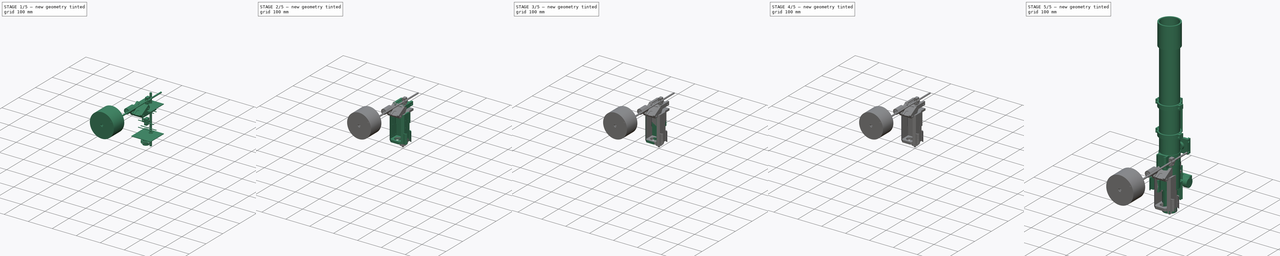
[diagram: build sequence overview — one tinted view per stage of 5, left to right]
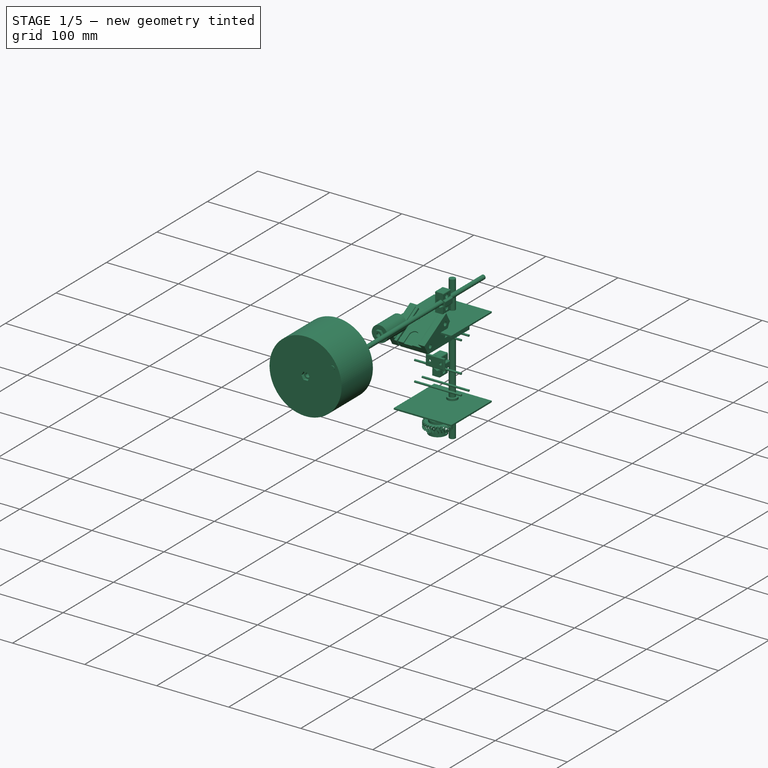
[diagram: stage 1 of 5 — iso view after this stage's code; geometry added in this stage tinted green]
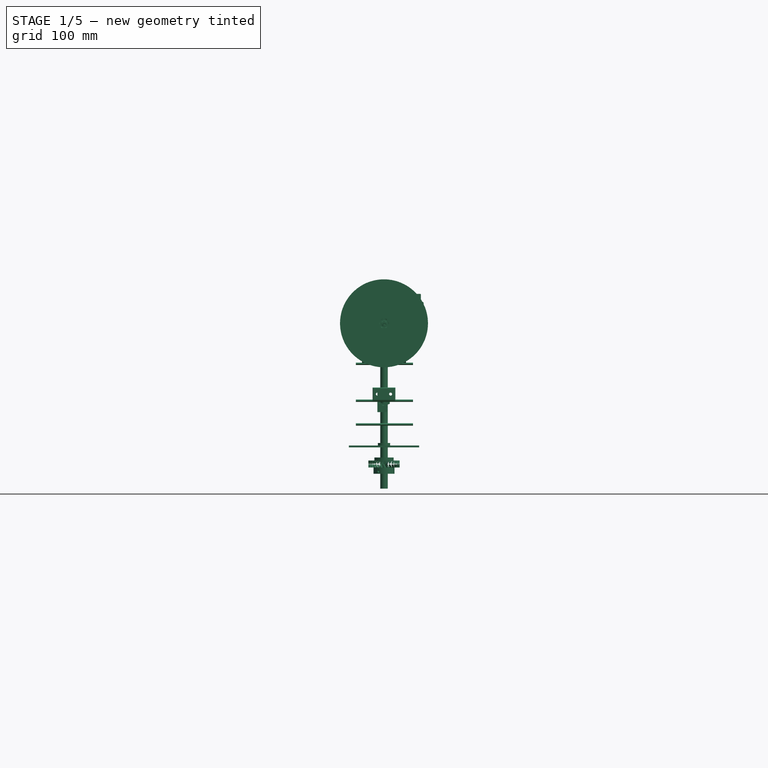
[diagram: stage 1 of 5 — front view after this stage's code; geometry added in this stage tinted green]
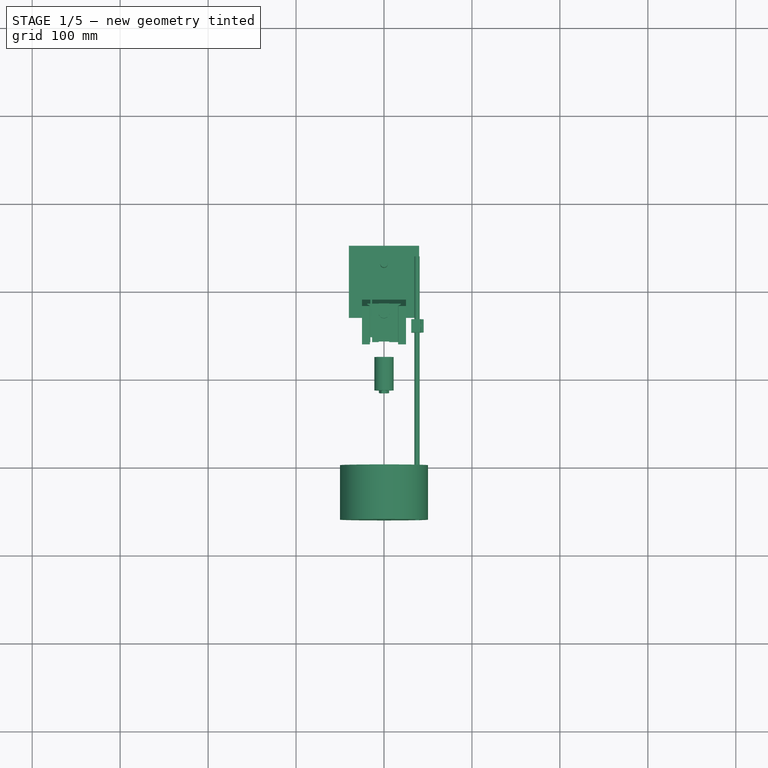
[diagram: stage 1 of 5 — top view after this stage's code; geometry added in this stage tinted green]
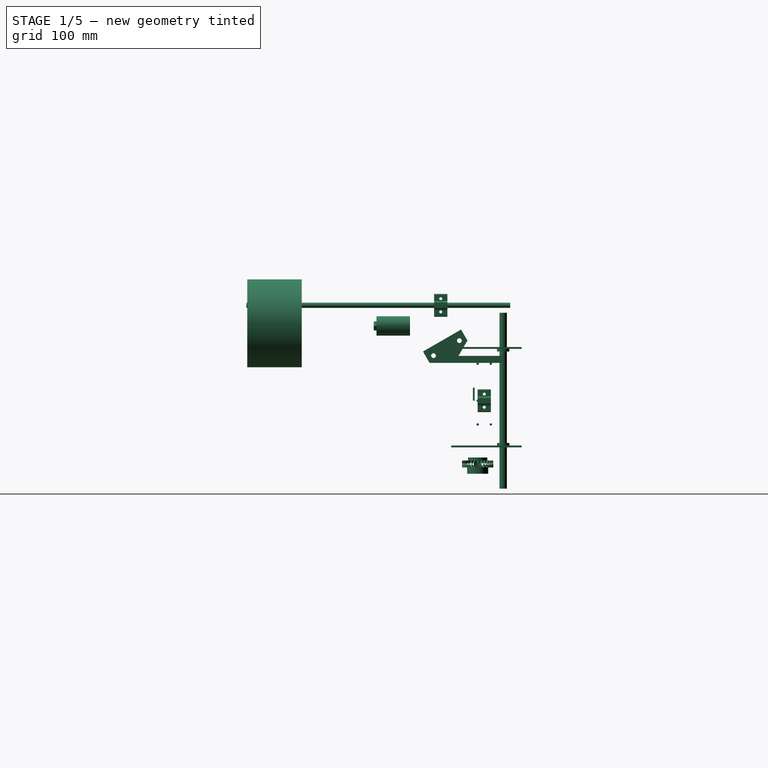
[diagram: stage 1 of 5 — right view after this stage's code; geometry added in this stage tinted green]
FCSTD DOCUMENT  (FreeCAD 0.17R12284 (Git))
Label: eq-mount
License: All rights reserved
LicenseURL: http://en.wikipedia.org/wiki/All_rights_reserved
objects: Part::Cylinder×345, Part::MultiFuse×270, Part::Feature×259, Part::Cut×203, Part::Box×94, Part::FeaturePython×51, Part::Extrusion×51, App::Part×41, Sketcher::SketchObject×33, Part::Chamfer×9, Part::RegularPolygon×8, Part::Fillet×7
note: 1330 computed .brp shape members not serialized (recipe doc carries the construction recipe); baked Part::Feature solids carry a one-line shape summary decoded from their .brp

FEATURE [Part::Cylinder] Cylinder014005345  label="tyč závaží"
  Angle = 360
  AttacherType = Attacher::AttachEngine3D
  Height = 300
  Placement = pos=(37.5,37,108.5) rot=(1,0,0;1.5708rad)
  Radius = 3
FEATURE [Part::Cylinder] Cylinder014005346  label="Válec317"
  Angle = 360
  AttacherType = Attacher::AttachEngine3D
  Height = 60
  Placement = pos=(0,-200,88) rot=(1,0,0;1.5708rad)
  Radius = 50
FEATURE [Part::Cylinder] Cylinder014005347  label="Válec318"
  Angle = 360
  AttacherType = Attacher::AttachEngine3D
  Height = 58
  Placement = pos=(0,-200,88) rot=(1,0,0;1.5708rad)
  Radius = 44
FEATURE [Part::Cut] Cut061093
  Base = -> Cylinder014005346
  Tool = -> Cylinder014005347
FEATURE [Part::Cylinder] Cylinder014005348  label="Válec319"
  Angle = 360
  AttacherType = Attacher::AttachEngine3D
  Height = 56
  Placement = pos=(0,-203.5,88) rot=(1,0,0;1.5708rad)
  Radius = 10
FEATURE [Part::MultiFuse] Fusion217  label="Zavazí dno"
  Placement = pos=(0,-2,0) rot=(0,0,1;0rad)
  Shapes = -> [Cut061093,Cylinder014005348]
FEATURE [Part::Cylinder] Cylinder014005349  label="Válec320"
  Angle = 360
  AttacherType = Attacher::AttachEngine3D
  Height = 2
  Placement = pos=(0,-200,88) rot=(1,0,0;1.5708rad)
  Radius = 50
FEATURE [Part::Cylinder] Cylinder014005350  label="Válec321"
  Angle = 360
  AttacherType = Attacher::AttachEngine3D
  Height = 3.5
  Placement = pos=(0,-200,88) rot=(1,0,0;1.5708rad)
  Radius = 44
FEATURE [Part::MultiFuse] Fusion218  label="zaazi vyko"
  Shapes = -> [Cylinder014005350,Cylinder014005349]
FEATURE [Part::Cylinder] Cylinder014005351  label="tyč závaží001"
  Angle = 360
  AttacherType = Attacher::AttachEngine3D
  Height = 350
  Placement = pos=(0,85,88) rot=(1,0,0;1.5708rad)
  Radius = 3
FEATURE [Part::FeaturePython] Nut013  label="M6-Nut006"  # Fasteners workbench fastener (typed FeaturePython)
  Placement = pos=(0,-258,88) rot=(1,0,0;1.5708rad)
  diameter = 8
  invert = false
  matchOuter = false
  offset = 0
  thread = false
  type = 1
FEATURE [Part::Feature] Screw006_solid  label="vyko M2.5x8"
  Placement = pos=(0,0,10) rot=(0,0,1;0rad)
  shape: bbox 4.5 x 8.524 x 4.5 mm, 11 faces (baked)
FEATURE [Part::Feature] Screw006_solid001  label="vyko M2.5x009"
  Placement = pos=(0,0,104) rot=(0,0,1;0rad)
  shape: bbox 4.5 x 8.524 x 4.5 mm, 11 faces (baked)
FEATURE [Part::Feature] Screw006_solid002  label="vyko M2.5x010"
  Placement = pos=(47,0,57) rot=(0,0,1;0rad)
  shape: bbox 4.5 x 8.524 x 4.5 mm, 11 faces (baked)
FEATURE [Part::Feature] Screw006_solid003  label="vyko M2.5x011"
  Placement = pos=(-47,0,57) rot=(0,0,1;0rad)
  shape: bbox 4.5 x 8.524 x 4.5 mm, 11 faces (baked)
FEATURE [Part::MultiFuse] Fusion219  label="srouby diry zavazi"
  Shapes = -> [Cylinder014005351,Screw006_solid,Screw006_solid001,Screw006_solid002,Screw006_solid003,Nut013]
FEATURE [Part::Cut] Cut061094  label="Weight  bottom"
  Base = -> Fusion217
  Tool = -> Fusion219
FEATURE [Part::FeaturePython] Nut014  label="M6-Nut005"  # Fasteners workbench fastener (typed FeaturePython)
  Placement = pos=(0,-238,88) rot=(1,0,0;1.5708rad)
  diameter = 8
  invert = false
  matchOuter = false
  offset = 0
  thread = false
  type = 1
FEATURE [Part::Cylinder] Cylinder014005352  label="tyč závaží002"
  Angle = 360
  AttacherType = Attacher::AttachEngine3D
  Height = 300
  Placement = pos=(0,55,88) rot=(1,0,0;1.5708rad)
  Radius = 3
FEATURE [Part::Feature] Screw006_solid004  label="vyko M2.5x012"
  Placement = pos=(0,0,104) rot=(0,0,1;0rad)
  shape: bbox 4.5 x 8.524 x 4.5 mm, 11 faces (baked)
FEATURE [Part::Feature] Screw006_solid005  label="vyko M2.5x013"
  Placement = pos=(47,0,57) rot=(0,0,1;0rad)
  shape: bbox 4.5 x 8.524 x 4.5 mm, 11 faces (baked)
FEATURE [Part::Feature] Screw006_solid006  label="vyko M2.5x014"
  Placement = pos=(-47,0,57) rot=(0,0,1;0rad)
  shape: bbox 4.5 x 8.524 x 4.5 mm, 11 faces (baked)
FEATURE [Part::Feature] Screw006_solid007  label="vyko M2.5x015"
  Placement = pos=(0,0,10) rot=(0,0,1;0rad)
  shape: bbox 4.5 x 8.524 x 4.5 mm, 11 faces (baked)
FEATURE [Part::MultiFuse] Fusion220  label="srouby diry zavazi001"
  Shapes = -> [Cylinder014005352,Screw006_solid007,Screw006_solid004,Screw006_solid005,Screw006_solid006,Nut014]
FEATURE [Part::Cut] Cut061095  label="Weight top"
  Base = -> Fusion218
  Tool = -> Fusion220
FEATURE [Part::FeaturePython] Nut015  label="M8-Nut007"  # Fasteners workbench fastener (typed FeaturePython)
  Placement = pos=(0,-88,85) rot=(1,0,0;1.5708rad)
  diameter = 9
  invert = false
  matchOuter = false
  offset = 0
  thread = false
  type = 3
FEATURE [Part::Cylinder] Cylinder014005385  label="DIRA8,003"
  Angle = 360
  AttacherType = Attacher::AttachEngine3D
  Height = 200
  Placement = pos=(0,29,-100) rot=(0,0,1;0rad)
  Radius = 4.2
FEATURE [Part::Cylinder] Cylinder014005387  label="Válec344"
  Angle = 360
  AttacherType = Attacher::AttachEngine3D
  Height = 65
  Placement = pos=(-32,0,0) rot=(0,1,0;1.5708rad)
  Radius = 1.35
FEATURE [Part::Cylinder] Cylinder014005388  label="Válec345"
  Angle = 360
  AttacherType = Attacher::AttachEngine3D
  Height = 65
  Placement = pos=(-32,0,42) rot=(0,1,0;1.5708rad)
  Radius = 1.35
FEATURE [Part::Cylinder] Cylinder014005389  label="Válec346"
  Angle = 360
  AttacherType = Attacher::AttachEngine3D
  Height = 65
  Placement = pos=(-32,0,-27) rot=(0,1,0;1.5708rad)
  Radius = 1.35
FEATURE [Part::Box] Box058  label="Krychle046"
  AttacherType = Attacher::AttachEngine3D
  Height = 2
  Length = 80
  Placement = pos=(-40,-30,-53) rot=(0,0,1;0rad)
  Width = 80
FEATURE [Part::Box] Box059  label="Krychle047"
  AttacherType = Attacher::AttachEngine3D
  Height = 2
  Length = 80
  Placement = pos=(-40,-30,59) rot=(0,0,1;0rad)
  Width = 80
FEATURE [Part::MultiFuse] Fusion238  label="Orez001"
  Shapes = -> [Box059,Box058]
FEATURE [Part::Cylinder] Cylinder014005390  label="Lozisko005"
  Angle = 360
  AttacherType = Attacher::AttachEngine3D
  Height = 4
  Placement = pos=(0,29,-52.1) rot=(0,0,1;0rad)
  Radius = 7
FEATURE [Part::Cylinder] Cylinder014005391  label="Válec347"
  Angle = 360
  AttacherType = Attacher::AttachEngine3D
  Height = 65
  Placement = pos=(-32,15,42) rot=(0,1,0;1.5708rad)
  Radius = 1.35
FEATURE [Part::Cylinder] Cylinder014005392  label="Lozisko006"
  Angle = 360
  AttacherType = Attacher::AttachEngine3D
  Height = 4
  Placement = pos=(0,29,56) rot=(0,0,1;0rad)
  Radius = 7
FEATURE [Part::Cylinder] Cylinder014005393  label="Válec348"
  Angle = 360
  AttacherType = Attacher::AttachEngine3D
  Height = 65
  Placement = pos=(-32,15,-27) rot=(0,1,0;1.5708rad)
  Radius = 1.35
FEATURE [Part::MultiFuse] Fusion243  label="diry 2,007"
  Shapes = -> [Cylinder014005391,Cylinder014005387,Cylinder014005388,Cylinder014005389,Cylinder014005393]
FEATURE [Part::MultiFuse] Fusion244  label="DIRA OSA001"
  Shapes = -> [Cylinder014005385,Cylinder014005390,Cylinder014005392]
FEATURE [Part::MultiFuse] Fusion245  label="Diry orez001"
  Shapes = -> [Fusion243,Fusion244,Fusion238]
FEATURE [App::Part] Part040  label="DIY telescope"
  Group = -> [Cut061176,Cylinder014005551,Cylinder014005552,Box076,Box075,Fusion121,Cut061173,Cylinder014005556,Cylinder014005561,Cylinder014005564,Cylinder014005563,Cylinder014005559,Cylinder014005555,Cylinder014005560,Box079,Cut061023,Cut061177,Box078,Fusion122,Fusion123,Cylinder014005558,Cylinder014005562,Cylinder014005565,Cylinder014005557,Cut061024,Cut061025,Cylinder014005566,Fusion124,Fusion097,Fusion099,+48 more]
  License = CC BY 3.0
  LicenseURL = http://creativecommons.org/licenses/by/3.0/
  Origin = -> Origin040
  Placement = pos=(0,115,-142) rot=(0,0,1;3.14159rad)
FEATURE [Part::FeaturePython] Nut024  label="M6-Nut"  # Fasteners workbench fastener (typed FeaturePython)
  Placement = pos=(0,-97,85) rot=(1,0,0;1.5708rad)
  diameter = 8
  invert = false
  matchOuter = false
  offset = 0
  thread = false
  type = 3
FEATURE [Part::FeaturePython] Nut025  label="M6-Nut007"  # Fasteners workbench fastener (typed FeaturePython)
  Placement = pos=(0,-115,85) rot=(1,0,0;1.5708rad)
  diameter = 8
  invert = false
  matchOuter = false
  offset = 0
  thread = false
  type = 3
FEATURE [Part::Cylinder] Cylinder014005567  label="Válec491"
  Angle = 360
  AttacherType = Attacher::AttachEngine3D
  Height = 38
  Placement = pos=(0,-77,85) rot=(1,0,0;1.5708rad)
  Radius = 11
FEATURE [Sketcher::SketchObject] Sketch023
  MapMode = 5
  Placement = pos=(0,-92,85) rot=(1,0,0;1.5708rad)
  Support = -> [Nut015]
  sketch-geometry (7):
    g0: LineSegment StartX=-4 StartY=6.58103 StartZ=0 EndX=-7.69934 EndY=-0.173586 EndZ=0
    g1: LineSegment StartX=-7.69934 StartY=-0.173586 StartZ=0 EndX=-3.69934 EndY=-6.75462 EndZ=0
    g2: LineSegment StartX=-3.69934 StartY=-6.75462 StartZ=0 EndX=4 EndY=-6.58103 EndZ=0
    g3: LineSegment StartX=4 StartY=-6.58103 StartZ=0 EndX=7.69934 EndY=0.173586 EndZ=0
    g4: LineSegment StartX=7.69934 StartY=0.173586 StartZ=0 EndX=3.69934 EndY=6.75462 EndZ=0
    g5: LineSegment StartX=3.69934 StartY=6.75462 StartZ=0 EndX=-4 EndY=6.58103 EndZ=0
    g6: Circle [constr] CenterX=0 CenterY=0 CenterZ=0 NormalX=0 NormalY=0 NormalZ=1 AngleXU=0 Radius=7.7013
  constraints (14):
    c: Coincident(g0,g1)
    c: Coincident(g1,g2)
    c: Coincident(g2,g3)
    c: Coincident(g3,g4)
    c: Coincident(g4,g5)
    c: Coincident(g5,g0)
    c: Equal(g0, g1-g5) x5
    c: PointOnObject(g0,g6)
    c: PointOnObject(g1,g6)
    c: PointOnObject(g2,g6)
    c: PointOnObject(g3,g6)
    c: PointOnObject(g4,g6)
    c: PointOnObject(g5,g6)
    c: Coincident(g6,g-1)
FEATURE [Part::Extrusion] Extrude048
  Base = -> Sketch023
  Dir = (0,-1,0)
  DirMode = 2
  FaceMakerClass = Part::FaceMakerBullseye
  LengthFwd = 18
  LengthRev = 0
  Placement = pos=(0,15,0) rot=(0,0,1;0rad)
  Solid = true
  Symmetric = false
FEATURE [Sketcher::SketchObject] Sketch024
  MapMode = 2
  Placement = pos=(0,-76,85) rot=(1,0,0;1.5708rad)
  sketch-geometry (7):
    g0: LineSegment StartX=-3.75 StartY=6.42629 StartZ=0 EndX=-7.50855 EndY=-0.0738358 EndZ=0
    g1: LineSegment StartX=-7.50855 StartY=-0.0738358 StartZ=0 EndX=-3.75855 EndY=-6.5789 EndZ=0
    g2: LineSegment StartX=-3.75855 StartY=-6.5789 StartZ=0 EndX=3.75 EndY=-6.58384 EndZ=0
    g3: LineSegment StartX=3.75 StartY=-6.58384 StartZ=0 EndX=7.50855 EndY=-0.0837102 EndZ=0
    g4: LineSegment StartX=7.50855 StartY=-0.0837102 StartZ=0 EndX=3.75855 EndY=6.42135 EndZ=0
    g5: LineSegment StartX=3.75855 StartY=6.42135 StartZ=0 EndX=-3.75 EndY=6.42629 EndZ=0
    g6: Circle [constr] CenterX=0 CenterY=-0.078773 CenterZ=0 NormalX=0 NormalY=0 NormalZ=1 AngleXU=0 Radius=7.50855
  constraints (13):
    c: Coincident(g0,g1)
    c: Coincident(g1,g2)
    c: Coincident(g2,g3)
    c: Coincident(g3,g4)
    c: Coincident(g4,g5)
    c: Coincident(g5,g0)
    c: Equal(g0, g1-g5) x5
    c: PointOnObject(g0,g6)
    c: PointOnObject(g1,g6)
    c: PointOnObject(g2,g6)
    c: PointOnObject(g3,g6)
    c: PointOnObject(g4,g6)
    c: PointOnObject(g5,g6)
FEATURE [Part::Extrusion] Extrude049  label="vnitrek"
  Base = -> Sketch024
  Dir = (0,-1,0)
  DirMode = 2
  FaceMakerClass = Part::FaceMakerBullseye
  LengthFwd = 8
  LengthRev = 0
  Placement = pos=(0,-4,0) rot=(0,0,1;0rad)
  Solid = true
  Symmetric = false
FEATURE [Part::Cylinder] Cylinder014005568  label="Válec492"
  Angle = 360
  AttacherType = Attacher::AttachEngine3D
  Height = 35
  Placement = pos=(0,-77,85) rot=(1,0,0;1.5708rad)
  Radius = 4.2
FEATURE [Part::Cut] Cut061180  label="Nut M8-Fix"
  Base = -> Extrude049
  Tool = -> Cylinder014005568
FEATURE [Sketcher::SketchObject] Sketch025
  MapMode = 5
  Placement = pos=(0,-97,85) rot=(-1,0,0;1.5708rad)
  Support = -> [Nut024]
  sketch-geometry (7):
    g0: LineSegment StartX=-2.87741 StartY=5.0504 StartZ=0 EndX=-5.81248 EndY=0.0332934 EndZ=0
    g1: LineSegment StartX=-5.81248 StartY=0.0332934 StartZ=0 EndX=-2.93507 EndY=-5.01711 EndZ=0
    g2: LineSegment StartX=-2.93507 StartY=-5.01711 StartZ=0 EndX=2.87741 EndY=-5.0504 EndZ=0
    g3: LineSegment StartX=2.87741 StartY=-5.0504 StartZ=0 EndX=5.81248 EndY=-0.0332934 EndZ=0
    g4: LineSegment StartX=5.81248 StartY=-0.0332934 StartZ=0 EndX=2.93507 EndY=5.01711 EndZ=0
    g5: LineSegment StartX=2.93507 StartY=5.01711 StartZ=0 EndX=-2.87741 EndY=5.0504 EndZ=0
    g6: Circle [constr] CenterX=0 CenterY=0 CenterZ=0 NormalX=0 NormalY=0 NormalZ=1 AngleXU=0 Radius=5.81257
  constraints (14):
    c: Coincident(g0,g1)
    c: Coincident(g1,g2)
    c: Coincident(g2,g3)
    c: Coincident(g3,g4)
    c: Coincident(g4,g5)
    c: Coincident(g5,g0)
    c: Equal(g0, g1-g5) x5
    c: PointOnObject(g0,g6)
    c: PointOnObject(g1,g6)
    c: PointOnObject(g2,g6)
    c: PointOnObject(g3,g6)
    c: PointOnObject(g4,g6)
    c: PointOnObject(g5,g6)
    c: Coincident(g6,g-1)
FEATURE [Part::Extrusion] Extrude050
  Base = -> Sketch025
  Dir = (0,1,0)
  DirMode = 2
  FaceMakerClass = Part::FaceMakerBullseye
  LengthFwd = 10
  LengthRev = 0
  Placement = pos=(0,-4,0) rot=(0,0,1;0rad)
  Solid = true
  Symmetric = false
FEATURE [Part::Cylinder] Cylinder014005569  label="tyč závaží003"
  Angle = 360
  AttacherType = Attacher::AttachEngine3D
  Height = 200
  Placement = pos=(0,-91,85) rot=(1,0,0;1.5708rad)
  Radius = 3
FEATURE [Part::MultiFuse] Fusion338
  Shapes = -> [Cylinder014005569,Extrude050,Extrude048]
FEATURE [Part::Cut] Cut061181  label="Clutch"
  Base = -> Cylinder014005567
  Tool = -> Fusion338
FEATURE [App::Part] Part043  label="for wood tripod"
  Group = -> [Box080,Cylinder014005343,Box081,Cylinder014005570,Box082,Cylinder014005571,Cylinder014005572,Box083,Cylinder014005573,Box084,Cylinder014005574,Cylinder014005341,Cylinder014005575,Cylinder014005342,Sketch026,Screw_solid132,Cylinder014005576,Screw_solid133,Cylinder014005577,Cylinder014005578,Screw_solid134,Box085,Cylinder014005579,Cylinder014005580,Box086,Cylinder014005581,Cylinder014005582,Box087,+39 more]
  License = CC BY 3.0
  LicenseURL = http://creativecommons.org/licenses/by/3.0/
  Origin = -> Origin043
  Placement = pos=(0,0,0) rot=(0,0,1;3.14159rad)
FEATURE [App::Part] Part010  label="Distance001"
  Group = -> [Chamfer002,Fusion093,Box011,Cylinder014005161,Cylinder014005163,Cylinder014005162,Cylinder014005160,Cylinder014005159,Cut061008,Part043]
  License = CC BY 3.0
  LicenseURL = http://creativecommons.org/licenses/by/3.0/
  Origin = -> Origin010
  Placement = pos=(0,0,49.5) rot=(0,0,1;0rad)
FEATURE [Part::FeaturePython] Nut028  label="M6-Nut010"  # Fasteners workbench fastener (typed FeaturePython)
  Placement = pos=(0,-1,-0.5) rot=(0,0,1;0rad)
  diameter = 2
  invert = false
  matchOuter = false
  offset = 0
  thread = false
  type = 2
FEATURE [Part::Cylinder] Cylinder014005586  label="Válec510"
  Angle = 360
  AttacherType = Attacher::AttachEngine3D
  Height = 20
  Placement = pos=(0,-1,0) rot=(0,0,1;0rad)
  Radius = 3.2
FEATURE [Part::Cylinder] Cylinder014005587  label="Válec511"
  Angle = 360
  AttacherType = Attacher::AttachEngine3D
  Height = 7
  Placement = pos=(7.5,7.5,7.5) rot=(1,0,0;1.5708rad)
  Radius = 2.9
FEATURE [Part::Box] Box043  label="Krychle075"
  AttacherType = Attacher::AttachEngine3D
  Height = 15
  Length = 26
  Placement = pos=(-13,-7.5,0) rot=(0,0,1;0rad)
  Width = 14
FEATURE [Part::Cylinder] Cylinder014005588  label="Válec512"
  Angle = 360
  AttacherType = Attacher::AttachEngine3D
  Height = 15
  Placement = pos=(7.5,7.5,7.5) rot=(1,0,0;1.5708rad)
  Radius = 1.7
FEATURE [Part::Cylinder] Cylinder014005589  label="Válec513"
  Angle = 360
  AttacherType = Attacher::AttachEngine3D
  Height = 6
  Placement = pos=(-7.5,7.5,7.5) rot=(1,0,0;1.5708rad)
  Radius = 2.9
FEATURE [Part::Cylinder] Cylinder014005590  label="Válec514"
  Angle = 360
  AttacherType = Attacher::AttachEngine3D
  Height = 15
  Placement = pos=(-7.5,7.5,7.5) rot=(1,0,0;1.5708rad)
  Radius = 1.7
FEATURE [Part::Box] Box088  label="Krychle076"
  AttacherType = Attacher::AttachEngine3D
  Height = 15
  Length = 9
  Placement = pos=(4,3.5,0) rot=(0,0,1;0rad)
  Width = 4
FEATURE [Part::Fillet] Fillet
  Base = -> Box088
  Edges = 1 edges r=1.5: [Edge1]
FEATURE [Part::Box] Box044  label="Krychle077"
  AttacherType = Attacher::AttachEngine3D
  Height = 15
  Length = 9
  Placement = pos=(4,3.5,0) rot=(0,0,1;0rad)
  Width = 4
FEATURE [Part::Fillet] Fillet001
  Base = -> Box044
  Edges = 1 edges r=1.5: [Edge1]
  Placement = pos=(0,0,15) rot=(0,1,0;3.14159rad)
FEATURE [Part::MultiFuse] Fusion353
  Shapes = -> [Fillet,Fillet001,Cylinder014005590,Cylinder014005588,Cylinder014005587,Cylinder014005589,Nut028,Cylinder014005586]
FEATURE [Part::Cut] Cut061192
  Base = -> Box043
  Tool = -> Fusion353
FEATURE [Part::Fillet] Fillet002  label="wieghts holder"
  Base = -> Cut061192
  Edges = 4 edges r=1.25: [Edge2,Edge39,Edge40,Edge45]
  Placement = pos=(0,0,0) rot=(-0.579113,-0.576467,-0.576467;2.0944rad)
FEATURE [Part::Cylinder] Cylinder014005602  label="Válec522"
  Angle = 360
  AttacherType = Attacher::AttachEngine3D
  Height = 15
  Placement = pos=(-7.5,7.5,7.5) rot=(1,0,0;1.5708rad)
  Radius = 1.7
FEATURE [Part::Cylinder] Cylinder014005603  label="Válec523"
  Angle = 360
  AttacherType = Attacher::AttachEngine3D
  Height = 20
  Placement = pos=(0,-1,0) rot=(0,0,1;0rad)
  Radius = 3.2
FEATURE [Part::Cylinder] Cylinder014005604  label="Válec524"
  Angle = 360
  AttacherType = Attacher::AttachEngine3D
  Height = 15
  Placement = pos=(7.5,7.5,7.5) rot=(1,0,0;1.5708rad)
  Radius = 1.7
FEATURE [Part::Cylinder] Cylinder014005605  label="Válec525"
  Angle = 360
  AttacherType = Attacher::AttachEngine3D
  Height = 7
  Placement = pos=(7.5,7.5,7.5) rot=(1,0,0;1.5708rad)
  Radius = 2.9
FEATURE [Part::Box] Box089  label="Krychle078"
  AttacherType = Attacher::AttachEngine3D
  Height = 15
  Length = 26
  Placement = pos=(-13,-7.5,0) rot=(0,0,1;0rad)
  Width = 14
FEATURE [Part::Cylinder] Cylinder014005606  label="Válec526"
  Angle = 360
  AttacherType = Attacher::AttachEngine3D
  Height = 6
  Placement = pos=(-7.5,7.5,7.5) rot=(1,0,0;1.5708rad)
  Radius = 2.9
FEATURE [Part::Box] Box090  label="Krychle079"
  AttacherType = Attacher::AttachEngine3D
  Height = 15
  Length = 9
  Placement = pos=(4,3.5,0) rot=(0,0,1;0rad)
  Width = 4
FEATURE [Part::Fillet] Fillet004
  Base = -> Box090
  Edges = 1 edges r=1.5: [Edge1]
FEATURE [Part::Box] Box091  label="Krychle080"
  AttacherType = Attacher::AttachEngine3D
  Height = 15
  Length = 9
  Placement = pos=(4,3.5,0) rot=(0,0,1;0rad)
  Width = 4
FEATURE [Part::Fillet] Fillet003
  Base = -> Box091
  Edges = 1 edges r=1.5: [Edge1]
  Placement = pos=(0,0,15) rot=(0,1,0;3.14159rad)
FEATURE [Part::FeaturePython] Nut034  label="M6-Nut009"  # Fasteners workbench fastener (typed FeaturePython)
  Placement = pos=(0,-1,-0.5) rot=(0,0,1;0rad)
  diameter = 2
  invert = false
  matchOuter = false
  offset = 0
  thread = false
  type = 2
FEATURE [Part::MultiFuse] Fusion359
  Shapes = -> [Fillet004,Fillet003,Cylinder014005602,Cylinder014005604,Cylinder014005605,Cylinder014005606,Nut034,Cylinder014005603]
FEATURE [Part::Cut] Cut061198
  Base = -> Box089
  Tool = -> Fusion359
FEATURE [Part::Fillet] Fillet005  label="wieghts holder001"
  Base = -> Cut061198
  Edges = 4 edges r=1.25: [Edge2,Edge39,Edge40,Edge45]
  Placement = pos=(38.5,-49.5,108.5) rot=(0.57735,0.57735,0.57735;4.18879rad)
FEATURE [App::Part] Part045  label="Part059"
  Group = -> [Fillet001,Fillet,Fusion353,Cylinder014005590,Cylinder014005586,Cylinder014005588,Cylinder014005587,Box043,Cylinder014005589,Box088,Box044,Cut061192,Nut028,Fillet002]
  License = CC BY 3.0
  LicenseURL = http://creativecommons.org/licenses/by/3.0/
  Origin = -> Origin045
  Placement = pos=(38.5,35,108.2) rot=(1,0,0;3.14159rad)
FEATURE [App::Part] Part046  label="Part060"
  Group = -> [Fusion359,Fillet003,Fillet004,Cylinder014005603,Cylinder014005605,Box089,Cylinder014005606,Box090,Cylinder014005602,Cylinder014005604,Box091,Cut061198,Nut034,Fillet005]
  License = CC BY 3.0
  LicenseURL = http://creativecommons.org/licenses/by/3.0/
  Origin = -> Origin046
FEATURE [App::Part] Part047  label="Holder"
  Group = -> [Part045,Part046]
  License = CC BY 3.0
  LicenseURL = http://creativecommons.org/licenses/by/3.0/
  Origin = -> Origin047
FEATURE [App::Part] Part041  label="Weights complet"
  Group = -> [Nut025,Cylinder014005568,Extrude049,Sketch024,Cut061180,Nut015,Nut024,Cylinder014005567,Cylinder014005569,Extrude048,Extrude050,Sketch023,Sketch025,Fusion338,Cut061181,Cylinder014005345,Part021,Part047]
  License = CC BY 3.0
  LicenseURL = http://creativecommons.org/licenses/by/3.0/
  Origin = -> Origin041
FEATURE [Part::FeaturePython] InvoluteGear029  # WARN: FeaturePython — macro-defined, semantics opaque (R4)
  Placement = pos=(0,0,-72) rot=(0,0,1;0rad)
  backlash = 0
  beta = 20
  clearance = 0.25
  double_helix = true
  head = 0
  height = 8
  module = 1.16
  numpoints = 6
  pressure_angle = 20
  reversed_backlash = false
  shift = 0
  simple = false
  teeth = 27
  undercut = false
FEATURE [Part::Cylinder] Cylinder014005626  label="Válec545"
  Angle = 360
  AttacherType = Attacher::AttachEngine3D
  Height = 25
  Placement = pos=(0,0,-85) rot=(0,0,1;0rad)
  Radius = 4.2
FEATURE [Part::Cylinder] Cylinder014005627  label="Válec546"
  Angle = 360
  AttacherType = Attacher::AttachEngine3D
  Height = 200
  Placement = pos=(0,0,-100) rot=(0,0,1;0rad)
  Radius = 3.9
FEATURE [Part::Cylinder] Cylinder014005628  label="Válec547"
  Angle = 360
  AttacherType = Attacher::AttachEngine3D
  Height = 11.5
  Placement = pos=(0,0,-76.1) rot=(0,0,1;0rad)
  Radius = 11
FEATURE [Part::MultiFuse] Fusion376
  Shapes = -> [Cylinder014005628,InvoluteGear029]
FEATURE [Sketcher::SketchObject] Sketch034
  MapMode = 5
  Placement = pos=(0,0,-64.6) rot=(0,0,1;0rad)
  Support = -> [Fusion376]
  sketch-geometry (7):
    g0: LineSegment StartX=-3.8831 StartY=6.55674 StartZ=0 EndX=-7.61986 EndY=-0.0844932 EndZ=0
    g1: LineSegment StartX=-7.61986 StartY=-0.0844932 StartZ=0 EndX=-3.73676 EndY=-6.64124 EndZ=0
    g2: LineSegment StartX=-3.73676 StartY=-6.64124 StartZ=0 EndX=3.8831 EndY=-6.55674 EndZ=0
    g3: LineSegment StartX=3.8831 StartY=-6.55674 StartZ=0 EndX=7.61986 EndY=0.0844932 EndZ=0
    g4: LineSegment StartX=7.61986 StartY=0.0844932 StartZ=0 EndX=3.73676 EndY=6.64124 EndZ=0
    g5: LineSegment StartX=3.73676 StartY=6.64124 StartZ=0 EndX=-3.8831 EndY=6.55674 EndZ=0
    g6: Circle [constr] CenterX=0 CenterY=0 CenterZ=0 NormalX=0 NormalY=0 NormalZ=1 AngleXU=0 Radius=7.62033
  constraints (14):
    c: Coincident(g0,g1)
    c: Coincident(g1,g2)
    c: Coincident(g2,g3)
    c: Coincident(g3,g4)
    c: Coincident(g4,g5)
    c: Coincident(g5,g0)
    c: Equal(g0, g1-g5) x5
    c: PointOnObject(g0,g6)
    c: PointOnObject(g1,g6)
    c: PointOnObject(g2,g6)
    c: PointOnObject(g3,g6)
    c: PointOnObject(g4,g6)
    c: PointOnObject(g5,g6)
    c: Coincident(g6,g-1)
FEATURE [Part::Extrusion] Extrude061
  Base = -> Sketch034
  Dir = (0,0,1)
  DirMode = 2
  FaceMakerClass = Part::FaceMakerBullseye
  LengthFwd = 5
  LengthRev = 0
  Placement = pos=(0,0,-5) rot=(0,0,1;0rad)
  Solid = true
  Symmetric = false
FEATURE [Part::MultiFuse] Fusion375
  Shapes = -> [Extrude061,Cylinder014005627]
FEATURE [Part::Cut] Cut061209  label="Gear A002"
  Base = -> Fusion376
  Tool = -> Fusion375
FEATURE [Part::Feature] Cut007_solid019  label="Sun020"
  shape: bbox 12.9 x 13.1 x 5 mm, 57 faces (baked)
FEATURE [Part::Feature] Cut061210  label="SUN I Final003"
  shape: bbox 24 x 24 x 12.25 mm, 99 faces (baked)
FEATURE [Part::Cut] Cut061211
  Base = -> Cut061210
  Placement = pos=(0,0,-76) rot=(0,0,1;0rad)
  Tool = -> Cut007_solid019
FEATURE [Part::MultiFuse] Fusion377
  Shapes = -> [Cut061209,Cut061211]
FEATURE [Part::Cut] Cut061212  label="Gear27b"
  Base = -> Fusion377
  Tool = -> Cylinder014005626
FEATURE [App::Part] Part049  label="Gear27 A002"
  Group = -> [InvoluteGear029,Cylinder014005626,Sketch034,Fusion375,Fusion376,Fusion377,Cut061209,Extrude061,Cylinder014005627,Cylinder014005628,Cut007_solid019,Cut061210,Cut061211,Cut061212]
  License = CC BY 3.0
  LicenseURL = http://creativecommons.org/licenses/by/3.0/
  Origin = -> Origin049
FEATURE [Part::FeaturePython] InvoluteGear030  # WARN: FeaturePython — macro-defined, semantics opaque (R4)
  Placement = pos=(0,0,-72) rot=(0,0,1;0rad)
  backlash = 0
  beta = 20
  clearance = 0.25
  double_helix = true
  head = 0
  height = 8
  module = 1.16
  numpoints = 6
  pressure_angle = 20
  reversed_backlash = false
  shift = 0
  simple = false
  teeth = 27
  undercut = false
FEATURE [Part::Cylinder] Cylinder014005629  label="Válec548"
  Angle = 360
  AttacherType = Attacher::AttachEngine3D
  Height = 25
  Placement = pos=(0,0,-85) rot=(0,0,1;0rad)
  Radius = 4.2
FEATURE [Part::Cylinder] Cylinder014005630  label="Válec549"
  Angle = 360
  AttacherType = Attacher::AttachEngine3D
  Height = 200
  Placement = pos=(0,0,-100) rot=(0,0,1;0rad)
  Radius = 3.9
FEATURE [Part::Cylinder] Cylinder014005631  label="Válec550"
  Angle = 360
  AttacherType = Attacher::AttachEngine3D
  Height = 11.5
  Placement = pos=(0,0,-76.1) rot=(0,0,1;0rad)
  Radius = 11
FEATURE [Part::MultiFuse] Fusion379
  Shapes = -> [Cylinder014005631,InvoluteGear030]
FEATURE [Sketcher::SketchObject] Sketch035
  MapMode = 5
  Placement = pos=(0,0,-64.6) rot=(0,0,1;0rad)
  Support = -> [Fusion379]
  sketch-geometry (7):
    g0: LineSegment StartX=-3.8831 StartY=6.55674 StartZ=0 EndX=-7.61986 EndY=-0.0844932 EndZ=0
    g1: LineSegment StartX=-7.61986 StartY=-0.0844932 StartZ=0 EndX=-3.73676 EndY=-6.64124 EndZ=0
    g2: LineSegment StartX=-3.73676 StartY=-6.64124 StartZ=0 EndX=3.8831 EndY=-6.55674 EndZ=0
    g3: LineSegment StartX=3.8831 StartY=-6.55674 StartZ=0 EndX=7.61986 EndY=0.0844932 EndZ=0
    g4: LineSegment StartX=7.61986 StartY=0.0844932 StartZ=0 EndX=3.73676 EndY=6.64124 EndZ=0
    g5: LineSegment StartX=3.73676 StartY=6.64124 StartZ=0 EndX=-3.8831 EndY=6.55674 EndZ=0
    g6: Circle [constr] CenterX=0 CenterY=0 CenterZ=0 NormalX=0 NormalY=0 NormalZ=1 AngleXU=0 Radius=7.62033
  constraints (14):
    c: Coincident(g0,g1)
    c: Coincident(g1,g2)
    c: Coincident(g2,g3)
    c: Coincident(g3,g4)
    c: Coincident(g4,g5)
    c: Coincident(g5,g0)
    c: Equal(g0, g1-g5) x5
    c: PointOnObject(g0,g6)
    c: PointOnObject(g1,g6)
    c: PointOnObject(g2,g6)
    c: PointOnObject(g3,g6)
    c: PointOnObject(g4,g6)
    c: PointOnObject(g5,g6)
    c: Coincident(g6,g-1)
FEATURE [Part::Extrusion] Extrude062
  Base = -> Sketch035
  Dir = (0,0,1)
  DirMode = 2
  FaceMakerClass = Part::FaceMakerBullseye
  LengthFwd = 5
  LengthRev = 0
  Placement = pos=(0,0,-5) rot=(0,0,1;0rad)
  Solid = true
  Symmetric = false
FEATURE [Part::MultiFuse] Fusion378
  Shapes = -> [Extrude062,Cylinder014005630]
FEATURE [Part::Cut] Cut061213  label="Gear A003"
  Base = -> Fusion379
  Tool = -> Fusion378
FEATURE [Part::Feature] Cut007_solid020  label="Sun021"
  shape: bbox 12.9 x 13.1 x 5 mm, 57 faces (baked)
FEATURE [Part::Feature] Cut061214  label="SUN I Final004"
  shape: bbox 24 x 24 x 12.25 mm, 99 faces (baked)
FEATURE [Part::Cut] Cut061215
  Base = -> Cut061214
  Placement = pos=(0,0,-76) rot=(0,0,1;0rad)
  Tool = -> Cut007_solid020
FEATURE [Part::MultiFuse] Fusion380
  Shapes = -> [Cut061213,Cut061215]
FEATURE [Part::Cut] Cut061216  label="Gear27b001"
  Base = -> Fusion380
  Tool = -> Cylinder014005629
FEATURE [App::Part] Part050  label="Gear27 A003"
  Group = -> [InvoluteGear030,Cylinder014005629,Sketch035,Fusion378,Fusion379,Fusion380,Cut061213,Extrude062,Cylinder014005630,Cylinder014005631,Cut007_solid020,Cut061214,Cut061215,Cut061216]
  License = CC BY 3.0
  LicenseURL = http://creativecommons.org/licenses/by/3.0/
  Origin = -> Origin050
FEATURE [Part::FeaturePython] InvoluteGear031  # WARN: FeaturePython — macro-defined, semantics opaque (R4)
  Placement = pos=(0,0,-72) rot=(0,0,1;0rad)
  backlash = 0
  beta = 20
  clearance = 0.25
  double_helix = true
  head = 0
  height = 8
  module = 1.16
  numpoints = 6
  pressure_angle = 20
  reversed_backlash = false
  shift = 0
  simple = false
  teeth = 27
  undercut = false
FEATURE [Part::Cylinder] Cylinder014005632  label="Válec551"
  Angle = 360
  AttacherType = Attacher::AttachEngine3D
  Height = 25
  Placement = pos=(0,0,-85) rot=(0,0,1;0rad)
  Radius = 4.2
FEATURE [Part::Cylinder] Cylinder014005633  label="Válec552"
  Angle = 360
  AttacherType = Attacher::AttachEngine3D
  Height = 200
  Placement = pos=(0,0,-100) rot=(0,0,1;0rad)
  Radius = 3.9
FEATURE [Part::Cylinder] Cylinder014005634  label="Válec553"
  Angle = 360
  AttacherType = Attacher::AttachEngine3D
  Height = 11.5
  Placement = pos=(0,0,-76.1) rot=(0,0,1;0rad)
  Radius = 11
FEATURE [Part::MultiFuse] Fusion382
  Shapes = -> [Cylinder014005634,InvoluteGear031]
FEATURE [Sketcher::SketchObject] Sketch036
  MapMode = 5
  Placement = pos=(0,0,-64.6) rot=(0,0,1;0rad)
  Support = -> [Fusion382]
  sketch-geometry (7):
    g0: LineSegment StartX=-3.8831 StartY=6.55674 StartZ=0 EndX=-7.61986 EndY=-0.0844932 EndZ=0
    g1: LineSegment StartX=-7.61986 StartY=-0.0844932 StartZ=0 EndX=-3.73676 EndY=-6.64124 EndZ=0
    g2: LineSegment StartX=-3.73676 StartY=-6.64124 StartZ=0 EndX=3.8831 EndY=-6.55674 EndZ=0
    g3: LineSegment StartX=3.8831 StartY=-6.55674 StartZ=0 EndX=7.61986 EndY=0.0844932 EndZ=0
    g4: LineSegment StartX=7.61986 StartY=0.0844932 StartZ=0 EndX=3.73676 EndY=6.64124 EndZ=0
    g5: LineSegment StartX=3.73676 StartY=6.64124 StartZ=0 EndX=-3.8831 EndY=6.55674 EndZ=0
    g6: Circle [constr] CenterX=0 CenterY=0 CenterZ=0 NormalX=0 NormalY=0 NormalZ=1 AngleXU=0 Radius=7.62033
  constraints (14):
    c: Coincident(g0,g1)
    c: Coincident(g1,g2)
    c: Coincident(g2,g3)
    c: Coincident(g3,g4)
    c: Coincident(g4,g5)
    c: Coincident(g5,g0)
    c: Equal(g0, g1-g5) x5
    c: PointOnObject(g0,g6)
    c: PointOnObject(g1,g6)
    c: PointOnObject(g2,g6)
    c: PointOnObject(g3,g6)
    c: PointOnObject(g4,g6)
    c: PointOnObject(g5,g6)
    c: Coincident(g6,g-1)
FEATURE [Part::Extrusion] Extrude063
  Base = -> Sketch036
  Dir = (0,0,1)
  DirMode = 2
  FaceMakerClass = Part::FaceMakerBullseye
  LengthFwd = 5
  LengthRev = 0
  Placement = pos=(0,0,-5) rot=(0,0,1;0rad)
  Solid = true
  Symmetric = false
FEATURE [Part::MultiFuse] Fusion381
  Shapes = -> [Extrude063,Cylinder014005633]
FEATURE [Part::Cut] Cut061217  label="Gear A004"
  Base = -> Fusion382
  Tool = -> Fusion381
FEATURE [Part::Feature] Cut007_solid021  label="Sun022"
  shape: bbox 12.9 x 13.1 x 5 mm, 57 faces (baked)
FEATURE [Part::Feature] Cut061218  label="SUN I Final005"
  shape: bbox 24 x 24 x 12.25 mm, 99 faces (baked)
FEATURE [Part::Cut] Cut061219
  Base = -> Cut061218
  Placement = pos=(0,0,-76) rot=(0,0,1;0rad)
  Tool = -> Cut007_solid021
FEATURE [Part::MultiFuse] Fusion383
  Shapes = -> [Cut061217,Cut061219]
FEATURE [Part::Cut] Cut061221  label="Gear27b002"
  Base = -> Fusion383
  Tool = -> Cylinder014005632
FEATURE [Part::Cylinder] Cylinder014005635  label="Válec554"
  Angle = 360
  AttacherType = Attacher::AttachEngine3D
  Height = 6
  Placement = pos=(0,0,-68.1) rot=(0,0,1;0rad)
  Radius = 19
FEATURE [Part::Cut] Cut061220  label="Gear27"
  Base = -> Cut061221
  Tool = -> Cylinder014005635
FEATURE [App::Part] Part051  label="Gear27 A004"
  Group = -> [InvoluteGear031,Cylinder014005632,Sketch036,Fusion381,Fusion382,Fusion383,Cut061217,Extrude063,Cylinder014005633,Cylinder014005634,Cut007_solid021,Cut061218,Cut061219,Cut061221,Cylinder014005635,Cut061220]
  License = CC BY 3.0
  LicenseURL = http://creativecommons.org/licenses/by/3.0/
  Origin = -> Origin051
FEATURE [App::Part] Part037  label="RA"
  Group = -> [Part035,Part036,Part038,Screw011,Part032,Part039,Part050,Part051]
  License = CC BY 3.0
  LicenseURL = http://creativecommons.org/licenses/by/3.0/
  Origin = -> Origin038
  Placement = pos=(0,-20,0) rot=(0,0,1;3.14159rad)
FEATURE [Part::FeaturePython] InvoluteGear032  # WARN: FeaturePython — macro-defined, semantics opaque (R4)
  Placement = pos=(0,0,-72) rot=(0,0,1;0rad)
  backlash = 0
  beta = 20
  clearance = 0.25
  double_helix = true
  head = 0
  height = 8
  module = 1.16
  numpoints = 6
  pressure_angle = 20
  reversed_backlash = false
  shift = 0
  simple = false
  teeth = 27
  undercut = false
FEATURE [Part::Cylinder] Cylinder014005636  label="Válec555"
  Angle = 360
  AttacherType = Attacher::AttachEngine3D
  Height = 25
  Placement = pos=(0,0,-85) rot=(0,0,1;0rad)
  Radius = 4.2
FEATURE [Part::Cylinder] Cylinder014005637  label="Válec556"
  Angle = 360
  AttacherType = Attacher::AttachEngine3D
  Height = 200
  Placement = pos=(0,0,-100) rot=(0,0,1;0rad)
  Radius = 3.9
FEATURE [Part::Cylinder] Cylinder014005638  label="Válec557"
  Angle = 360
  AttacherType = Attacher::AttachEngine3D
  Height = 11.5
  Placement = pos=(0,0,-76.1) rot=(0,0,1;0rad)
  Radius = 11
FEATURE [Part::MultiFuse] Fusion385
  Shapes = -> [Cylinder014005638,InvoluteGear032]
FEATURE [Sketcher::SketchObject] Sketch037
  MapMode = 5
  Placement = pos=(0,0,-64.6) rot=(0,0,1;0rad)
  Support = -> [Fusion385]
  sketch-geometry (7):
    g0: LineSegment StartX=-3.8831 StartY=6.55674 StartZ=0 EndX=-7.61986 EndY=-0.0844932 EndZ=0
    g1: LineSegment StartX=-7.61986 StartY=-0.0844932 StartZ=0 EndX=-3.73676 EndY=-6.64124 EndZ=0
    g2: LineSegment StartX=-3.73676 StartY=-6.64124 StartZ=0 EndX=3.8831 EndY=-6.55674 EndZ=0
    g3: LineSegment StartX=3.8831 StartY=-6.55674 StartZ=0 EndX=7.61986 EndY=0.0844932 EndZ=0
    g4: LineSegment StartX=7.61986 StartY=0.0844932 StartZ=0 EndX=3.73676 EndY=6.64124 EndZ=0
    g5: LineSegment StartX=3.73676 StartY=6.64124 StartZ=0 EndX=-3.8831 EndY=6.55674 EndZ=0
    g6: Circle [constr] CenterX=0 CenterY=0 CenterZ=0 NormalX=0 NormalY=0 NormalZ=1 AngleXU=0 Radius=7.62033
  constraints (14):
    c: Coincident(g0,g1)
    c: Coincident(g1,g2)
    c: Coincident(g2,g3)
    c: Coincident(g3,g4)
    c: Coincident(g4,g5)
    c: Coincident(g5,g0)
    c: Equal(g0, g1-g5) x5
    c: PointOnObject(g0,g6)
    c: PointOnObject(g1,g6)
    c: PointOnObject(g2,g6)
    c: PointOnObject(g3,g6)
    c: PointOnObject(g4,g6)
    c: PointOnObject(g5,g6)
    c: Coincident(g6,g-1)
FEATURE [Part::Extrusion] Extrude064
  Base = -> Sketch037
  Dir = (0,0,1)
  DirMode = 2
  FaceMakerClass = Part::FaceMakerBullseye
  LengthFwd = 5
  LengthRev = 0
  Placement = pos=(0,0,-5) rot=(0,0,1;0rad)
  Solid = true
  Symmetric = false
FEATURE [Part::MultiFuse] Fusion384
  Shapes = -> [Extrude064,Cylinder014005637]
FEATURE [Part::Cut] Cut061222  label="Gear A005"
  Base = -> Fusion385
  Tool = -> Fusion384
FEATURE [Part::Feature] Cut007_solid022  label="Sun023"
  shape: bbox 12.9 x 13.1 x 5 mm, 57 faces (baked)
FEATURE [Part::Feature] Cut061223  label="SUN I Final006"
  shape: bbox 24 x 24 x 12.25 mm, 99 faces (baked)
FEATURE [Part::Cut] Cut061224
  Base = -> Cut061223
  Placement = pos=(0,0,-76) rot=(0,0,1;0rad)
  Tool = -> Cut007_solid022
FEATURE [Part::MultiFuse] Fusion386
  Shapes = -> [Cut061222,Cut061224]
FEATURE [Part::Cut] Cut061226  label="Gear27b003"
  Base = -> Fusion386
  Tool = -> Cylinder014005636
FEATURE [Part::Cylinder] Cylinder014005639  label="Válec558"
  Angle = 360
  AttacherType = Attacher::AttachEngine3D
  Height = 6
  Placement = pos=(0,0,-68.1) rot=(0,0,1;0rad)
  Radius = 19
FEATURE [Part::Cut] Cut061225  label="Gear028"
  Base = -> Cut061226
  Tool = -> Cylinder014005639
FEATURE [App::Part] Part052  label="Gear27 A005"
  Group = -> [InvoluteGear032,Cylinder014005636,Sketch037,Fusion384,Fusion385,Fusion386,Cut061222,Extrude064,Cylinder014005637,Cylinder014005638,Cut007_solid022,Cut061223,Cut061224,Cut061226,Cylinder014005639,Cut061225]
  License = CC BY 3.0
  LicenseURL = http://creativecommons.org/licenses/by/3.0/
  Origin = -> Origin052
FEATURE [App::Part] Part026  label="DEC"
  Group = -> [Part022,Part025,Screw009,Part019,Part023,Part024,Part049,Part052]
  License = CC BY 3.0
  LicenseURL = http://creativecommons.org/licenses/by/3.0/
  Origin = -> Origin026
  Placement = pos=(0,0,85) rot=(-1,0,0;1.5708rad)
FEATURE [App::Part] Part042  label="EQ-Mout"
  Group = -> [Part026,Part037,Part041]
  License = CC BY 3.0
  LicenseURL = http://creativecommons.org/licenses/by/3.0/
  Origin = -> Origin042
FEATURE [App::Part] Part044  label="Sestava"
  Group = -> [Part040,Part042]
  License = CC BY 3.0
  LicenseURL = http://creativecommons.org/licenses/by/3.0/
  Origin = -> Origin044
  Placement = pos=(0,0,71) rot=(1,0,0;1.0472rad)
FEATURE [Part::Cylinder] Cylinder014005353  label="Válec559"
  Angle = 360
  AttacherType = Attacher::AttachEngine3D
  Height = 60
  Placement = pos=(-30,17,69) rot=(0,1,0;1.5708rad)
  Radius = 2.7
FEATURE [Part::Box] Box100  label="Krychle089"
  AttacherType = Attacher::AttachEngine3D
  Height = 112
  Length = 38
  Placement = pos=(-19,32,-52) rot=(0,0,1;0rad)
  Width = 10
FEATURE [Part::Box] Box101  label="Krychle090"
  AttacherType = Attacher::AttachEngine3D
  Height = 112
  Length = 38
  Placement = pos=(-19,34,-52) rot=(0,0,1;0rad)
  Width = 6
FEATURE [Part::Box] Box102  label="Krychle091"
  AttacherType = Attacher::AttachEngine3D
  Height = 15
  Length = 50
  Placement = pos=(-25,-25,64) rot=(0,0,1;0rad)
  Width = 50
FEATURE [Part::Cylinder] Cylinder014005640  label="Válec560"
  Angle = 360
  AttacherType = Attacher::AttachEngine3D
  Height = 2.5
  Placement = pos=(0,-12,71) rot=(0,0,1;0rad)
  Radius = 6
FEATURE [Part::Box] Box103  label="Krychle092"
  AttacherType = Attacher::AttachEngine3D
  Height = 20
  Length = 60
  Placement = pos=(-14,-30,62) rot=(0,0,1;0rad)
  Width = 60
FEATURE [Part::Cylinder] Cylinder014005641  label="Válec561"
  Angle = 360
  AttacherType = Attacher::AttachEngine3D
  Height = 2.5
  Placement = pos=(0,-12,71) rot=(0,0,1;0rad)
  Radius = 6
FEATURE [Part::Box] Box051  label="Krychle093"
  AttacherType = Attacher::AttachEngine3D
  Height = 15
  Length = 50
  Placement = pos=(-25,-25,64) rot=(0,0,1;0rad)
  Width = 50
FEATURE [Part::Cylinder] Cylinder014005642  label="Válec562"
  Angle = 360
  AttacherType = Attacher::AttachEngine3D
  Height = 2.5
  Placement = pos=(0,-12,71) rot=(0,0,1;0rad)
  Radius = 6
FEATURE [Part::Cut] Cut061230
  Base = -> Box100
  Tool = -> Box101
FEATURE [Part::Box] Box104  label="Krychle094"
  AttacherType = Attacher::AttachEngine3D
  Height = 112
  Length = 38
  Placement = pos=(-19,34,-52) rot=(0,0,1;0rad)
  Width = 6
FEATURE [Part::Box] Box105  label="Krychle095"
  AttacherType = Attacher::AttachEngine3D
  Height = 15
  Length = 2
  Placement = pos=(-15.5,-26,61) rot=(0,0,1;0rad)
  Width = 52
FEATURE [Part::Box] Box106  label="Krychle096"
  AttacherType = Attacher::AttachEngine3D
  Height = 2.5
  Length = 12
  Placement = pos=(-6,-25,71) rot=(0,0,1;0rad)
  Width = 13
FEATURE [Part::Box] Box107  label="Krychle097"
  AttacherType = Attacher::AttachEngine3D
  Height = 2.5
  Length = 12
  Placement = pos=(-6,-25,71) rot=(0,0,1;0rad)
  Width = 13
FEATURE [Sketcher::SketchObject] Sketch039
  MapMode = 5
  Placement = pos=(0,0,60) rot=(0,0,1;0rad)
  sketch-geometry (6):
    g0: LineSegment StartX=-18.9734 StartY=34.0308 StartZ=0 EndX=-16.0253 EndY=36.9748 EndZ=0
    g1: LineSegment StartX=18.996 StartY=34.0308 StartZ=0 EndX=16.044 EndY=36.9748 EndZ=0
    g2: LineSegment StartX=18.996 StartY=34.0308 StartZ=0 EndX=-18.9734 EndY=34.0308 EndZ=0
    g3: LineSegment StartX=-18.9734 StartY=40.0311 StartZ=0 EndX=-16.0253 EndY=36.9748 EndZ=0
    g4: LineSegment StartX=16.044 StartY=36.9748 StartZ=0 EndX=18.9109 EndY=40.0311 EndZ=0
    g5: LineSegment StartX=-18.9734 StartY=40.0311 StartZ=0 EndX=18.9109 EndY=40.0311 EndZ=0
  constraints (7):
    c: Coincident(g2,g1)
    c: Coincident(g2,g0)
    c: Horizontal(g2)
    c: Coincident(g3,g0)
    c: Coincident(g5,g3)
    c: Coincident(g5,g4)
    c: Horizontal(g5)
FEATURE [Part::Extrusion] Extrude065
  Base = -> Sketch039
  Dir = (0,0,1)
  DirMode = 2
  FaceMakerClass = Part::FaceMakerBullseye
  LengthFwd = -112
  LengthRev = 0
  Solid = true
  Symmetric = false
FEATURE [Part::Cylinder] Cylinder014005643  label="Válec563"
  Angle = 360
  AttacherType = Attacher::AttachEngine3D
  Height = 18
  Placement = pos=(0,70,0) rot=(0,0,1;0rad)
  Radius = 3
FEATURE [Part::Cylinder] Cylinder014005644  label="Válec564"
  Angle = 360
  AttacherType = Attacher::AttachEngine3D
  Height = 60
  Placement = pos=(-30,17,69) rot=(0,1,0;1.5708rad)
  Radius = 2.7
FEATURE [Part::Box] Box108  label="Krychle098"
  AttacherType = Attacher::AttachEngine3D
  Height = 0.6
  Length = 15
  Placement = pos=(-28.5,-30,63.6) rot=(0,0,1;0rad)
  Width = 60
FEATURE [Part::Box] Box109  label="Krychle099"
  AttacherType = Attacher::AttachEngine3D
  Height = 8
  Length = 50
  Placement = pos=(-25,0,3) rot=(0,0,1;0rad)
  Width = 82
FEATURE [Part::Cylinder] Cylinder014005645  label="Válec565"
  Angle = 360
  AttacherType = Attacher::AttachEngine3D
  Height = 18
  Placement = pos=(0,45,6) rot=(0,0,1;0rad)
  Radius = 4.9
FEATURE [Part::Box] Box110  label="Krychle100"
  AttacherType = Attacher::AttachEngine3D
  Height = 15
  Length = 2
  Placement = pos=(-15.5,-26,64) rot=(0,0,1;0rad)
  Width = 52
FEATURE [Part::Cylinder] Cylinder014005646  label="Válec566"
  Angle = 360
  AttacherType = Attacher::AttachEngine3D
  Height = 18
  Placement = pos=(0,45,3) rot=(0,0,1;0rad)
  Radius = 4.35
FEATURE [Part::Cylinder] Cylinder014005647  label="Válec567"
  Angle = 360
  AttacherType = Attacher::AttachEngine3D
  Height = 2.5
  Placement = pos=(0,-12,71) rot=(0,0,1;0rad)
  Radius = 6
FEATURE [Part::Cylinder] Cylinder014005648  label="Válec568"
  Angle = 360
  AttacherType = Attacher::AttachEngine3D
  Height = 60
  Placement = pos=(-30,-17,69) rot=(0,1,0;1.5708rad)
  Radius = 2.7
FEATURE [Part::Cylinder] Cylinder014005649  label="Válec569"
  Angle = 360
  AttacherType = Attacher::AttachEngine3D
  Height = 10
  Placement = pos=(0,15,48) rot=(0,0,1;0rad)
  Radius = 5.2
FEATURE [Sketcher::SketchObject] Sketch040
  MapMode = 5
  Placement = pos=(0,0,60) rot=(0,0,1;0rad)
  sketch-geometry (6):
    g0: LineSegment StartX=-18.9734 StartY=34.0308 StartZ=0 EndX=-16.0253 EndY=36.9748 EndZ=0
    g1: LineSegment StartX=18.996 StartY=34.0308 StartZ=0 EndX=16.044 EndY=36.9748 EndZ=0
    g2: LineSegment StartX=18.996 StartY=34.0308 StartZ=0 EndX=-18.9734 EndY=34.0308 EndZ=0
    g3: LineSegment StartX=-18.9734 StartY=40.0311 StartZ=0 EndX=-16.0253 EndY=36.9748 EndZ=0
    g4: LineSegment StartX=16.044 StartY=36.9748 StartZ=0 EndX=18.9109 EndY=40.0311 EndZ=0
    g5: LineSegment StartX=-18.9734 StartY=40.0311 StartZ=0 EndX=18.9109 EndY=40.0311 EndZ=0
  constraints (7):
    c: Coincident(g2,g1)
    c: Coincident(g2,g0)
    c: Horizontal(g2)
    c: Coincident(g3,g0)
    c: Coincident(g5,g3)
    c: Coincident(g5,g4)
    c: Horizontal(g5)
FEATURE [Part::Box] Box048  label="Krychle041"
  AttacherType = Attacher::AttachEngine3D
  Height = 15
  Length = 50
  Placement = pos=(-25,-25,64) rot=(0,0,1;0rad)
  Width = 50
FEATURE [Part::Box] Box050  label="Krychle101"
  AttacherType = Attacher::AttachEngine3D
  Height = 20
  Length = 60
  Placement = pos=(-14,-30,62) rot=(0,0,1;0rad)
  Width = 60
FEATURE [Part::Cylinder] Cylinder014005650  label="Válec570"
  Angle = 360
  AttacherType = Attacher::AttachEngine3D
  Height = 2.5
  Placement = pos=(0,-12,71) rot=(0,0,1;0rad)
  Radius = 6
FEATURE [Part::Box] Box111  label="Krychle102"
  AttacherType = Attacher::AttachEngine3D
  Height = 112
  Length = 38
  Placement = pos=(-19,32,-52) rot=(0,0,1;0rad)
  Width = 10
FEATURE [Part::Cylinder] Cylinder014005651  label="Válec571"
  Angle = 360
  AttacherType = Attacher::AttachEngine3D
  Height = 2.5
  Placement = pos=(0,-12,71) rot=(0,0,1;0rad)
  Radius = 6
FEATURE [Part::Box] Box049  label="Krychle042"
  AttacherType = Attacher::AttachEngine3D
  Height = 112
  Length = 38
  Placement = pos=(-19,34,-52) rot=(0,0,1;0rad)
  Width = 6
FEATURE [Part::Box] Box046  label="Krychle039"
  AttacherType = Attacher::AttachEngine3D
  Height = 15
  Length = 2
  Placement = pos=(-15.5,-26,61) rot=(0,0,1;0rad)
  Width = 52
FEATURE [Part::Box] Box112  label="Krychle037"
  AttacherType = Attacher::AttachEngine3D
  Height = 2.5
  Length = 12
  Placement = pos=(-6,-25,71) rot=(0,0,1;0rad)
  Width = 13
FEATURE [Part::MultiFuse] Fusion209
  Placement = pos=(0,0,1) rot=(0,0,1;3.14159rad)
  Shapes = -> [Box112,Cylinder014005651]
FEATURE [Part::Box] Box045  label="Krychle038"
  AttacherType = Attacher::AttachEngine3D
  Height = 2.5
  Length = 12
  Placement = pos=(-6,-25,71) rot=(0,0,1;0rad)
  Width = 13
FEATURE [Part::MultiFuse] Fusion207
  Placement = pos=(0,0,1) rot=(0,0,1;0rad)
  Shapes = -> [Box045,Cylinder014005650,Fusion209]
FEATURE [Part::Cylinder] Cylinder014005652  label="Válec572"
  Angle = 360
  AttacherType = Attacher::AttachEngine3D
  Height = 60
  Placement = pos=(-30,-17,69) rot=(0,1,0;1.5708rad)
  Radius = 2.7
FEATURE [Part::Cylinder] Cylinder014005653  label="Válec573"
  Angle = 360
  AttacherType = Attacher::AttachEngine3D
  Height = 60
  Placement = pos=(-30,17,69) rot=(0,1,0;1.5708rad)
  Radius = 2.7
FEATURE [Part::MultiFuse] Fusion210
  Shapes = -> [Cylinder014005653,Cylinder014005652]
FEATURE [Part::MultiFuse] Fusion211  label="diry009"
  Shapes = -> [Fusion210,Fusion207]
FEATURE [Part::Box] Box047  label="Krychle040"
  AttacherType = Attacher::AttachEngine3D
  Height = 112
  Length = 38
  Placement = pos=(-19,32,-52) rot=(0,0,1;0rad)
  Width = 10
FEATURE [Part::Cut] Cut061091
  Base = -> Box047
  Tool = -> Box049
FEATURE [Part::Cut] Cut061237
  Base = -> Box111
  Tool = -> Box104
FEATURE [Part::MultiFuse] Fusion215
  Placement = pos=(0,0,1) rot=(0,0,1;3.14159rad)
  Shapes = -> [Box107,Cylinder014005641]
FEATURE [Part::MultiFuse] Fusion214
  Placement = pos=(0,0,1) rot=(0,0,1;0rad)
  Shapes = -> [Box106,Cylinder014005642,Fusion215]
FEATURE [Part::Extrusion] Extrude066
  Base = -> Sketch040
  Dir = (0,0,1)
  DirMode = 2
  FaceMakerClass = Part::FaceMakerBullseye
  LengthFwd = -112
  LengthRev = 0
  Solid = true
  Symmetric = false
FEATURE [Part::MultiFuse] Fusion208  label="Arca plate base005"
  Placement = pos=(0,-6.5,115.5) rot=(-1,0,0;1.5708rad)
  Shapes = -> [Extrude066,Cut061091]
FEATURE [Part::Cut] Cut061234  label="Arca sw 007"
  Base = -> Box048
  Tool = -> Fusion208
FEATURE [Part::Cut] Cut061087
  Base = -> Cut061234
  Tool = -> Box046
FEATURE [Part::Cut] Cut061092
  Base = -> Cut061087
  Tool = -> Fusion211
FEATURE [Part::Cut] Cut061233  label="SwissAcaB"
  Base = -> Cut061092
  Placement = pos=(0,-1,0) rot=(1,0,0;0.523599rad)
  Tool = -> Box050
FEATURE [Part::Cylinder] Cylinder014005654  label="Válec574"
  Angle = 360
  AttacherType = Attacher::AttachEngine3D
  Height = 60
  Placement = pos=(-30,-17,69) rot=(0,1,0;1.5708rad)
  Radius = 2.7
FEATURE [Part::MultiFuse] Fusion212
  Shapes = -> [Cylinder014005353,Cylinder014005654]
FEATURE [Part::MultiFuse] Fusion213  label="diry010"
  Shapes = -> [Fusion212,Fusion214]
FEATURE [Sketcher::SketchObject] Sketch012
  MapMode = 5
  Placement = pos=(0,0,60) rot=(0,0,1;0rad)
  sketch-geometry (6):
    g0: LineSegment StartX=-18.9734 StartY=34.0308 StartZ=0 EndX=-16.0253 EndY=36.9748 EndZ=0
    g1: LineSegment StartX=18.996 StartY=34.0308 StartZ=0 EndX=16.044 EndY=36.9748 EndZ=0
    g2: LineSegment StartX=18.996 StartY=34.0308 StartZ=0 EndX=-18.9734 EndY=34.0308 EndZ=0
    g3: LineSegment StartX=-18.9734 StartY=40.0311 StartZ=0 EndX=-16.0253 EndY=36.9748 EndZ=0
    g4: LineSegment StartX=16.044 StartY=36.9748 StartZ=0 EndX=18.9109 EndY=40.0311 EndZ=0
    g5: LineSegment StartX=-18.9734 StartY=40.0311 StartZ=0 EndX=18.9109 EndY=40.0311 EndZ=0
  constraints (7):
    c: Coincident(g2,g1)
    c: Coincident(g2,g0)
    c: Horizontal(g2)
    c: Coincident(g3,g0)
    c: Coincident(g5,g3)
    c: Coincident(g5,g4)
    c: Horizontal(g5)
FEATURE [Part::Extrusion] Extrude067
  Base = -> Sketch012
  Dir = (0,0,1)
  DirMode = 2
  FaceMakerClass = Part::FaceMakerBullseye
  LengthFwd = -112
  LengthRev = 0
  Solid = true
  Symmetric = false
FEATURE [Part::MultiFuse] Fusion216  label="Arca plate base011"
  Placement = pos=(0,-6.5,115.5) rot=(-1,0,0;1.5708rad)
  Shapes = -> [Extrude067,Cut061237]
FEATURE [Part::Cut] Cut061236  label="Arca sw 008"
  Base = -> Box051
  Tool = -> Fusion216
FEATURE [Part::Cut] Cut061097
  Base = -> Cut061236
  Tool = -> Box105
FEATURE [Part::Cut] Cut061235
  Base = -> Cut061097
  Tool = -> Fusion213
FEATURE [Part::Cut] Cut061096  label="SwissAcaB001"
  Base = -> Cut061235
  Placement = pos=(0,-1,0) rot=(1,0,0;0.523599rad)
  Tool = -> Box103
FEATURE [Part::MultiFuse] Fusion387
  Shapes = -> [Cylinder014005644,Cylinder014005648]
FEATURE [Part::MultiFuse] Fusion389
  Shapes = -> [Cylinder014005643,Cylinder014005645,Cylinder014005646]
FEATURE [Part::Cut] Cut061232  label="deska009"
  Base = -> Box109
  Placement = pos=(0,-26.5,61.5) rot=(-1,0,0;0.523599rad)
  Tool = -> Fusion389
FEATURE [Part::MultiFuse] Fusion391
  Shapes = -> [Box108,Box110]
FEATURE [Part::MultiFuse] Fusion393  label="Arca plate base012"
  Placement = pos=(0,-6.5,115.5) rot=(-1,0,0;1.5708rad)
  Shapes = -> [Extrude065,Cut061230]
FEATURE [Part::Cut] Cut061231  label="Arca sw 006"
  Base = -> Box102
  Tool = -> Fusion393
FEATURE [Part::Box] Box113  label="Krychle103"
  AttacherType = Attacher::AttachEngine3D
  Height = 2.5
  Length = 12
  Placement = pos=(-6,-25,71) rot=(0,0,1;0rad)
  Width = 13
FEATURE [Part::Box] Box114  label="Krychle104"
  AttacherType = Attacher::AttachEngine3D
  Height = 15
  Length = 2
  Placement = pos=(-15.5,-26,61) rot=(0,0,1;0rad)
  Width = 52
FEATURE [Part::Cut] Cut061227
  Base = -> Cut061231
  Tool = -> Box114
FEATURE [Sketcher::SketchObject] Sketch038
  MapMode = 5
  Placement = pos=(25,0,0) rot=(0.57735,0.57735,0.57735;2.0944rad)
  Support = -> [Cut061227]
  sketch-geometry (3):
    g0: LineSegment StartX=-8.69466 StartY=63.7145 StartZ=0 EndX=24.7095 EndY=63.7145 EndZ=0
    g1: LineSegment StartX=24.7095 StartY=63.7145 StartZ=0 EndX=8 EndY=54 EndZ=0
    g2: LineSegment StartX=8 StartY=54 StartZ=0 EndX=-8.69466 EndY=63.7145 EndZ=0
  constraints (4):
    c: Horizontal(g0)
    c: Coincident(g0,g1)
    c: Coincident(g1,g2)
    c: Coincident(g2,g0)
FEATURE [Part::Box] Box115  label="Krychle105"
  AttacherType = Attacher::AttachEngine3D
  Height = 2.5
  Length = 12
  Placement = pos=(-6,-25,71) rot=(0,0,1;0rad)
  Width = 13
FEATURE [Part::MultiFuse] Fusion394
  Placement = pos=(0,0,1) rot=(0,0,1;3.14159rad)
  Shapes = -> [Box115,Cylinder014005640]
FEATURE [Part::MultiFuse] Fusion392
  Placement = pos=(0,0,1) rot=(0,0,1;0rad)
  Shapes = -> [Box113,Cylinder014005647,Fusion394]
FEATURE [Part::MultiFuse] Fusion390  label="diry011"
  Shapes = -> [Fusion387,Fusion392]
FEATURE [Part::Extrusion] Extrude068
  Base = -> Sketch038
  Dir = (1,0,0)
  DirMode = 2
  FaceMakerClass = Part::FaceMakerBullseye
  LengthFwd = -50
  LengthRev = 0
  Placement = pos=(0,-0.5,0.5) rot=(0,0,1;0rad)
  Solid = true
  Symmetric = false
FEATURE [Part::MultiFuse] Fusion388
  Shapes = -> [Cut061227,Extrude068,Cut061232]
FEATURE [Part::Cut] Cut061228
  Base = -> Fusion388
  Tool = -> Fusion390
FEATURE [Part::Cut] Cut061229  label="wood-tripod-plate"
  Base = -> Cut061228
  Placement = pos=(0,-1,0) rot=(1,0,0;0.523599rad)
  Tool = -> Fusion391
FEATURE [Part::Cut] Cut061086  label="wod-tripod-plate"
  Base = -> Cut061229
  Tool = -> Cylinder014005649
FEATURE [Part::Cut] Cut061238  label="wood-tripod-arca"
  Base = -> Cut061086
  Tool = -> Cut061233
FEATURE [App::Part] Part053  label="wood-tripod-plate001"
  Group = -> [Box100,Box101,Box102,Cylinder014005640,Fusion210,Fusion211,Fusion207,Fusion209,Extrude065,Cut061227,Cut061228,Cut061229,Cut061230,Cut061231,Cut061232,Sketch038,Sketch039,Cylinder014005643,Cylinder014005644,Box108,Box109,Cylinder014005645,Box110,Cylinder014005646,Cylinder014005647,Cylinder014005648,Cylinder014005649,Cut061092,Cut061233,Cut061086,Cut061087,Cut061234,Cut061091,Fusion208,Sketch040,+48 more]
  License = CC BY 3.0
  LicenseURL = http://creativecommons.org/licenses/by/3.0/
  Origin = -> Origin053
  Placement = pos=(0,-34,-37) rot=(0,0,1;3.14159rad)
FEATURE [Part::Cylinder] Cylinder014005655  label="Válec575"
  Angle = 360
  AttacherType = Attacher::AttachEngine3D
  Height = 20
  Placement = pos=(0,-1,0) rot=(0,0,1;0rad)
  Radius = 3.2
FEATURE [Part::Cylinder] Cylinder014005656  label="Válec576"
  Angle = 360
  AttacherType = Attacher::AttachEngine3D
  Height = 15
  Placement = pos=(7.5,7.5,7.5) rot=(1,0,0;1.5708rad)
  Radius = 1.7
FEATURE [Part::Cylinder] Cylinder014005659  label="Válec579"
  Angle = 360
  AttacherType = Attacher::AttachEngine3D
  Height = 15
  Placement = pos=(-7.5,7.5,7.5) rot=(1,0,0;1.5708rad)
  Radius = 1.7
FEATURE [Part::Box] Box117  label="Krychle107"
  AttacherType = Attacher::AttachEngine3D
  Height = 15
  Length = 26
  Placement = pos=(-13,-5.5,0) rot=(0,0,1;0rad)
  Width = 14
FEATURE [Part::Box] Box118  label="Krychle108"
  AttacherType = Attacher::AttachEngine3D
  Height = 15
  Length = 26
  Placement = pos=(-13,-3.5,0) rot=(0,0,1;0rad)
  Width = 14
FEATURE [Part::MultiFuse] Fusion395
  Shapes = -> [Cylinder014005659,Cylinder014005656,Cylinder014005655,Box118]
FEATURE [Part::Cut] Cut061239
  Base = -> Box117
  Tool = -> Fusion395
FEATURE [Part::Fillet] Fillet006  label="Kabel holder"
  Base = -> Cut061239
  Edges = 4 edges r=1: [Edge4,Edge9,Edge16,Edge17]
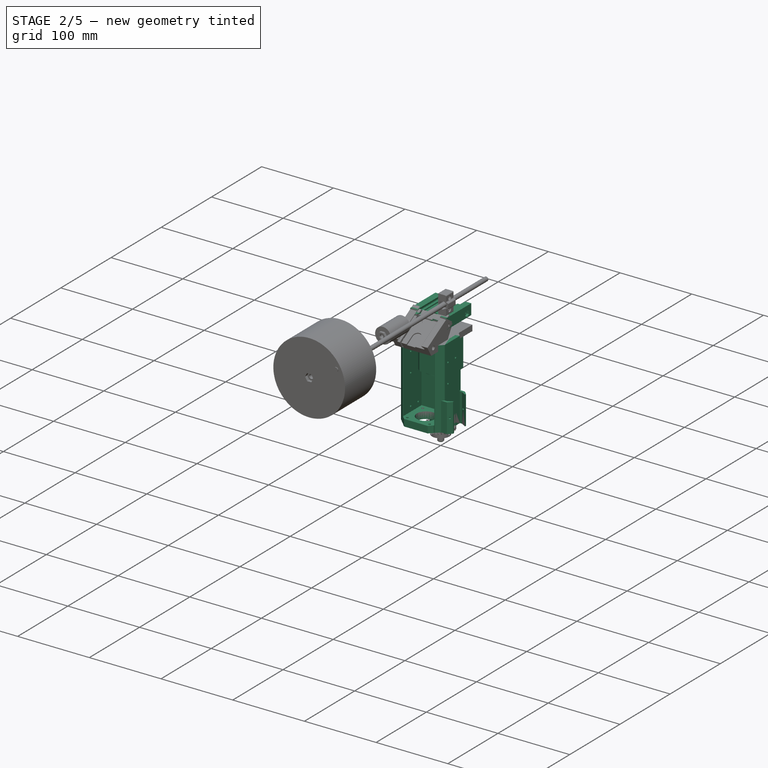
[diagram: stage 2 of 5 — iso view after this stage's code; geometry added in this stage tinted green]
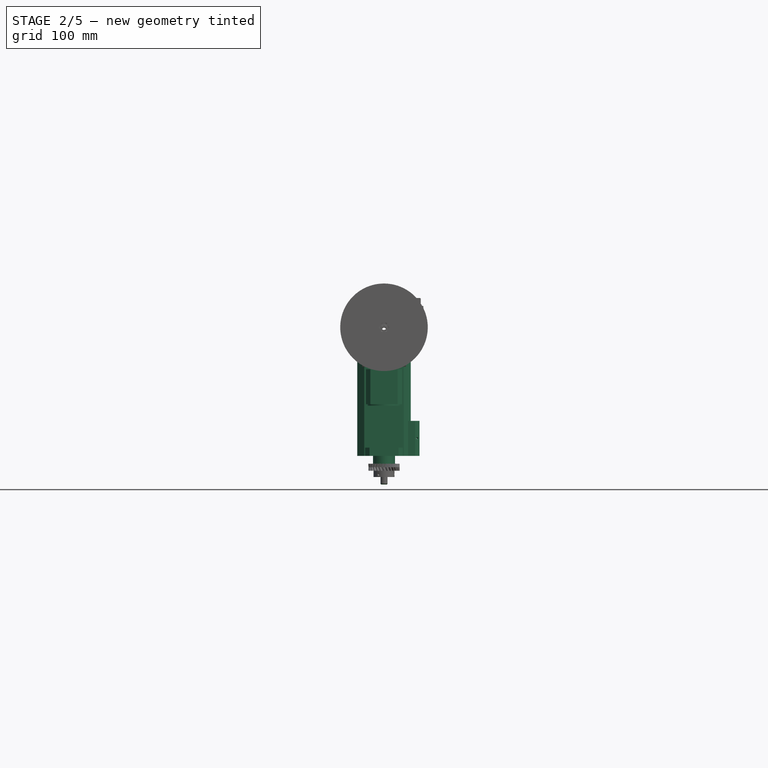
[diagram: stage 2 of 5 — front view after this stage's code; geometry added in this stage tinted green]
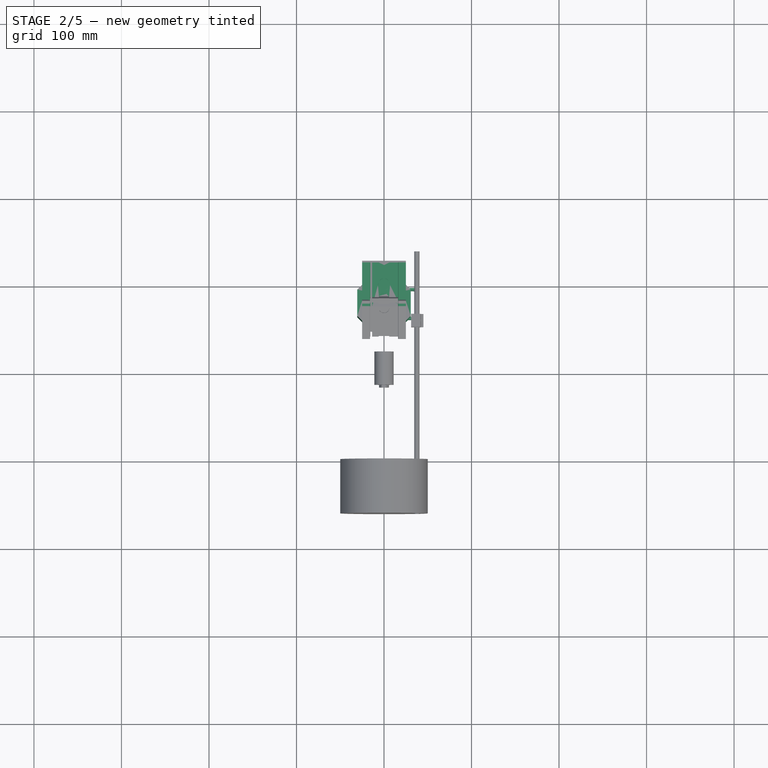
[diagram: stage 2 of 5 — top view after this stage's code; geometry added in this stage tinted green]
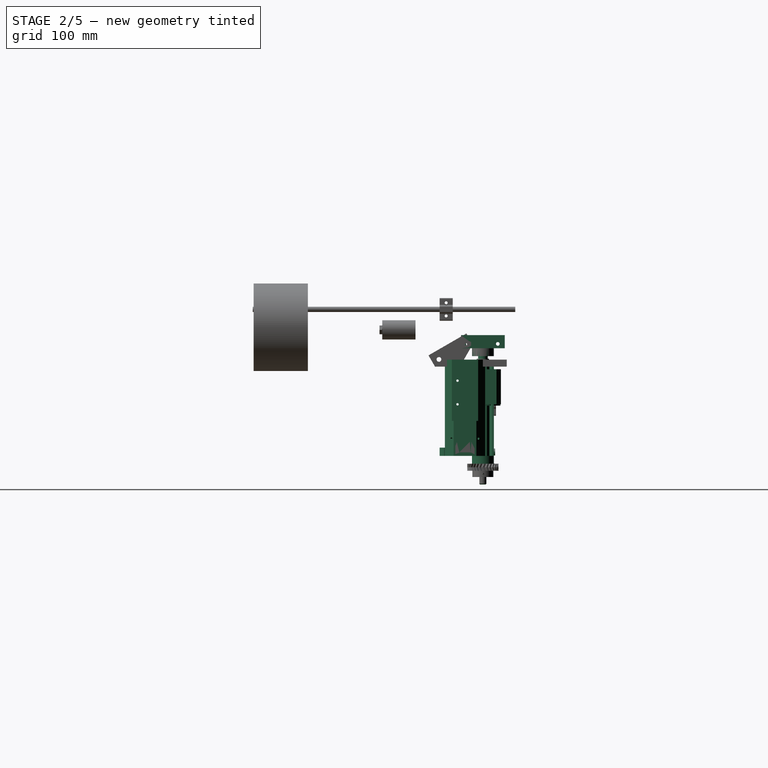
[diagram: stage 2 of 5 — right view after this stage's code; geometry added in this stage tinted green]
FEATURE [App::Part] Part025  label="Gear27 A"
  Group = -> [Sketch014,Cylinder014005367,Cylinder014005356,Fusion237,Fusion236,InvoluteGear021,Extrude032,Cut061105,Nut016,Nut,Cylinder014005378,Cylinder014005377,Cut061104,Cylinder014005372]
  License = CC BY 3.0
  LicenseURL = http://creativecommons.org/licenses/by/3.0/
  Origin = -> Origin025
FEATURE [Sketcher::SketchObject] Sketch015
  MapMode = 5
  Placement = pos=(0,0,60) rot=(0,0,1;0rad)
  sketch-geometry (6):
    g0: LineSegment StartX=-18.9734 StartY=34.0308 StartZ=0 EndX=-16.0253 EndY=36.9748 EndZ=0
    g1: LineSegment StartX=18.996 StartY=34.0308 StartZ=0 EndX=16.044 EndY=36.9748 EndZ=0
    g2: LineSegment StartX=18.996 StartY=34.0308 StartZ=0 EndX=-18.9734 EndY=34.0308 EndZ=0
    g3: LineSegment StartX=-18.9734 StartY=40.0311 StartZ=0 EndX=-16.0253 EndY=36.9748 EndZ=0
    g4: LineSegment StartX=16.044 StartY=36.9748 StartZ=0 EndX=18.9109 EndY=40.0311 EndZ=0
    g5: LineSegment StartX=-18.9734 StartY=40.0311 StartZ=0 EndX=18.9109 EndY=40.0311 EndZ=0
  constraints (7):
    c: Coincident(g2,g1)
    c: Coincident(g2,g0)
    c: Horizontal(g2)
    c: Coincident(g3,g0)
    c: Coincident(g5,g3)
    c: Coincident(g5,g4)
    c: Horizontal(g5)
FEATURE [Part::Extrusion] Extrude033
  Base = -> Sketch015
  Dir = (0,0,1)
  DirMode = 2
  FaceMakerClass = Part::FaceMakerBullseye
  LengthFwd = -112
  LengthRev = 0
  Solid = true
  Symmetric = false
FEATURE [Part::Cylinder] Cylinder014005379  label="Válec338"
  Angle = 360
  AttacherType = Attacher::AttachEngine3D
  Height = 50
  Placement = pos=(15.5,15.5,0) rot=(0,0,1;0rad)
  Radius = 1.6
FEATURE [Part::Cylinder] Cylinder014005380  label="Válec339"
  Angle = 360
  AttacherType = Attacher::AttachEngine3D
  Height = 50
  Placement = pos=(-15.5,15.5,0) rot=(0,0,1;0rad)
  Radius = 1.6
FEATURE [Part::Cylinder] Cylinder014005381  label="Válec340"
  Angle = 360
  AttacherType = Attacher::AttachEngine3D
  Height = 50
  Placement = pos=(-15.5,-15.5,0) rot=(0,0,1;0rad)
  Radius = 1.6
FEATURE [Part::Box] Box052  label="Krychle043"
  AttacherType = Attacher::AttachEngine3D
  Height = 10
  Length = 43
  Placement = pos=(-21.5,-20.5,0) rot=(0,0,1;0rad)
  Width = 42
FEATURE [Part::Chamfer] Chamfer010
  Base = -> Box052
  Edges = 2 edges r=5: [Edge1,Edge5]
FEATURE [Part::Cylinder] Cylinder014005382  label="Válec341"
  Angle = 360
  AttacherType = Attacher::AttachEngine3D
  Height = 50
  Placement = pos=(15.5,-15.5,0) rot=(0,0,1;0rad)
  Radius = 1.6
FEATURE [Part::Cylinder] Cylinder014005383  label="dira stred004"
  Angle = 360
  AttacherType = Attacher::AttachEngine3D
  Height = 50
  Radius = 13
FEATURE [Part::MultiFuse] Fusion239  label="diry007"
  Shapes = -> [Cylinder014005380,Cylinder014005379,Cylinder014005383,Cylinder014005381,Cylinder014005382]
FEATURE [Part::Cut] Cut061106  label="Horni ucjyt002"
  Base = -> Chamfer010
  Placement = pos=(0,0,49.5) rot=(0,0,1;0rad)
  Tool = -> Fusion239
FEATURE [Part::Box] Box053  label="deska006"
  AttacherType = Attacher::AttachEngine3D
  Height = 111
  Length = 9
  Placement = pos=(-30.5,-14.5,-51.5) rot=(0,0,1;0rad)
  Width = 46
FEATURE [Part::Cylinder] Cylinder014005384  label="Válec342"
  Angle = 360
  AttacherType = Attacher::AttachEngine3D
  Height = 10
  Placement = pos=(0,43,54.5) rot=(1,0,0;1.5708rad)
  Radius = 4
FEATURE [Part::Box] Box054  label="Krychle044"
  AttacherType = Attacher::AttachEngine3D
  Height = 112
  Length = 38
  Placement = pos=(-19,32,-52) rot=(0,0,1;0rad)
  Width = 10
FEATURE [Part::Box] Box055  label="deska007"
  AttacherType = Attacher::AttachEngine3D
  Height = 111
  Length = 43
  Placement = pos=(-21.5,21.5,-51.5) rot=(0,0,1;0rad)
  Width = 10
FEATURE [Part::Box] Box056  label="deska008"
  AttacherType = Attacher::AttachEngine3D
  Height = 111
  Length = 9
  Placement = pos=(21.5,-14.5,-51.5) rot=(0,0,1;0rad)
  Width = 46
FEATURE [Part::MultiFuse] Fusion242  label="motor drazak002"
  Shapes = -> [Cut061106,Box056,Box055,Box053]
FEATURE [Part::Box] Box057  label="Krychle045"
  AttacherType = Attacher::AttachEngine3D
  Height = 112
  Length = 38
  Placement = pos=(-19,34,-52) rot=(0,0,1;0rad)
  Width = 6
FEATURE [Part::Cut] Cut061107
  Base = -> Box054
  Tool = -> Box057
FEATURE [Part::MultiFuse] Fusion240  label="Arca plate base006"
  Placement = pos=(0,-0.5,0) rot=(0,0,1;0rad)
  Shapes = -> [Extrude033,Cut061107]
FEATURE [Part::Cylinder] Cylinder014005386  label="Válec343"
  Angle = 360
  AttacherType = Attacher::AttachEngine3D
  Height = 10
  Placement = pos=(0,43,-47) rot=(1,0,0;1.5708rad)
  Radius = 4
FEATURE [Part::MultiFuse] Fusion241  label="drzak s arca002"
  Shapes = -> [Fusion242,Fusion240,Cylinder014005384,Cylinder014005386]
FEATURE [Part::Cut] Cut061108  label="Blok A001"
  Base = -> Fusion241
  Tool = -> Fusion245
FEATURE [Part::Chamfer] Chamfer009  label="Axis 003"
  Base = -> Cut061108
  Edges = 4 edges r=8: [Edge132,Edge133,Edge152,Edge153]
  Placement = pos=(0,-29,0) rot=(0,1,0;3.14159rad)
FEATURE [Part::RegularPolygon] RegularPolygon006  label="Pravidelný n-úhelník006"
  AttacherType = Attacher::AttachEngine3D
  Circumradius = 6
  Polygon = 6
FEATURE [Part::Extrusion] Extrude040
  Base = -> RegularPolygon006
  Dir = (0,0,1)
  DirMode = 2
  FaceMakerClass = Part::FaceMakerBullseye
  LengthFwd = 8
  LengthRev = 0
  Placement = pos=(0,0,13) rot=(0,0,1;0rad)
  Solid = true
  Symmetric = false
FEATURE [Part::RegularPolygon] RegularPolygon007  label="Pravidelný n-úhelník007"
  AttacherType = Attacher::AttachEngine3D
  Circumradius = 6
  Polygon = 6
FEATURE [Part::Extrusion] Extrude043
  Base = -> RegularPolygon007
  Dir = (0,0,1)
  DirMode = 2
  FaceMakerClass = Part::FaceMakerBullseye
  LengthFwd = 8
  LengthRev = 0
  Placement = pos=(0,0,13) rot=(0,0,1;0rad)
  Solid = true
  Symmetric = false
FEATURE [Part::FeaturePython] InvoluteGear022  # WARN: FeaturePython — macro-defined, semantics opaque (R4)
  backlash = 0
  beta = 0
  clearance = 0.25
  double_helix = false
  head = 0
  height = 5.5
  module = 1.2
  numpoints = 6
  pressure_angle = 20
  reversed_backlash = false
  shift = 0
  simple = false
  teeth = 27
  undercut = false
FEATURE [Part::FeaturePython] Nut017  label="M4-Nut008"  # Fasteners workbench fastener (typed FeaturePython)
  Placement = pos=(22,17,69) rot=(0,1,0;1.5708rad)
  diameter = 6
  invert = false
  matchOuter = false
  offset = 0
  thread = false
  type = 1
FEATURE [Part::FeaturePython] Nut018  label="M4-Nut009"  # Fasteners workbench fastener (typed FeaturePython)
  Placement = pos=(22,-17,69) rot=(0,1,0;1.5708rad)
  diameter = 6
  invert = false
  matchOuter = false
  offset = 0
  thread = false
  type = 1
FEATURE [Sketcher::SketchObject] Sketch017
  MapMode = 5
  Placement = pos=(0,0,60) rot=(0,0,1;0rad)
  sketch-geometry (6):
    g0: LineSegment StartX=-18.9734 StartY=34.0308 StartZ=0 EndX=-16.0253 EndY=36.9748 EndZ=0
    g1: LineSegment StartX=18.996 StartY=34.0308 StartZ=0 EndX=16.044 EndY=36.9748 EndZ=0
    g2: LineSegment StartX=18.996 StartY=34.0308 StartZ=0 EndX=-18.9734 EndY=34.0308 EndZ=0
    g3: LineSegment StartX=-18.9734 StartY=40.0311 StartZ=0 EndX=-16.0253 EndY=36.9748 EndZ=0
    g4: LineSegment StartX=16.044 StartY=36.9748 StartZ=0 EndX=18.9109 EndY=40.0311 EndZ=0
    g5: LineSegment StartX=-18.9734 StartY=40.0311 StartZ=0 EndX=18.9109 EndY=40.0311 EndZ=0
  constraints (7):
    c: Coincident(g2,g1)
    c: Coincident(g2,g0)
    c: Horizontal(g2)
    c: Coincident(g3,g0)
    c: Coincident(g5,g3)
    c: Coincident(g5,g4)
    c: Horizontal(g5)
FEATURE [Part::Extrusion] Extrude039
  Base = -> Sketch017
  Dir = (0,0,1)
  DirMode = 2
  FaceMakerClass = Part::FaceMakerBullseye
  LengthFwd = -112
  LengthRev = 0
  Solid = true
  Symmetric = false
FEATURE [Sketcher::SketchObject] Sketch018
  MapMode = 45
  Placement = pos=(44.88,21.011,5.40003) rot=(0.707106,0.001666,0.707106;3.13826rad)
  sketch-geometry (7):
    g0: LineSegment StartX=5.21891 StartY=0.0364138 StartZ=0 EndX=2.62121 EndY=4.46293 EndZ=0
    g1: LineSegment StartX=2.62121 StartY=4.46293 StartZ=0 EndX=-2.51111 EndY=4.42651 EndZ=0
    g2: LineSegment StartX=-2.51111 StartY=4.42651 StartZ=0 EndX=-5.04574 EndY=-0.0364138 EndZ=0
    g3: LineSegment StartX=-5.04574 StartY=-0.0364138 StartZ=0 EndX=-2.44804 EndY=-4.46293 EndZ=0
    g4: LineSegment StartX=-2.44804 StartY=-4.46293 StartZ=0 EndX=2.68428 EndY=-4.42651 EndZ=0
    g5: LineSegment StartX=2.68428 StartY=-4.42651 StartZ=0 EndX=5.21891 EndY=0.0364138 EndZ=0
    g6: Circle [constr] CenterX=0.0865834 CenterY=0 CenterZ=0 NormalX=0 NormalY=0 NormalZ=1 AngleXU=0 Radius=5.13245
  constraints (14):
    c: Coincident(g0,g1)
    c: Coincident(g1,g2)
    c: Coincident(g2,g3)
    c: Coincident(g3,g4)
    c: Coincident(g4,g5)
    c: Coincident(g5,g0)
    c: Equal(g0, g1-g5) x5
    c: PointOnObject(g0,g6)
    c: PointOnObject(g1,g6)
    c: PointOnObject(g2,g6)
    c: PointOnObject(g3,g6)
    c: PointOnObject(g4,g6)
    c: PointOnObject(g5,g6)
    c: PointOnObject(g6,g-1)
FEATURE [Part::Extrusion] Extrude038
  Base = -> Sketch018
  Dir = (1,0,0)
  DirMode = 2
  FaceMakerClass = Part::FaceMakerBullseye
  LengthFwd = 5
  LengthRev = 0
  Placement = pos=(0,0,0.25) rot=(0,0,1;0rad)
  Solid = true
  Symmetric = false
FEATURE [Part::Cylinder] Cylinder014005409  label="Válec364"
  Angle = 360
  AttacherType = Attacher::AttachEngine3D
  Height = 1.5
  Radius = 16
FEATURE [Part::Cylinder] Cylinder014005410  label="Válec365"
  Angle = 360
  AttacherType = Attacher::AttachEngine3D
  Height = 1.5
  Radius = 16
FEATURE [Part::Cylinder] Cylinder014005411  label="Válec366"
  Angle = 360
  AttacherType = Attacher::AttachEngine3D
  Height = 1.5
  Radius = 20
FEATURE [Part::Cut] Cut061118  label="Ring026"
  Base = -> Cylinder014005411
  Placement = pos=(0,0,-1.5) rot=(0,0,1;0rad)
  Tool = -> Cylinder014005410
FEATURE [Part::Cylinder] Cylinder014005417  label="Válec370"
  Angle = 360
  AttacherType = Attacher::AttachEngine3D
  Height = 4
  Placement = pos=(0,0,7) rot=(0,0,1;0rad)
  Radius = 6.5
FEATURE [Part::FeaturePython] Nut019  label="M8-Nut003"  # Fasteners workbench fastener (typed FeaturePython)
  Placement = pos=(0,0,-68) rot=(0,0,1;0rad)
  diameter = 9
  invert = false
  matchOuter = false
  offset = 0
  thread = false
  type = 3
FEATURE [Part::FeaturePython] InvoluteGear026  # WARN: FeaturePython — macro-defined, semantics opaque (R4)
  backlash = 0
  beta = 0
  clearance = 0.25
  double_helix = false
  head = 0
  height = 5.5
  module = 1.2
  numpoints = 6
  pressure_angle = 20
  reversed_backlash = false
  shift = 0
  simple = false
  teeth = 27
  undercut = false
FEATURE [Part::MultiFuse] Fusion260  label="srouby035"
  Placement = pos=(0,0,0.5) rot=(0,0,1;0rad)
  Shapes = -> [Screw_solid093,Screw_solid100,Screw_solid095]
FEATURE [Part::MultiFuse] Fusion263
  Shapes = -> [Cylinder014005398,Cylinder014005396,Cylinder014005399]
FEATURE [Part::Cylinder] Cylinder014005426  label="Unasec vrch019"
  Angle = 360
  AttacherType = Attacher::AttachEngine3D
  Height = 1.5
  Placement = pos=(0,0,5.5) rot=(0,0,1;0rad)
  Radius = 15.5
FEATURE [Part::Cut] Cut061113  label="unasec vrch019"
  Base = -> Cylinder014005426
  Tool = -> Fusion260
FEATURE [Part::FeaturePython] Screw010  label="M8x160-Screw003"  # Fasteners workbench fastener (typed FeaturePython)
  Placement = pos=(0,0,68.4) rot=(0,0,1;0rad)
  diameter = 9
  invert = false
  length = 16
  matchOuter = false
  offset = 0
  thread = false
  type = 13
FEATURE [Part::Cylinder] Cylinder014005429  label="Válec379"
  Angle = 360
  AttacherType = Attacher::AttachEngine3D
  Height = 5.5
  Radius = 20
FEATURE [Part::Cut] Cut061114  label="ring 012"
  Base = -> Cylinder014005429
  Tool = -> InvoluteGear026
FEATURE [Part::Cylinder] Cylinder014005431  label="Válec380"
  Angle = 360
  AttacherType = Attacher::AttachEngine3D
  Height = 7
  Radius = 2.6
FEATURE [Part::MultiFuse] Fusion262
  Placement = pos=(0,0,1) rot=(0,0,1;0rad)
  Shapes = -> [Fusion263,Cylinder014005431]
FEATURE [Part::Cut] Cut061116  label="Unasec Vrch zaklad019"
  Base = -> Cut061113
  Tool = -> Fusion262
FEATURE [Part::Cylinder] Cylinder014005432  label="Válec381"
  Angle = 360
  AttacherType = Attacher::AttachEngine3D
  Height = 7
  Radius = 2.6
FEATURE [Part::Cylinder] Cylinder014005433  label="Válec382"
  Angle = 360
  AttacherType = Attacher::AttachEngine3D
  Height = 10
  Placement = pos=(0,0,-3) rot=(0,0,1;0rad)
  Radius = 7
FEATURE [Part::Cylinder] Cylinder014005435  label="Válec384"
  Angle = 360
  AttacherType = Attacher::AttachEngine3D
  Height = 1.5
  Radius = 20
FEATURE [Part::Cut] Cut061109  label="Ring024"
  Base = -> Cylinder014005435
  Placement = pos=(0,0,5.5) rot=(0,0,1;0rad)
  Tool = -> Cylinder014005409
FEATURE [Part::Cylinder] Cylinder014005438  label="Válec387"
  Angle = 360
  AttacherType = Attacher::AttachEngine3D
  Height = 10
  Placement = pos=(10.5,0,0) rot=(0,0,1;0rad)
  Radius = 8
FEATURE [Part::Cylinder] Cylinder014005439  label="Unasec vrch021"
  Angle = 360
  AttacherType = Attacher::AttachEngine3D
  Height = 1.5
  Placement = pos=(0,0,5.5) rot=(0,0,1;0rad)
  Radius = 15.5
FEATURE [Part::Cylinder] Cylinder014005441  label="Válec388"
  Angle = 360
  AttacherType = Attacher::AttachEngine3D
  Height = 1.5
  Radius = 20
FEATURE [Part::Cylinder] Cylinder014005443  label="Válec390"
  Angle = 360
  AttacherType = Attacher::AttachEngine3D
  Height = 10
  Placement = pos=(10.5,0,0) rot=(0,0,1;0rad)
  Radius = 8
FEATURE [Part::Cylinder] Cylinder014005444  label="Válec391"
  Angle = 360
  AttacherType = Attacher::AttachEngine3D
  Height = 1.5
  Radius = 16
FEATURE [Part::Cylinder] Cylinder014005448  label="Válec395"
  Angle = 360
  AttacherType = Attacher::AttachEngine3D
  Height = 10
  Placement = pos=(0,0,-3) rot=(0,0,1;0rad)
  Radius = 7
FEATURE [Part::Cylinder] Cylinder014005450  label="Válec396"
  Angle = 360
  AttacherType = Attacher::AttachEngine3D
  Height = 4
  Placement = pos=(0,0,7) rot=(0,0,1;0rad)
  Radius = 6.5
FEATURE [Part::MultiFuse] Fusion301
  Shapes = -> [Cylinder014005433,Cylinder014005438,Cylinder014005453,Cylinder014005455]
FEATURE [Part::MultiFuse] Fusion303  label="unasec vrhch 016"
  Shapes = -> [Cut061116,Cut007_solid015,Cylinder014005417]
FEATURE [Part::MultiFuse] Fusion313  label="Ring zaklad Fin015"
  Shapes = -> [Cut061114,Cut061109,Cut061118]
FEATURE [Part::Feature] Cut008_solid041  label="Planet042"
  shape: bbox 12.9 x 13.1 x 5 mm, 57 faces (baked)
FEATURE [Part::Feature] Cylinder014005461  label="Válec407"
  shape: bbox 5 x 5 x 7 mm, 3 faces (baked)
FEATURE [Part::Feature] Cut007_solid017  label="Sun018"
  Placement = pos=(0,0,10.5) rot=(0,0,1;0rad)
  shape: bbox 12.9 x 13.1 x 5 mm, 57 faces (baked)
FEATURE [Part::Feature] Screw_solid109  label="M2x4-Screw (Solid)109"
  Placement = pos=(0,0,0) rot=(0,0,1;3.14159rad)
  shape: bbox 3.6 x 3.6 x 4 mm, 12 faces (baked)
FEATURE [Part::Feature] Screw_solid110  label="M2x4-Screw (Solid)110"
  Placement = pos=(0,0,0) rot=(0,0,1;1.0472rad)
  shape: bbox 3.6 x 3.6 x 4 mm, 12 faces (baked)
FEATURE [Part::Feature] Cylinder014005462  label="Válec408"
  Placement = pos=(0,0,0) rot=(0,0,1;2.0944rad)
  shape: bbox 5 x 5 x 7 mm, 3 faces (baked)
FEATURE [Part::Feature] Screw_solid111  label="M2x4-Screw (Solid)111"
  Placement = pos=(0,0,0) rot=(0,0,1;3.14159rad)
  shape: bbox 3.6 x 3.6 x 4 mm, 12 faces (baked)
FEATURE [Part::MultiFuse] Fusion309  label="srouby042"
  Placement = pos=(0,0,0.5) rot=(0,0,1;0rad)
  Shapes = -> [Screw_solid110,Screw_solid104,Screw_solid111]
FEATURE [Part::Cut] Cut061131  label="unasec vrch021"
  Base = -> Cylinder014005439
  Tool = -> Fusion309
FEATURE [Part::Feature] Screw_solid113  label="M2x4-Screw (Solid)113"
  Placement = pos=(0,0,0) rot=(0,0,1;1.0472rad)
  shape: bbox 3.6 x 3.6 x 4 mm, 12 faces (baked)
FEATURE [Part::Feature] Cut008_solid043  label="Planet044"
  Placement = pos=(0,0,0) rot=(0,0,1;2.0944rad)
  shape: bbox 12.9 x 13.1 x 5 mm, 57 faces (baked)
FEATURE [Part::Feature] Screw_solid114  label="M2x4-Screw (Solid)114"
  Placement = pos=(0,0,0) rot=(0,0,-1;1.0472rad)
  shape: bbox 3.6 x 3.6 x 4 mm, 12 faces (baked)
FEATURE [Part::Feature] Cylinder014005467  label="Válec413"
  Placement = pos=(0,0,0) rot=(0,0,1;4.18879rad)
  shape: bbox 16 x 16 x 10 mm, 3 faces (baked)
FEATURE [Part::MultiFuse] Fusion251
  Shapes = -> [Cylinder014005448,Cylinder014005443,Cylinder014005467,Cylinder014005463]
FEATURE [App::Part] Part030  label="Part058"
  Group = -> [Cut061111,Cut061122,Cylinder014005415,Cylinder014005416,Cylinder014005427,Cylinder014005428,Cylinder014005397,Cylinder014005404,Cylinder014005401,Screw_solid098,Cylinder014005403,Screw_solid106,Cylinder014005457,Screw_solid096,Fusion257,Fusion248,Fusion280,Fusion279,Fusion290,Cut008_solid038,Cut008_solid037,Cut008_solid033,Screw_solid105,Cylinder014005460,Cylinder014005456,Screw_solid097,+27 more]
  License = CC BY 3.0
  LicenseURL = http://creativecommons.org/licenses/by/3.0/
  Origin = -> Origin027
  Placement = pos=(0,0,10.5) rot=(0,0,1;0rad)
FEATURE [Part::Feature] Cylinder014005469  label="Válec415"
  Placement = pos=(0,0,0) rot=(0,0,1;4.18879rad)
  shape: bbox 5 x 5 x 7 mm, 3 faces (baked)
FEATURE [Part::Feature] Cylinder014005470  label="Válec416"
  Placement = pos=(0,0,0) rot=(0,0,1;2.0944rad)
  shape: bbox 5 x 5 x 7 mm, 3 faces (baked)
FEATURE [Part::Feature] Cut007_solid018  label="Sun019"
  Placement = pos=(0,0,10.5) rot=(0,0,1;0rad)
  shape: bbox 12.9 x 13.1 x 5 mm, 57 faces (baked)
FEATURE [Part::Feature] Cut008_solid044  label="Planet045"
  Placement = pos=(0,0,0) rot=(0,0,1;2.0944rad)
  shape: bbox 12.9 x 13.1 x 5 mm, 57 faces (baked)
FEATURE [Part::Feature] Cylinder014005471  label="Válec417"
  shape: bbox 5 x 5 x 7 mm, 3 faces (baked)
FEATURE [Part::MultiFuse] Fusion253
  Shapes = -> [Cylinder014005459,Cylinder014005471,Cylinder014005470]
FEATURE [Part::MultiFuse] Fusion278
  Placement = pos=(0,0,1) rot=(0,0,1;0rad)
  Shapes = -> [Fusion253,Cylinder014005432]
FEATURE [App::Part] Part029  label="Part057"
  Group = -> [Cut061125,Cut061126,Cylinder014005433,Cylinder014005449,Cylinder014005440,Cylinder014005438,Cylinder014005453,Cylinder014005454,Cylinder014005455,Screw_solid107,Cylinder014005452,Screw_solid108,Cylinder014005458,Screw_solid103,Fusion301,Fusion293,Fusion254,Fusion294,Fusion295,Cut008_solid040,Cut008_solid044,Cut008_solid039,Screw_solid110,Cylinder014005471,Cylinder014005470,Screw_solid104,+27 more]
  License = CC BY 3.0
  LicenseURL = http://creativecommons.org/licenses/by/3.0/
  Origin = -> Origin028
  Placement = pos=(0,0,21) rot=(0,0,1;0rad)
FEATURE [Part::Feature] Screw_solid115  label="M2x4-Screw (Solid)115"
  Placement = pos=(0,0,0) rot=(0,0,1;3.14159rad)
  shape: bbox 3.6 x 3.6 x 4 mm, 12 faces (baked)
FEATURE [Part::MultiFuse] Fusion250  label="srouby032"
  Shapes = -> [Screw_solid112,Screw_solid114,Screw_solid115]
FEATURE [Part::Feature] Screw_solid116  label="M2x4-Screw (Solid)116"
  Placement = pos=(0,0,0) rot=(0,0,1;3.14159rad)
  shape: bbox 3.6 x 3.6 x 4 mm, 12 faces (baked)
FEATURE [Part::Feature] Screw_solid117  label="M2x4-Screw (Solid)117"
  Placement = pos=(0,0,0) rot=(0,0,1;3.14159rad)
  shape: bbox 3.6 x 3.6 x 4 mm, 12 faces (baked)
FEATURE [Part::Feature] Screw_solid118  label="M2x4-Screw (Solid)118"
  Placement = pos=(0,0,0) rot=(0,0,1;1.0472rad)
  shape: bbox 3.6 x 3.6 x 4 mm, 12 faces (baked)
FEATURE [Part::Feature] Cut061152  label="SUN I Final002"
  shape: bbox 24 x 24 x 12.25 mm, 99 faces (baked)
FEATURE [App::Part] Part031
  Group = -> [Cut008_solid034,Cut008_solid036,Cut008_solid035,Cylinder014005420,Cylinder014005394,Cylinder014005408,Fusion256,Fusion266,Cylinder014005405,Cylinder014005402,Cylinder014005419,Cylinder014005400,Cylinder014005406,Cylinder014005413,Cut061112,Cut061117,Screw_solid099,Screw_solid102,Screw_solid101,Fusion269,Fusion267,Fusion255,Cylinder014005417,Cylinder014005407,Cut007_solid015,Cut061113,Cut061116,+32 more]
  License = CC BY 3.0
  LicenseURL = http://creativecommons.org/licenses/by/3.0/
  Origin = -> Origin029
FEATURE [Part::Feature] Screw_solid119  label="M2x4-Screw (Solid)119"
  Placement = pos=(0,0,0) rot=(0,0,1;3.14159rad)
  shape: bbox 3.6 x 3.6 x 4 mm, 12 faces (baked)
FEATURE [Part::Feature] Cylinder014005472  label="Válec418"
  Placement = pos=(0,0,0) rot=(0,0,1;4.18879rad)
  shape: bbox 16 x 16 x 10 mm, 3 faces (baked)
FEATURE [Part::Feature] Screw_solid120  label="M2x4-Screw (Solid)120"
  Placement = pos=(0,0,0) rot=(0,0,1;1.0472rad)
  shape: bbox 3.6 x 3.6 x 4 mm, 12 faces (baked)
FEATURE [Part::Feature] Cylinder014005473  label="Válec419"
  Placement = pos=(0,0,0) rot=(0,0,1;4.18879rad)
  shape: bbox 5 x 5 x 7 mm, 3 faces (baked)
FEATURE [Part::Feature] Cut008_solid045  label="Planet046"
  Placement = pos=(0,0,0) rot=(0,0,1;4.18879rad)
  shape: bbox 12.9 x 13.1 x 5 mm, 57 faces (baked)
FEATURE [Part::Feature] Cut008_solid046  label="Planet047"
  Placement = pos=(0,0,0) rot=(0,0,1;2.0944rad)
  shape: bbox 12.9 x 13.1 x 5 mm, 57 faces (baked)
FEATURE [Part::Feature] Cylinder014005474  label="Válec420"
  Placement = pos=(0,0,0) rot=(0,0,1;4.18879rad)
  shape: bbox 5 x 5 x 7 mm, 3 faces (baked)
FEATURE [Part::Feature] Cylinder014005475  label="Válec421"
  shape: bbox 5 x 5 x 7 mm, 3 faces (baked)
FEATURE [Part::MultiFuse] Fusion300
  Shapes = -> [Cylinder014005469,Cylinder014005475,Cylinder014005462]
FEATURE [Part::Feature] Cylinder014005478  label="Válec424"
  shape: bbox 5 x 5 x 7 mm, 3 faces (baked)
FEATURE [Part::Feature] Screw_solid122  label="M2x4-Screw (Solid)122"
  Placement = pos=(0,0,0) rot=(0,0,-1;1.0472rad)
  shape: bbox 3.6 x 3.6 x 4 mm, 12 faces (baked)
FEATURE [Part::Feature] Screw_solid123  label="M2x4-Screw (Solid)123"
  Placement = pos=(0,0,0) rot=(0,0,-1;1.0472rad)
  shape: bbox 3.6 x 3.6 x 4 mm, 12 faces (baked)
FEATURE [Part::MultiFuse] Fusion306  label="srouby041"
  Placement = pos=(0,0,0.5) rot=(0,0,1;0rad)
  Shapes = -> [Screw_solid113,Screw_solid123,Screw_solid109]
FEATURE [Part::Feature] Cylinder014005479  label="Válec425"
  Placement = pos=(0,0,0) rot=(0,0,1;2.0944rad)
  shape: bbox 16 x 16 x 10 mm, 3 faces (baked)
FEATURE [Part::Feature] Screw_solid124  label="M2x4-Screw (Solid)124"
  Placement = pos=(0,0,0) rot=(0,0,-1;1.0472rad)
  shape: bbox 3.6 x 3.6 x 4 mm, 12 faces (baked)
FEATURE [Part::MultiFuse] Fusion310  label="srouby043"
  Placement = pos=(0,0,0.5) rot=(0,0,1;0rad)
  Shapes = -> [Screw_solid118,Screw_solid124,Screw_solid117]
FEATURE [Part::Feature] Cylinder014005480  label="Válec426"
  Placement = pos=(0,0,0) rot=(0,0,1;2.0944rad)
  shape: bbox 5 x 5 x 7 mm, 3 faces (baked)
FEATURE [Part::MultiFuse] Fusion275
  Shapes = -> [Cylinder014005473,Cylinder014005461,Cylinder014005480]
FEATURE [Part::Feature] Cylinder014005481  label="Válec427"
  shape: bbox 5 x 5 x 7 mm, 3 faces (baked)
FEATURE [Part::MultiFuse] Fusion305
  Shapes = -> [Cylinder014005474,Cylinder014005481,Cylinder014005476]
FEATURE [Part::Feature] Cut008_solid047  label="Planet048"
  shape: bbox 12.9 x 13.1 x 5 mm, 57 faces (baked)
FEATURE [Part::Cylinder] Cylinder014005482  label="Válec428"
  Angle = 360
  AttacherType = Attacher::AttachEngine3D
  Height = 7
  Radius = 2.6
FEATURE [Part::Cylinder] Cylinder014005483  label="Válec429"
  Angle = 360
  AttacherType = Attacher::AttachEngine3D
  Height = 4
  Placement = pos=(0,0,7) rot=(0,0,1;0rad)
  Radius = 6.5
FEATURE [Part::Cylinder] Cylinder014005484  label="Válec430"
  Angle = 360
  AttacherType = Attacher::AttachEngine3D
  Height = 5.5
  Radius = 20
FEATURE [Part::Cylinder] Cylinder014005485  label="Válec431"
  Angle = 360
  AttacherType = Attacher::AttachEngine3D
  Height = 1.5
  Radius = 20
FEATURE [Part::Cylinder] Cylinder014005486  label="Válec432"
  Angle = 360
  AttacherType = Attacher::AttachEngine3D
  Height = 1.5
  Radius = 20
FEATURE [Part::Cut] Cut061137  label="Ring031"
  Base = -> Cylinder014005486
  Placement = pos=(0,0,-1.5) rot=(0,0,1;0rad)
  Tool = -> Cylinder014005444
FEATURE [Part::Cylinder] Cylinder014005487  label="Válec433"
  Angle = 360
  AttacherType = Attacher::AttachEngine3D
  Height = 1.5
  Radius = 16
FEATURE [Part::Cylinder] Cylinder014005488  label="Unasec vrch022"
  Angle = 360
  AttacherType = Attacher::AttachEngine3D
  Height = 1.5
  Placement = pos=(0,0,5.5) rot=(0,0,1;0rad)
  Radius = 15.5
FEATURE [Part::Cylinder] Cylinder014005489  label="Válec434"
  Angle = 360
  AttacherType = Attacher::AttachEngine3D
  Height = 18
  Radius = 2.6
FEATURE [Part::Cylinder] Cylinder014005490  label="unasec spodek032"
  Angle = 360
  AttacherType = Attacher::AttachEngine3D
  Height = 1.5
  Placement = pos=(0,0,-1.5) rot=(0,0,1;0rad)
  Radius = 15.5
FEATURE [Part::Cylinder] Cylinder014005491  label="unasec stred015"
  Angle = 360
  AttacherType = Attacher::AttachEngine3D
  Height = 7
  Placement = pos=(0,0,-1.5) rot=(0,0,1;0rad)
  Radius = 13.5
FEATURE [Part::MultiFuse] Fusion286
  Shapes = -> [Cylinder014005491,Cylinder014005490]
FEATURE [Part::Cut] Cut061148  label="unasec spodek028"
  Base = -> Fusion286
  Tool = -> Fusion251
FEATURE [Part::Cut] Cut061135  label="Uasec spodek015"
  Base = -> Cut061148
  Tool = -> Fusion250
FEATURE [Part::MultiFuse] Fusion314  label="Unasec spdek final015"
  Shapes = -> [Cut061135,Fusion300]
FEATURE [Part::Cylinder] Cylinder014005492  label="Válec435"
  Angle = 360
  AttacherType = Attacher::AttachEngine3D
  Height = 1.5
  Radius = 16
FEATURE [Part::Cut] Cut061136  label="Ring030"
  Base = -> Cylinder014005441
  Placement = pos=(0,0,5.5) rot=(0,0,1;0rad)
  Tool = -> Cylinder014005492
FEATURE [Part::Cylinder] Cylinder014005493  label="Válec436"
  Angle = 360
  AttacherType = Attacher::AttachEngine3D
  Height = 5.5
  Radius = 20
FEATURE [Part::Cut] Cut061133  label="ring 015"
  Base = -> Cylinder014005493
  Tool = -> InvoluteGear022
FEATURE [Part::MultiFuse] Fusion302  label="Ring zaklad Fin014"
  Shapes = -> [Cut061133,Cut061136,Cut061137]
FEATURE [App::Part] Part033
  Group = -> [Cut061148,Cut061135,Cylinder014005448,Cylinder014005490,Cylinder014005491,Cylinder014005443,Cylinder014005467,Cylinder014005462,Cylinder014005463,Screw_solid115,Cylinder014005475,Screw_solid112,Cylinder014005469,Screw_solid114,Fusion251,Fusion286,Fusion250,Fusion300,Fusion314,Cut008_solid041,Cut008_solid043,Cut008_solid042,Screw_solid113,Cylinder014005466,Cylinder014005464,Screw_solid123,+27 more]
  License = CC BY 3.0
  LicenseURL = http://creativecommons.org/licenses/by/3.0/
  Origin = -> Origin033
  Placement = pos=(0,0,31.5) rot=(0,0,1;0rad)
FEATURE [Part::Cylinder] Cylinder014005494  label="Unasec vrch023"
  Angle = 360
  AttacherType = Attacher::AttachEngine3D
  Height = 1.5
  Placement = pos=(0,0,5.5) rot=(0,0,1;0rad)
  Radius = 15.5
FEATURE [Part::Cut] Cut061145  label="unasec vrch024"
  Base = -> Cylinder014005494
  Tool = -> Fusion310
FEATURE [Part::Cylinder] Cylinder014005495  label="Válec437"
  Angle = 360
  AttacherType = Attacher::AttachEngine3D
  Height = 10
  Placement = pos=(0,0,-3) rot=(0,0,1;0rad)
  Radius = 7
FEATURE [Part::Cylinder] Cylinder014005496  label="Válec438"
  Angle = 360
  AttacherType = Attacher::AttachEngine3D
  Height = 6
  Placement = pos=(0,0,7) rot=(0,0,1;0rad)
  Radius = 6.5
FEATURE [Part::Cylinder] Cylinder014005497  label="Válec439"
  Angle = 360
  AttacherType = Attacher::AttachEngine3D
  Height = 1.5
  Radius = 20
FEATURE [Part::Cylinder] Cylinder014005498  label="Válec440"
  Angle = 360
  AttacherType = Attacher::AttachEngine3D
  Height = 4
  Placement = pos=(0,0,7) rot=(0,0,1;0rad)
  Radius = 6.5
FEATURE [Part::Cylinder] Cylinder014005499  label="Válec441"
  Angle = 360
  AttacherType = Attacher::AttachEngine3D
  Height = 18
  Radius = 2.6
FEATURE [Part::Cylinder] Cylinder014005500  label="Válec442"
  Angle = 360
  AttacherType = Attacher::AttachEngine3D
  Height = 7
  Radius = 2.6
FEATURE [Part::MultiFuse] Fusion308
  Placement = pos=(0,0,1) rot=(0,0,1;0rad)
  Shapes = -> [Fusion275,Cylinder014005500]
FEATURE [Part::Cylinder] Cylinder014005501  label="Válec443"
  Angle = 360
  AttacherType = Attacher::AttachEngine3D
  Height = 22
  Radius = 2.6
FEATURE [Part::Cylinder] Cylinder014005502  label="Unasec vrch024"
  Angle = 360
  AttacherType = Attacher::AttachEngine3D
  Height = 1.5
  Placement = pos=(0,0,5.5) rot=(0,0,1;0rad)
  Radius = 15.5
FEATURE [Part::Cylinder] Cylinder014005503  label="Válec444"
  Angle = 360
  AttacherType = Attacher::AttachEngine3D
  Height = 1.5
  Radius = 16
FEATURE [Part::Cylinder] Cylinder014005504  label="Válec445"
  Angle = 360
  AttacherType = Attacher::AttachEngine3D
  Height = 10
  Placement = pos=(10.5,0,0) rot=(0,0,1;0rad)
  Radius = 8
FEATURE [Part::Cylinder] Cylinder014005505  label="unasec stred016"
  Angle = 360
  AttacherType = Attacher::AttachEngine3D
  Height = 7
  Placement = pos=(0,0,-1.5) rot=(0,0,1;0rad)
  Radius = 13.5
FEATURE [Part::Cylinder] Cylinder014005506  label="unasec spodek033"
  Angle = 360
  AttacherType = Attacher::AttachEngine3D
  Height = 1.5
  Placement = pos=(0,0,-1.5) rot=(0,0,1;0rad)
  Radius = 15.5
FEATURE [Part::MultiFuse] Fusion312
  Shapes = -> [Cylinder014005505,Cylinder014005506]
FEATURE [Part::Cylinder] Cylinder014005507  label="Válec446"
  Angle = 360
  AttacherType = Attacher::AttachEngine3D
  Height = 7
  Radius = 2.6
FEATURE [Part::Box] Box060  label="Krychle048"
  AttacherType = Attacher::AttachEngine3D
  Height = 40
  Length = 41
  Placement = pos=(-20.5,-20.5,0) rot=(0,0,1;0rad)
  Width = 41
FEATURE [Part::Chamfer] Chamfer011
  Base = -> Box060
  Edges = 4 edges r=5: [Edge1,Edge3,Edge5,Edge7]
FEATURE [Part::Cylinder] Cylinder014005508  label="Válec447"
  Angle = 360
  AttacherType = Attacher::AttachEngine3D
  Height = 50
  Placement = pos=(-15.5,-15.5,0) rot=(0,0,1;0rad)
  Radius = 1.6
FEATURE [Part::Cylinder] Cylinder014005509  label="Válec448"
  Angle = 360
  AttacherType = Attacher::AttachEngine3D
  Height = 50
  Placement = pos=(15.5,15.5,0) rot=(0,0,1;0rad)
  Radius = 1.6
FEATURE [Part::Cylinder] Cylinder014005510  label="Válec449"
  Angle = 360
  AttacherType = Attacher::AttachEngine3D
  Height = 50
  Placement = pos=(15.5,-15.5,0) rot=(0,0,1;0rad)
  Radius = 1.6
FEATURE [Part::Cylinder] Cylinder014005511  label="Válec450"
  Angle = 360
  AttacherType = Attacher::AttachEngine3D
  Height = 50
  Placement = pos=(-15.5,15.5,0) rot=(0,0,1;0rad)
  Radius = 1.6
FEATURE [Part::MultiFuse] Fusion315  label="diry008"
  Shapes = -> [Cylinder014005511,Cylinder014005509,Cylinder014005508,Cylinder014005510]
FEATURE [Part::Cut] Cut061155
  Base = -> Chamfer011
  Tool = -> Fusion315
FEATURE [App::Part] Part027  label="NEAM17  motor- 40mm002"
  Group = -> [Chamfer011,Fusion315,Box060,Cylinder014005511,Cylinder014005509,Cylinder014005508,Cylinder014005510,Cut061155]
  License = CC BY 3.0
  LicenseURL = http://creativecommons.org/licenses/by/3.0/
  Origin = -> Origin031
  Placement = pos=(0,0,-51.5) rot=(0,0,1;0rad)
FEATURE [Part::Feature] Screw_solid125  label="M2x4-Screw (Solid)125"
  Placement = pos=(0,0,0) rot=(0,0,1;1.0472rad)
  shape: bbox 3.6 x 3.6 x 4 mm, 12 faces (baked)
FEATURE [Part::MultiFuse] Fusion282  label="srouby039"
  Placement = pos=(0,0,0.5) rot=(0,0,1;0rad)
  Shapes = -> [Screw_solid125,Screw_solid122,Screw_solid119]
FEATURE [Part::Cut] Cut061143  label="unasec vrch023"
  Base = -> Cylinder014005502
  Tool = -> Fusion282
FEATURE [Part::Cut] Cut061146  label="Unasec Vrch zaklad024"
  Base = -> Cut061143
  Tool = -> Fusion308
FEATURE [Part::MultiFuse] Fusion304  label="unasec vrhch 017"
  Shapes = -> [Cut061146,Cut007_solid017,Cylinder014005498]
FEATURE [Part::Feature] Screw_solid126  label="M2x4-Screw (Solid)126"
  Placement = pos=(0,0,0) rot=(0,0,1;1.0472rad)
  shape: bbox 3.6 x 3.6 x 4 mm, 12 faces (baked)
FEATURE [Part::Feature] Screw_solid127  label="M2x4-Screw (Solid)127"
  Placement = pos=(0,0,0) rot=(0,0,-1;1.0472rad)
  shape: bbox 3.6 x 3.6 x 4 mm, 12 faces (baked)
FEATURE [Part::Feature] Cylinder014005512  label="Válec451"
  shape: bbox 5 x 5 x 7 mm, 3 faces (baked)
FEATURE [Part::Feature] Cylinder014005513  label="Válec452"
  Placement = pos=(0,0,0) rot=(0,0,1;4.18879rad)
  shape: bbox 5 x 5 x 7 mm, 3 faces (baked)
FEATURE [Part::MultiFuse] Fusion311
  Shapes = -> [Cylinder014005513,Cylinder014005478,Cylinder014005477]
FEATURE [Part::MultiFuse] Fusion285
  Placement = pos=(0,0,1) rot=(0,0,1;0rad)
  Shapes = -> [Fusion311,Cylinder014005507]
FEATURE [Part::Cut] Cut061138  label="Unasec Vrch zaklad022"
  Base = -> Cut061145
  Tool = -> Fusion285
FEATURE [Part::MultiFuse] Fusion307
  Shapes = -> [Cut061138,Cylinder014005496,Extrude040]
FEATURE [App::Part] Part028  label="Part056"
  Group = -> [Cut061151,Cut061150,Cylinder014005495,Cylinder014005506,Cylinder014005505,Cylinder014005504,Cylinder014005472,Cylinder014005476,Cylinder014005479,Screw_solid116,Cylinder014005481,Screw_solid120,Cylinder014005474,Screw_solid121,Fusion284,Fusion312,Fusion277,Fusion305,Fusion289,Cut008_solid047,Cut008_solid046,Cut008_solid045,Screw_solid125,Cylinder014005461,Cylinder014005480,Screw_solid122,+49 more]
  License = CC BY 3.0
  LicenseURL = http://creativecommons.org/licenses/by/3.0/
  Origin = -> Origin032
  Placement = pos=(0,0,42) rot=(0,0,1;0rad)
FEATURE [App::Part] Part034  label="GearBOX 1024:1a001"
  Group = -> [Part031,Part030,Part029,Part033,Part028]
  License = CC BY 3.0
  LicenseURL = http://creativecommons.org/licenses/by/3.0/
  Origin = -> Origin030
FEATURE [App::Part] Part032  label="DriveA001"
  Group = -> [Part027,Part034]
  License = CC BY 3.0
  LicenseURL = http://creativecommons.org/licenses/by/3.0/
  Origin = -> Origin034
  Placement = pos=(0,-29,0) rot=(1,0,0;3.14159rad)
FEATURE [Part::Feature] Screw_solid128  label="M2x4-Screw (Solid)128"
  Placement = pos=(0,0,0) rot=(0,0,1;3.14159rad)
  shape: bbox 3.6 x 3.6 x 4 mm, 12 faces (baked)
FEATURE [Part::MultiFuse] Fusion324  label="srouby044"
  Placement = pos=(0,0,0.5) rot=(0,0,1;0rad)
  Shapes = -> [Screw_solid126,Screw_solid127,Screw_solid128]
FEATURE [Part::Feature] Cylinder014005514  label="Válec453"
  Placement = pos=(0,0,0) rot=(0,0,1;4.18879rad)
  shape: bbox 5 x 5 x 7 mm, 3 faces (baked)
FEATURE [Part::Feature] Cylinder014005515  label="Válec454"
  Placement = pos=(0,0,0) rot=(0,0,1;2.0944rad)
  shape: bbox 5 x 5 x 7 mm, 3 faces (baked)
FEATURE [Part::MultiFuse] Fusion317
  Shapes = -> [Cylinder014005514,Cylinder014005512,Cylinder014005515]
FEATURE [Part::Box] Box061  label="Krychle049"
  AttacherType = Attacher::AttachEngine3D
  Height = 112
  Length = 38
  Placement = pos=(-19,34,-52) rot=(0,0,1;0rad)
  Width = 6
FEATURE [Part::Box] Box062  label="Krychle050"
  AttacherType = Attacher::AttachEngine3D
  Height = 112
  Length = 38
  Placement = pos=(-19,32,-52) rot=(0,0,1;0rad)
  Width = 10
FEATURE [Part::Cut] Cut061161
  Base = -> Box062
  Tool = -> Box061
FEATURE [Part::MultiFuse] Fusion316  label="Arca plate base007"
  Placement = pos=(0,-6.5,115.5) rot=(-1,0,0;1.5708rad)
  Shapes = -> [Extrude039,Cut061161]
FEATURE [Part::Cylinder] Cylinder014005516  label="Válec455"
  Angle = 360
  AttacherType = Attacher::AttachEngine3D
  Height = 22
  Radius = 2.6
FEATURE [Part::MultiFuse] Fusion320
  Shapes = -> [Cylinder014005516,Extrude038]
FEATURE [Part::Cylinder] Cylinder014005517  label="Unasec vrch025"
  Angle = 360
  AttacherType = Attacher::AttachEngine3D
  Height = 1.5
  Placement = pos=(0,0,5.5) rot=(0,0,1;0rad)
  Radius = 15.5
FEATURE [Part::Cut] Cut061159  label="unasec vrch025"
  Base = -> Cylinder014005517
  Tool = -> Fusion324
FEATURE [Part::Cylinder] Cylinder014005518  label="Válec456"
  Angle = 360
  AttacherType = Attacher::AttachEngine3D
  Height = 8
  Placement = pos=(0,0,66) rot=(0,0,1;0rad)
  Radius = 4.5
FEATURE [Part::Cylinder] Cylinder014005519  label="Válec457"
  Angle = 360
  AttacherType = Attacher::AttachEngine3D
  Height = 6
  Placement = pos=(0,0,7) rot=(0,0,1;0rad)
  Radius = 6.5
FEATURE [Part::Cylinder] Cylinder014005520  label="Válec458"
  Angle = 360
  AttacherType = Attacher::AttachEngine3D
  Height = 10
  Placement = pos=(0,0,55) rot=(0,0,1;0rad)
  Radius = 12.5
FEATURE [Part::Cylinder] Cylinder014005521  label="Válec459"
  Angle = 360
  AttacherType = Attacher::AttachEngine3D
  Height = 55
  Placement = pos=(0,0,35) rot=(0,0,1;0rad)
  Radius = 2.7
FEATURE [Part::Box] Box063  label="Krychle051"
  AttacherType = Attacher::AttachEngine3D
  Height = 15
  Length = 50
  Placement = pos=(-25,-25,64) rot=(0,0,1;0rad)
  Width = 50
FEATURE [Part::Cut] Cut061154  label="Arca sw 003"
  Base = -> Box063
  Tool = -> Fusion316
FEATURE [Part::Cylinder] Cylinder014005522  label="Válec460"
  Angle = 360
  AttacherType = Attacher::AttachEngine3D
  Height = 7
  Radius = 2.6
FEATURE [Part::MultiFuse] Fusion323
  Placement = pos=(0,0,1) rot=(0,0,1;0rad)
  Shapes = -> [Fusion317,Cylinder014005522]
FEATURE [Part::Cut] Cut061153  label="Unasec Vrch zaklad025"
  Base = -> Cut061159
  Tool = -> Fusion323
FEATURE [Part::MultiFuse] Fusion318
  Shapes = -> [Cut061153,Cylinder014005519,Extrude043]
FEATURE [Part::Cut] Cut061158  label="unasec top007"
  Base = -> Fusion318
  Placement = pos=(0,0,42) rot=(0,0,1;0rad)
  Tool = -> Fusion320
FEATURE [Part::MultiFuse] Fusion322
  Shapes = -> [Cylinder014005521,Cut061158,Cylinder014005518]
FEATURE [Part::Box] Box064  label="Krychle052"
  AttacherType = Attacher::AttachEngine3D
  Height = 15
  Length = 2
  Placement = pos=(-15.5,-26,61) rot=(0,0,1;0rad)
  Width = 52
FEATURE [Part::Cut] Cut061160
  Base = -> Cut061154
  Tool = -> Box064
FEATURE [Part::MultiFuse] Fusion319
  Shapes = -> [Cylinder014005520,Cut061160]
FEATURE [Part::Cut] Cut061156
  Base = -> Fusion319
  Tool = -> Fusion322
FEATURE [Part::Cylinder] Cylinder014005523  label="Válec461"
  Angle = 360
  AttacherType = Attacher::AttachEngine3D
  Height = 60
  Placement = pos=(-30,-17,69) rot=(0,1,0;1.5708rad)
  Radius = 2.1
FEATURE [Part::Cylinder] Cylinder014005524  label="Válec462"
  Angle = 360
  AttacherType = Attacher::AttachEngine3D
  Height = 60
  Placement = pos=(-30,17,69) rot=(0,1,0;1.5708rad)
  Radius = 2.1
FEATURE [Part::MultiFuse] Fusion321
  Shapes = -> [Cylinder014005524,Cylinder014005523,Nut017,Nut018]
FEATURE [Part::Cut] Cut061157
  Base = -> Cut061156
  Tool = -> Fusion321
FEATURE [Part::RegularPolygon] RegularPolygon008  label="Pravidelný n-úhelník008"
  AttacherType = Attacher::AttachEngine3D
  Circumradius = 6
  Polygon = 6
FEATURE [Part::Extrusion] Extrude045
  Base = -> RegularPolygon008
  Dir = (0,0,1)
  DirMode = 2
  FaceMakerClass = Part::FaceMakerBullseye
  LengthFwd = 8
  LengthRev = 0
  Placement = pos=(0,0,13) rot=(0,0,1;0rad)
  Solid = true
  Symmetric = false
FEATURE [Part::Cylinder] Cylinder014005525  label="Válec463"
  Angle = 360
  AttacherType = Attacher::AttachEngine3D
  Height = 2.5
  Placement = pos=(0,-12,71) rot=(0,0,1;0rad)
  Radius = 6
FEATURE [Part::Box] Box065  label="Krychle053"
  AttacherType = Attacher::AttachEngine3D
  Height = 2.5
  Length = 12
  Placement = pos=(-6,-25,71) rot=(0,0,1;0rad)
  Width = 13
FEATURE [Part::MultiFuse] Fusion270
  Placement = pos=(0,4,1) rot=(0,0,1;3.14159rad)
  Shapes = -> [Box065,Cylinder014005525]
FEATURE [Part::Cylinder] Cylinder014005526  label="Válec464"
  Angle = 360
  AttacherType = Attacher::AttachEngine3D
  Height = 2.5
  Placement = pos=(0,-12,71) rot=(0,0,1;0rad)
  Radius = 6
FEATURE [Part::Box] Box066  label="Krychle054"
  AttacherType = Attacher::AttachEngine3D
  Height = 2.5
  Length = 12
  Placement = pos=(-6,-25,71) rot=(0,0,1;0rad)
  Width = 13
FEATURE [Part::MultiFuse] Fusion272
  Placement = pos=(0,-4,1) rot=(0,0,1;0rad)
  Shapes = -> [Box066,Cylinder014005526]
FEATURE [Part::MultiFuse] Fusion271
  Shapes = -> [Fusion272,Fusion270]
FEATURE [Part::Cut] Cut061164  label="Swis Arca003"
  Base = -> Cut061157
  Tool = -> Fusion271
FEATURE [Part::Feature] Cylinder014005527  label="Válec465"
  Placement = pos=(0,0,0) rot=(0,0,1;2.0944rad)
  shape: bbox 5 x 5 x 7 mm, 3 faces (baked)
FEATURE [Part::Feature] Screw_solid129  label="M2x4-Screw (Solid)129"
  Placement = pos=(0,0,0) rot=(0,0,1;3.14159rad)
  shape: bbox 3.6 x 3.6 x 4 mm, 12 faces (baked)
FEATURE [Part::Feature] Cylinder014005528  label="Válec466"
  shape: bbox 5 x 5 x 7 mm, 3 faces (baked)
FEATURE [Part::Feature] Cylinder014005529  label="Válec467"
  Placement = pos=(0,0,0) rot=(0,0,1;4.18879rad)
  shape: bbox 5 x 5 x 7 mm, 3 faces (baked)
FEATURE [Part::MultiFuse] Fusion274
  Shapes = -> [Cylinder014005529,Cylinder014005528,Cylinder014005527]
FEATURE [Part::Feature] Screw_solid130  label="M2x4-Screw (Solid)130"
  Placement = pos=(0,0,0) rot=(0,0,-1;1.0472rad)
  shape: bbox 3.6 x 3.6 x 4 mm, 12 faces (baked)
FEATURE [Part::Feature] Screw_solid131  label="M2x4-Screw (Solid)131"
  Placement = pos=(0,0,0) rot=(0,0,1;1.0472rad)
  shape: bbox 3.6 x 3.6 x 4 mm, 12 faces (baked)
FEATURE [Part::MultiFuse] Fusion259  label="srouby034"
  Placement = pos=(0,0,0.5) rot=(0,0,1;0rad)
  Shapes = -> [Screw_solid131,Screw_solid130,Screw_solid129]
FEATURE [Part::FeaturePython] Nut020  label="M8-Nut004"  # Fasteners workbench fastener (typed FeaturePython)
  Placement = pos=(0,0,-80) rot=(0,0,1;0rad)
  diameter = 9
  invert = false
  matchOuter = false
  offset = 0
  thread = false
  type = 3
FEATURE [Part::FeaturePython] InvoluteGear027  # WARN: FeaturePython — macro-defined, semantics opaque (R4)
  Placement = pos=(0,0,-71.9) rot=(0,0,1;0rad)
  backlash = 0
  beta = -20
  clearance = 0.25
  double_helix = true
  head = 0
  height = 8.2
  module = 1.16
  numpoints = 6
  pressure_angle = 20
  reversed_backlash = false
  shift = 0
  simple = false
  teeth = 20
  undercut = false
FEATURE [Part::Cylinder] Cylinder014005530  label="Válec468"
  Angle = 360
  AttacherType = Attacher::AttachEngine3D
  Height = 7
  Radius = 2.6
FEATURE [Part::MultiFuse] Fusion273
  Placement = pos=(0,0,1) rot=(0,0,1;0rad)
  Shapes = -> [Fusion274,Cylinder014005530]
FEATURE [Part::Cylinder] Cylinder014005531  label="Válec469"
  Angle = 360
  AttacherType = Attacher::AttachEngine3D
  Height = 11.5
  Placement = pos=(0,0,-76.1) rot=(0,0,1;0rad)
  Radius = 11
FEATURE [Part::Cylinder] Cylinder014005532  label="Válec470"
  Angle = 360
  AttacherType = Attacher::AttachEngine3D
  Height = 22
  Radius = 2.6
FEATURE [Part::Cylinder] Cylinder014005533  label="Válec471"
  Angle = 360
  AttacherType = Attacher::AttachEngine3D
  Height = 200
  Placement = pos=(0,0,-100) rot=(0,0,1;0rad)
  Radius = 3.9
FEATURE [Part::Cylinder] Cylinder014005534  label="Válec472"
  Angle = 360
  AttacherType = Attacher::AttachEngine3D
  Height = 6
  Placement = pos=(0,0,7) rot=(0,0,1;0rad)
  Radius = 6.5
FEATURE [Part::Cylinder] Cylinder014005535  label="Válec473"
  Angle = 360
  AttacherType = Attacher::AttachEngine3D
  Height = 55
  Placement = pos=(0,0,-82) rot=(0,0,1;0rad)
  Radius = 2.7
FEATURE [Part::Cylinder] Cylinder014005536  label="Unasec vrch026"
  Angle = 360
  AttacherType = Attacher::AttachEngine3D
  Height = 1.5
  Placement = pos=(0,0,5.5) rot=(0,0,1;0rad)
  Radius = 15.5
FEATURE [Part::Cut] Cut061163  label="unasec vrch026"
  Base = -> Cylinder014005536
  Tool = -> Fusion259
FEATURE [Part::Cut] Cut061166  label="Unasec Vrch zaklad026"
  Base = -> Cut061163
  Tool = -> Fusion273
FEATURE [Part::MultiFuse] Fusion264
  Shapes = -> [Cut061166,Cylinder014005534,Extrude045]
FEATURE [Part::Cylinder] Cylinder014005537  label="Válec474"
  Angle = 360
  AttacherType = Attacher::AttachEngine3D
  Height = 12.5
  Placement = pos=(0,0,-68) rot=(0,0,1;0rad)
  Radius = 12.5
FEATURE [Part::Cylinder] Cylinder014005538  label="Lozisko007"
  Angle = 360
  AttacherType = Attacher::AttachEngine3D
  Height = 4
  Placement = pos=(0,0,48) rot=(0,0,1;0rad)
  Radius = 7
FEATURE [Part::Cylinder] Cylinder014005539  label="Válec475"
  Angle = 360
  AttacherType = Attacher::AttachEngine3D
  Height = 9
  Placement = pos=(0,0,-77) rot=(0,0,1;0rad)
  Radius = 4.5
FEATURE [Part::Cylinder] Cylinder014005540  label="Válec476"
  Angle = 360
  AttacherType = Attacher::AttachEngine3D
  Height = 15
  Placement = pos=(0,0,-76.1) rot=(0,0,1;0rad)
  Radius = 5
FEATURE [Part::Cylinder] Cylinder014005541  label="Lozisko008"
  Angle = 360
  AttacherType = Attacher::AttachEngine3D
  Height = 4
  Placement = pos=(0,0,-60) rot=(0,0,1;0rad)
  Radius = 7
FEATURE [Sketcher::SketchObject] Sketch020
  MapMode = 45
  Placement = pos=(44.88,21.011,5.40003) rot=(0.707106,0.001666,0.707106;3.13826rad)
  sketch-geometry (7):
    g0: LineSegment StartX=5.21891 StartY=0.0364138 StartZ=0 EndX=2.62121 EndY=4.46293 EndZ=0
    g1: LineSegment StartX=2.62121 StartY=4.46293 StartZ=0 EndX=-2.51111 EndY=4.42651 EndZ=0
    g2: LineSegment StartX=-2.51111 StartY=4.42651 StartZ=0 EndX=-5.04574 EndY=-0.0364138 EndZ=0
    g3: LineSegment StartX=-5.04574 StartY=-0.0364138 StartZ=0 EndX=-2.44804 EndY=-4.46293 EndZ=0
    g4: LineSegment StartX=-2.44804 StartY=-4.46293 StartZ=0 EndX=2.68428 EndY=-4.42651 EndZ=0
    g5: LineSegment StartX=2.68428 StartY=-4.42651 StartZ=0 EndX=5.21891 EndY=0.0364138 EndZ=0
    g6: Circle [constr] CenterX=0.0865834 CenterY=0 CenterZ=0 NormalX=0 NormalY=0 NormalZ=1 AngleXU=0 Radius=5.13245
  constraints (14):
    c: Coincident(g0,g1)
    c: Coincident(g1,g2)
    c: Coincident(g2,g3)
    c: Coincident(g3,g4)
    c: Coincident(g4,g5)
    c: Coincident(g5,g0)
    c: Equal(g0, g1-g5) x5
    c: PointOnObject(g0,g6)
    c: PointOnObject(g1,g6)
    c: PointOnObject(g2,g6)
    c: PointOnObject(g3,g6)
    c: PointOnObject(g4,g6)
    c: PointOnObject(g5,g6)
    c: PointOnObject(g6,g-1)
FEATURE [Part::Extrusion] Extrude044
  Base = -> Sketch020
  Dir = (1,0,0)
  DirMode = 2
  FaceMakerClass = Part::FaceMakerBullseye
  LengthFwd = 5
  LengthRev = 0
  Placement = pos=(0,0,0.25) rot=(0,0,1;0rad)
  Solid = true
  Symmetric = false
FEATURE [Part::MultiFuse] Fusion258
  Shapes = -> [Cylinder014005532,Extrude044]
FEATURE [Part::Cut] Cut061165  label="unasec top008"
  Base = -> Fusion264
  Placement = pos=(0,0,-42) rot=(1,0,0;3.14159rad)
  Tool = -> Fusion258
FEATURE [Part::MultiFuse] Fusion325
  Shapes = -> [Cylinder014005539,Cut061165,Cylinder014005535]
FEATURE [Part::MultiFuse] Fusion326
  Shapes = -> [Cylinder014005540,Cylinder014005537,InvoluteGear027]
FEATURE [Part::Cut] Cut061162  label="Pinion001"
  Base = -> Fusion326
  Tool = -> Fusion325
FEATURE [App::Part] Part035  label="Pinion20 A001"
  Group = -> [Sketch020,Extrude044,RegularPolygon008,Extrude045,Cut061163,Cut061166,Cut061165,Cylinder014005530,Cylinder014005534,Cylinder014005539,Cylinder014005535,Cylinder014005536,Cylinder014005540,Cylinder014005537,Cylinder014005532,Screw_solid130,Screw_solid129,Cylinder014005529,Cylinder014005528,Screw_solid131,Cylinder014005527,Fusion264,Fusion258,Fusion325,Fusion274,Fusion273,Fusion259,InvoluteGear027,+2 more]
  License = CC BY 3.0
  LicenseURL = http://creativecommons.org/licenses/by/3.0/
  Origin = -> Origin035
  Placement = pos=(0,-29,0) rot=(0,0,1;0.017453rad)
FEATURE [Part::Cylinder] Cylinder014005542  label="diist podl002"
  Angle = 360
  AttacherType = Attacher::AttachEngine3D
  Height = 4
  Placement = pos=(0,0,-64) rot=(0,0,1;0rad)
  Radius = 4.2
FEATURE [Part::Cylinder] Cylinder014005543  label="Válec477"
  Angle = 360
  AttacherType = Attacher::AttachEngine3D
  Height = 15
  Placement = pos=(0,0,55) rot=(0,0,1;0rad)
  Radius = 11
FEATURE [Part::Cylinder] Cylinder014005544  label="Válec478"
  Angle = 360
  AttacherType = Attacher::AttachEngine3D
  Height = 15
  Placement = pos=(0,0,52) rot=(0,0,1;0rad)
  Radius = 5.5
FEATURE [Part::MultiFuse] Fusion329
  Shapes = -> [Cylinder014005543,Cylinder014005544,Cut061164]
FEATURE [Part::Cut] Cut061168  label="Swiss Acra V003"
  Base = -> Fusion329
  Tool = -> Screw010
FEATURE [App::Part] Part036  label="Swiss arca A001"
  Group = -> [Extrude038,Extrude039,Extrude043,RegularPolygon007,Nut017,Nut018,Sketch017,Sketch018,Screw010,Fusion270,Fusion271,Fusion272,Fusion316,Fusion317,Fusion318,Fusion319,Fusion320,Fusion321,Fusion322,Fusion323,Fusion324,Cut061153,Cut061154,Cut061156,Cut061157,Cut061158,Cut061159,Cut061160,Cut061161,Screw_solid126,Screw_solid127,Cylinder014005512,Screw_solid128,Cylinder014005514,Cylinder014005515,Box061,+22 more]
  License = CC BY 3.0
  LicenseURL = http://creativecommons.org/licenses/by/3.0/
  Origin = -> Origin036
FEATURE [Part::Cylinder] Cylinder014005545  label="diist podl003"
  Angle = 360
  AttacherType = Attacher::AttachEngine3D
  Height = 4
  Placement = pos=(0,0,-64) rot=(0,0,1;0rad)
  Radius = 5.5
FEATURE [Part::Cut] Cut061167  label="dist-11x8x005"
  Base = -> Cylinder014005545
  Tool = -> Cylinder014005542
FEATURE [Part::FeaturePython] InvoluteGear028  # WARN: FeaturePython — macro-defined, semantics opaque (R4)
  Placement = pos=(0,0,-72) rot=(0,0,1;0rad)
  backlash = 0
  beta = 20
  clearance = 0.25
  double_helix = true
  head = 0
  height = 8
  module = 1.16
  numpoints = 6
  pressure_angle = 20
  reversed_backlash = false
  shift = 0
  simple = false
  teeth = 27
  undercut = false
FEATURE [Part::MultiFuse] Fusion328
  Shapes = -> [Cylinder014005531,InvoluteGear028]
FEATURE [Sketcher::SketchObject] Sketch019
  MapMode = 5
  Placement = pos=(0,0,-64.6) rot=(0,0,1;0rad)
  Support = -> [Fusion328]
  sketch-geometry (7):
    g0: LineSegment StartX=-3.8831 StartY=6.55674 StartZ=0 EndX=-7.61986 EndY=-0.0844932 EndZ=0
    g1: LineSegment StartX=-7.61986 StartY=-0.0844932 StartZ=0 EndX=-3.73676 EndY=-6.64124 EndZ=0
    g2: LineSegment StartX=-3.73676 StartY=-6.64124 StartZ=0 EndX=3.8831 EndY=-6.55674 EndZ=0
    g3: LineSegment StartX=3.8831 StartY=-6.55674 StartZ=0 EndX=7.61986 EndY=0.0844932 EndZ=0
    g4: LineSegment StartX=7.61986 StartY=0.0844932 StartZ=0 EndX=3.73676 EndY=6.64124 EndZ=0
    g5: LineSegment StartX=3.73676 StartY=6.64124 StartZ=0 EndX=-3.8831 EndY=6.55674 EndZ=0
    g6: Circle [constr] CenterX=0 CenterY=0 CenterZ=0 NormalX=0 NormalY=0 NormalZ=1 AngleXU=0 Radius=7.62033
  constraints (14):
    c: Coincident(g0,g1)
    c: Coincident(g1,g2)
    c: Coincident(g2,g3)
    c: Coincident(g3,g4)
    c: Coincident(g4,g5)
    c: Coincident(g5,g0)
    c: Equal(g0, g1-g5) x5
    c: PointOnObject(g0,g6)
    c: PointOnObject(g1,g6)
    c: PointOnObject(g2,g6)
    c: PointOnObject(g3,g6)
    c: PointOnObject(g4,g6)
    c: PointOnObject(g5,g6)
    c: Coincident(g6,g-1)
FEATURE [Part::FeaturePython] Screw011  label="M8x160-Screw004"  # Fasteners workbench fastener (typed FeaturePython)
  Placement = pos=(0,0,68.4) rot=(0,0,1;0rad)
  diameter = 9
  invert = false
  length = 16
  matchOuter = false
  offset = 0
  thread = false
  type = 13
FEATURE [Part::Extrusion] Extrude046
  Base = -> Sketch019
  Dir = (0,0,1)
  DirMode = 2
  FaceMakerClass = Part::FaceMakerBullseye
  LengthFwd = 5
  LengthRev = 0
  Placement = pos=(0,0,-5) rot=(0,0,1;0rad)
  Solid = true
  Symmetric = false
FEATURE [Part::MultiFuse] Fusion327
  Shapes = -> [Extrude046,Cylinder014005533]
FEATURE [Part::Cut] Cut061169  label="Gear A001"
  Base = -> Fusion328
  Tool = -> Fusion327
FEATURE [App::Part] Part038  label="Gear27 A001"
  Group = -> [Sketch019,Cylinder014005531,Cylinder014005533,Fusion327,Fusion328,InvoluteGear028,Extrude046,Cut061169,Nut019,Nut020,Cylinder014005542,Cylinder014005545,Cut061167,Cylinder014005541]
  License = CC BY 3.0
  LicenseURL = http://creativecommons.org/licenses/by/3.0/
  Origin = -> Origin037
FEATURE [Part::Box] Box067  label="Krychle055"
  AttacherType = Attacher::AttachEngine3D
  Height = 4
  Length = 13
  Placement = pos=(30.5,-27,-59) rot=(0,0,1;1.5708rad)
  Width = 3
FEATURE [Part::Feature] Cut061170  label="Dov holder002"
  Placement = pos=(4.5,14.5,-47) rot=(0,0,1;1.5708rad)
  shape: bbox 15 x 36 x 40 mm, 20 faces (baked)
FEATURE [Part::MultiFuse] Fusion330
  Shapes = -> [Cut061170,Chamfer009]
FEATURE [Part::Cut] Cut061171  label="Axix RA"
  Base = -> Fusion330
  Tool = -> Box067
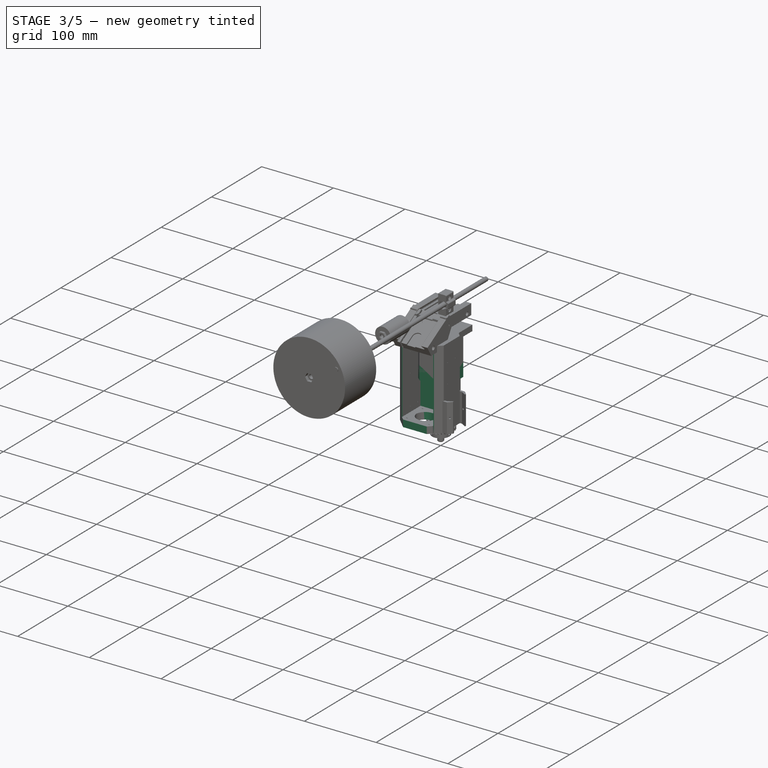
[diagram: stage 3 of 5 — iso view after this stage's code; geometry added in this stage tinted green]
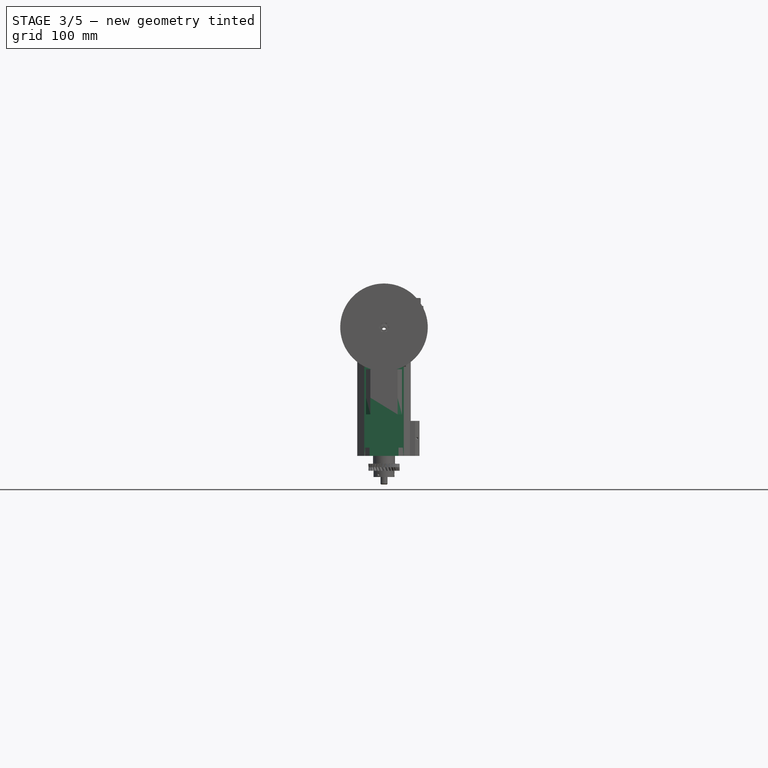
[diagram: stage 3 of 5 — front view after this stage's code; geometry added in this stage tinted green]
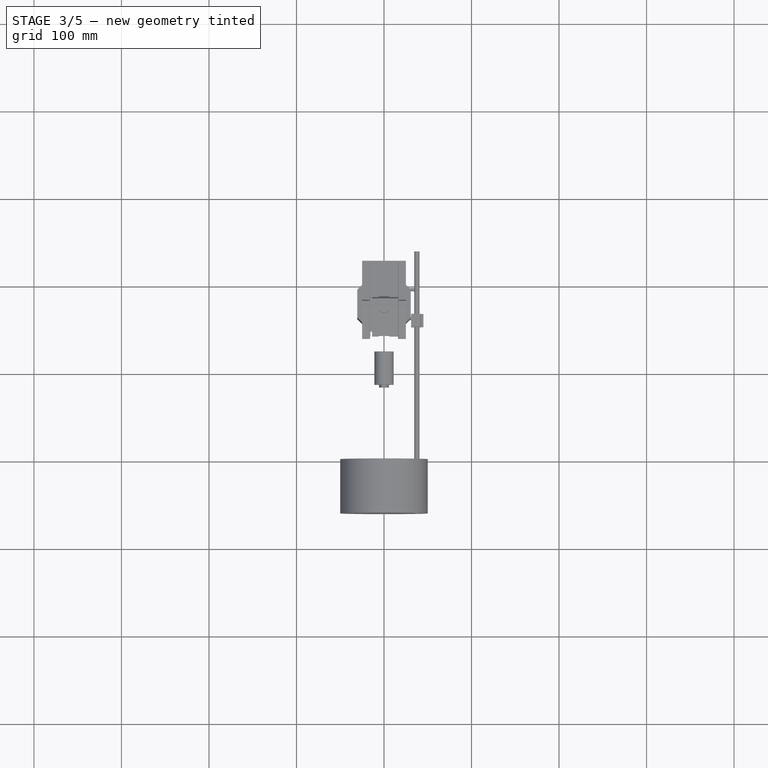
[diagram: stage 3 of 5 — top view after this stage's code; geometry added in this stage tinted green]
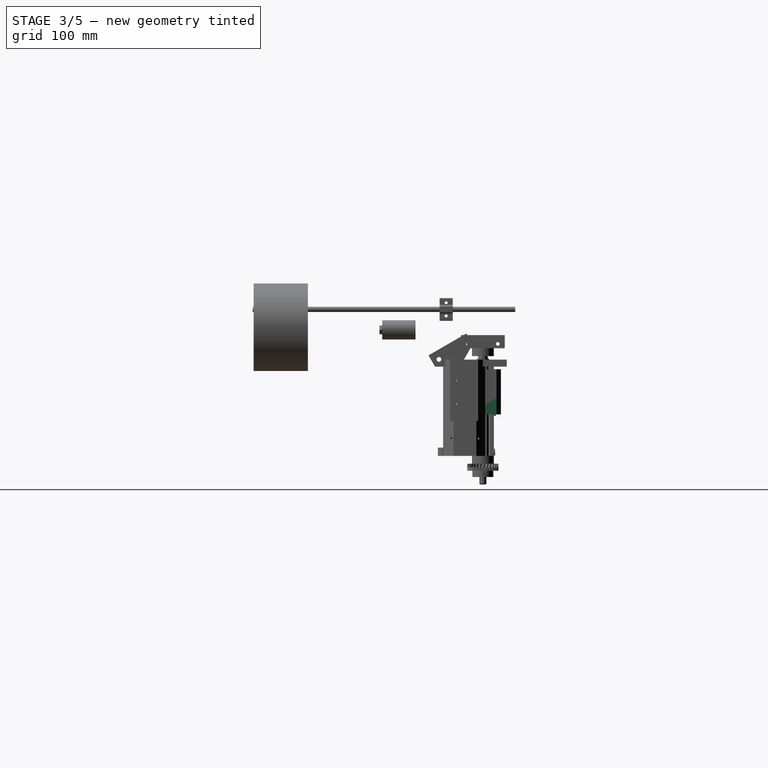
[diagram: stage 3 of 5 — right view after this stage's code; geometry added in this stage tinted green]
FEATURE [App::Part] Part008  label="NEAM17  motor- 40mm"
  Group = -> [Chamfer,Fusion091,Box009,Cylinder003,Cylinder002,Cylinder014005153,Cylinder004,Cut061006]
  License = CC BY 3.0
  LicenseURL = http://creativecommons.org/licenses/by/3.0/
  Origin = -> Origin008
  Placement = pos=(0,0,-51.5) rot=(0,0,1;0rad)
FEATURE [Part::Box] Box010  label="Krychle009"
  AttacherType = Attacher::AttachEngine3D
  Height = 10
  Length = 43
  Placement = pos=(-21.5,-20.5,0) rot=(0,0,1;0rad)
  Width = 42
FEATURE [Part::Chamfer] Chamfer001
  Base = -> Box010
  Edges = 2 edges r=5: [Edge1,Edge5]
FEATURE [Part::Cylinder] Cylinder014005154  label="Válec151"
  Angle = 360
  AttacherType = Attacher::AttachEngine3D
  Height = 50
  Placement = pos=(-15.5,15.5,0) rot=(0,0,1;0rad)
  Radius = 1.6
FEATURE [Part::Cylinder] Cylinder014005155  label="Válec152"
  Angle = 360
  AttacherType = Attacher::AttachEngine3D
  Height = 50
  Placement = pos=(15.5,15.5,0) rot=(0,0,1;0rad)
  Radius = 1.6
FEATURE [Part::Cylinder] Cylinder014005156  label="dira stred001"
  Angle = 360
  AttacherType = Attacher::AttachEngine3D
  Height = 50
  Radius = 13
FEATURE [Part::Cylinder] Cylinder014005157  label="Válec153"
  Angle = 360
  AttacherType = Attacher::AttachEngine3D
  Height = 50
  Placement = pos=(-15.5,-15.5,0) rot=(0,0,1;0rad)
  Radius = 1.6
FEATURE [Part::Cylinder] Cylinder014005158  label="Válec154"
  Angle = 360
  AttacherType = Attacher::AttachEngine3D
  Height = 50
  Placement = pos=(15.5,-15.5,0) rot=(0,0,1;0rad)
  Radius = 1.6
FEATURE [Part::MultiFuse] Fusion092  label="diry001"
  Shapes = -> [Cylinder014005154,Cylinder014005155,Cylinder014005156,Cylinder014005157,Cylinder014005158]
FEATURE [Part::Cut] Cut061007  label="Horni ucjyt"
  Base = -> Chamfer001
  Placement = pos=(0,0,49.5) rot=(0,0,1;0rad)
  Tool = -> Fusion092
FEATURE [Part::Box] Box  label="deska"
  AttacherType = Attacher::AttachEngine3D
  Height = 111
  Length = 43
  Placement = pos=(-21.5,21.5,-51.5) rot=(0,0,1;0rad)
  Width = 10
FEATURE [Part::Box] Box012  label="deska001"
  AttacherType = Attacher::AttachEngine3D
  Height = 111
  Length = 9
  Placement = pos=(-30.5,-14.5,-51.5) rot=(0,0,1;0rad)
  Width = 46
FEATURE [Part::Box] Box013  label="deska002"
  AttacherType = Attacher::AttachEngine3D
  Height = 111
  Length = 9
  Placement = pos=(21.5,-14.5,-51.5) rot=(0,0,1;0rad)
  Width = 46
FEATURE [Part::MultiFuse] Fusion094  label="motor drazak"
  Shapes = -> [Cut061007,Box013,Box,Box012]
FEATURE [Part::Box] Box016  label="Krychle012"
  AttacherType = Attacher::AttachEngine3D
  Height = 112
  Length = 38
  Placement = pos=(-19,32,-52) rot=(0,0,1;0rad)
  Width = 10
FEATURE [Part::Box] Box017  label="Krychle013"
  AttacherType = Attacher::AttachEngine3D
  Height = 112
  Length = 38
  Placement = pos=(-19,34,-52) rot=(0,0,1;0rad)
  Width = 6
FEATURE [Part::Cut] Cut061010
  Base = -> Box016
  Tool = -> Box017
FEATURE [Sketcher::SketchObject] Sketch002
  MapMode = 5
  Placement = pos=(0,0,60) rot=(0,0,1;0rad)
  sketch-geometry (6):
    g0: LineSegment StartX=-18.9734 StartY=34.0308 StartZ=0 EndX=-16.0253 EndY=36.9748 EndZ=0
    g1: LineSegment StartX=18.996 StartY=34.0308 StartZ=0 EndX=16.044 EndY=36.9748 EndZ=0
    g2: LineSegment StartX=18.996 StartY=34.0308 StartZ=0 EndX=-18.9734 EndY=34.0308 EndZ=0
    g3: LineSegment StartX=-18.9734 StartY=40.0311 StartZ=0 EndX=-16.0253 EndY=36.9748 EndZ=0
    g4: LineSegment StartX=16.044 StartY=36.9748 StartZ=0 EndX=18.9109 EndY=40.0311 EndZ=0
    g5: LineSegment StartX=-18.9734 StartY=40.0311 StartZ=0 EndX=18.9109 EndY=40.0311 EndZ=0
  constraints (7):
    c: Coincident(g2,g1)
    c: Coincident(g2,g0)
    c: Horizontal(g2)
    c: Coincident(g3,g0)
    c: Coincident(g5,g3)
    c: Coincident(g5,g4)
    c: Horizontal(g5)
FEATURE [Part::Extrusion] Extrude010
  Base = -> Sketch002
  Dir = (0,0,1)
  DirMode = 2
  FaceMakerClass = Part::FaceMakerBullseye
  LengthFwd = -112
  LengthRev = 0
  Solid = true
  Symmetric = false
FEATURE [Part::MultiFuse] Fusion096  label="Arca plate base001"
  Placement = pos=(0,-0.5,0) rot=(0,0,1;0rad)
  Shapes = -> [Extrude010,Cut061010]
FEATURE [Part::Cylinder] Cylinder014005164  label="DIRA8,2"
  Angle = 360
  AttacherType = Attacher::AttachEngine3D
  Height = 200
  Placement = pos=(0,29,-100) rot=(0,0,1;0rad)
  Radius = 4.2
FEATURE [Part::Cylinder] Cylinder014005165  label="Válec160"
  Angle = 360
  AttacherType = Attacher::AttachEngine3D
  Height = 10
  Placement = pos=(0,43,54.5) rot=(1,0,0;1.5708rad)
  Radius = 4
FEATURE [Part::Cylinder] Cylinder014005166  label="Válec161"
  Angle = 360
  AttacherType = Attacher::AttachEngine3D
  Height = 10
  Placement = pos=(0,43,-47) rot=(1,0,0;1.5708rad)
  Radius = 4
FEATURE [Part::MultiFuse] Fusion098  label="drzak s arca"
  Shapes = -> [Fusion094,Fusion096,Cylinder014005165,Cylinder014005166]
FEATURE [Part::Cylinder] Cylinder014005167  label="Válec162"
  Angle = 360
  AttacherType = Attacher::AttachEngine3D
  Height = 65
  Placement = pos=(-32,0,0) rot=(0,1,0;1.5708rad)
  Radius = 1.35
FEATURE [Part::Cylinder] Cylinder014005168  label="Válec163"
  Angle = 360
  AttacherType = Attacher::AttachEngine3D
  Height = 65
  Placement = pos=(-32,0,42) rot=(0,1,0;1.5708rad)
  Radius = 1.35
FEATURE [Part::Cylinder] Cylinder014005169  label="Válec164"
  Angle = 360
  AttacherType = Attacher::AttachEngine3D
  Height = 65
  Placement = pos=(-32,0,-27) rot=(0,1,0;1.5708rad)
  Radius = 1.35
FEATURE [Part::Box] Box024  label="Krychle017"
  AttacherType = Attacher::AttachEngine3D
  Height = 112
  Length = 38
  Placement = pos=(-19,32,-52) rot=(0,0,1;0rad)
  Width = 10
FEATURE [Part::Box] Box025  label="Krychle018"
  AttacherType = Attacher::AttachEngine3D
  Height = 112
  Length = 38
  Placement = pos=(-19,34,-52) rot=(0,0,1;0rad)
  Width = 6
FEATURE [Part::Cut] Cut061015
  Base = -> Box024
  Tool = -> Box025
FEATURE [Sketcher::SketchObject] Sketch004
  MapMode = 5
  Placement = pos=(0,0,60) rot=(0,0,1;0rad)
  sketch-geometry (6):
    g0: LineSegment StartX=-18.9734 StartY=34.0308 StartZ=0 EndX=-16.0253 EndY=36.9748 EndZ=0
    g1: LineSegment StartX=18.996 StartY=34.0308 StartZ=0 EndX=16.044 EndY=36.9748 EndZ=0
    g2: LineSegment StartX=18.996 StartY=34.0308 StartZ=0 EndX=-18.9734 EndY=34.0308 EndZ=0
    g3: LineSegment StartX=-18.9734 StartY=40.0311 StartZ=0 EndX=-16.0253 EndY=36.9748 EndZ=0
    g4: LineSegment StartX=16.044 StartY=36.9748 StartZ=0 EndX=18.9109 EndY=40.0311 EndZ=0
    g5: LineSegment StartX=-18.9734 StartY=40.0311 StartZ=0 EndX=18.9109 EndY=40.0311 EndZ=0
  constraints (7):
    c: Coincident(g2,g1)
    c: Coincident(g2,g0)
    c: Horizontal(g2)
    c: Coincident(g3,g0)
    c: Coincident(g5,g3)
    c: Coincident(g5,g4)
    c: Horizontal(g5)
FEATURE [Part::Extrusion] Extrude012
  Base = -> Sketch004
  Dir = (0,0,1)
  DirMode = 2
  FaceMakerClass = Part::FaceMakerBullseye
  LengthFwd = -112
  LengthRev = 0
  Solid = true
  Symmetric = false
FEATURE [Part::MultiFuse] Fusion108  label="Arca plate base003"
  Placement = pos=(0,-6.5,115.5) rot=(-1,0,0;1.5708rad)
  Shapes = -> [Extrude012,Cut061015]
FEATURE [Part::Box] Box026  label="Krychle019"
  AttacherType = Attacher::AttachEngine3D
  Height = 15
  Length = 50
  Placement = pos=(-25,-25,64) rot=(0,0,1;0rad)
  Width = 50
FEATURE [Part::Cut] Cut061016  label="Arca sw 1"
  Base = -> Box026
  Tool = -> Fusion108
FEATURE [Part::Box] Box027  label="Krychle020"
  AttacherType = Attacher::AttachEngine3D
  Height = 15
  Length = 2
  Placement = pos=(-15.5,-26,61) rot=(0,0,1;0rad)
  Width = 52
FEATURE [Part::Cut] Cut061017
  Base = -> Cut061016
  Tool = -> Box027
FEATURE [Sketcher::SketchObject] Sketch005
  MapMode = 45
  Placement = pos=(44.88,21.011,5.40003) rot=(0.707106,0.001666,0.707106;3.13826rad)
  sketch-geometry (7):
    g0: LineSegment StartX=5.21891 StartY=0.0364138 StartZ=0 EndX=2.62121 EndY=4.46293 EndZ=0
    g1: LineSegment StartX=2.62121 StartY=4.46293 StartZ=0 EndX=-2.51111 EndY=4.42651 EndZ=0
    g2: LineSegment StartX=-2.51111 StartY=4.42651 StartZ=0 EndX=-5.04574 EndY=-0.0364138 EndZ=0
    g3: LineSegment StartX=-5.04574 StartY=-0.0364138 StartZ=0 EndX=-2.44804 EndY=-4.46293 EndZ=0
    g4: LineSegment StartX=-2.44804 StartY=-4.46293 StartZ=0 EndX=2.68428 EndY=-4.42651 EndZ=0
    g5: LineSegment StartX=2.68428 StartY=-4.42651 StartZ=0 EndX=5.21891 EndY=0.0364138 EndZ=0
    g6: Circle [constr] CenterX=0.0865834 CenterY=0 CenterZ=0 NormalX=0 NormalY=0 NormalZ=1 AngleXU=0 Radius=5.13245
  constraints (14):
    c: Coincident(g0,g1)
    c: Coincident(g1,g2)
    c: Coincident(g2,g3)
    c: Coincident(g3,g4)
    c: Coincident(g4,g5)
    c: Coincident(g5,g0)
    c: Equal(g0, g1-g5) x5
    c: PointOnObject(g0,g6)
    c: PointOnObject(g1,g6)
    c: PointOnObject(g2,g6)
    c: PointOnObject(g3,g6)
    c: PointOnObject(g4,g6)
    c: PointOnObject(g5,g6)
    c: PointOnObject(g6,g-1)
FEATURE [Part::RegularPolygon] RegularPolygon001  label="Pravidelný n-úhelník001"
  AttacherType = Attacher::AttachEngine3D
  Circumradius = 6
  Polygon = 6
FEATURE [Part::Extrusion] Extrude013
  Base = -> Sketch005
  Dir = (1,0,0)
  DirMode = 2
  FaceMakerClass = Part::FaceMakerBullseye
  LengthFwd = 5
  LengthRev = 0
  Placement = pos=(0,0,0.25) rot=(0,0,1;0rad)
  Solid = true
  Symmetric = false
FEATURE [Part::Extrusion] Extrude014
  Base = -> RegularPolygon001
  Dir = (0,0,1)
  DirMode = 2
  FaceMakerClass = Part::FaceMakerBullseye
  LengthFwd = 8
  LengthRev = 0
  Placement = pos=(0,0,13) rot=(0,0,1;0rad)
  Solid = true
  Symmetric = false
FEATURE [Part::Feature] Screw_solid048  label="M2x4-Screw (Solid)048"
  Placement = pos=(0,0,0) rot=(0,0,1;3.14159rad)
  shape: bbox 3.6 x 3.6 x 4 mm, 12 faces (baked)
FEATURE [Part::Feature] Screw_solid049  label="M2x4-Screw (Solid)049"
  Placement = pos=(0,0,0) rot=(0,0,-1;1.0472rad)
  shape: bbox 3.6 x 3.6 x 4 mm, 12 faces (baked)
FEATURE [Part::Cylinder] Cylinder014005181  label="Válec175"
  Angle = 360
  AttacherType = Attacher::AttachEngine3D
  Height = 6
  Placement = pos=(0,0,7) rot=(0,0,1;0rad)
  Radius = 6.5
FEATURE [Part::Cylinder] Cylinder014005182  label="Válec176"
  Angle = 360
  AttacherType = Attacher::AttachEngine3D
  Height = 22
  Radius = 2.6
FEATURE [Part::MultiFuse] Fusion110
  Shapes = -> [Cylinder014005182,Extrude013]
FEATURE [Part::Cylinder] Cylinder014005183  label="Válec177"
  Angle = 360
  AttacherType = Attacher::AttachEngine3D
  Height = 7
  Radius = 2.6
FEATURE [Part::Cylinder] Cylinder014005184  label="Unasec vrch009"
  Angle = 360
  AttacherType = Attacher::AttachEngine3D
  Height = 1.5
  Placement = pos=(0,0,5.5) rot=(0,0,1;0rad)
  Radius = 15.5
FEATURE [Part::Feature] Cylinder014005185  label="Válec178"
  shape: bbox 5 x 5 x 7 mm, 3 faces (baked)
FEATURE [Part::Feature] Cylinder014005186  label="Válec179"
  Placement = pos=(0,0,0) rot=(0,0,1;2.0944rad)
  shape: bbox 5 x 5 x 7 mm, 3 faces (baked)
FEATURE [Part::Feature] Screw_solid050  label="M2x4-Screw (Solid)050"
  Placement = pos=(0,0,0) rot=(0,0,1;1.0472rad)
  shape: bbox 3.6 x 3.6 x 4 mm, 12 faces (baked)
FEATURE [Part::MultiFuse] Fusion112  label="srouby017"
  Placement = pos=(0,0,0.5) rot=(0,0,1;0rad)
  Shapes = -> [Screw_solid050,Screw_solid049,Screw_solid048]
FEATURE [Part::Cut] Cut061020  label="unasec vrch009"
  Base = -> Cylinder014005184
  Tool = -> Fusion112
FEATURE [Part::Feature] Cylinder014005187  label="Válec180"
  Placement = pos=(0,0,0) rot=(0,0,1;4.18879rad)
  shape: bbox 5 x 5 x 7 mm, 3 faces (baked)
FEATURE [Part::MultiFuse] Fusion109
  Shapes = -> [Cylinder014005187,Cylinder014005185,Cylinder014005186]
FEATURE [Part::MultiFuse] Fusion113
  Placement = pos=(0,0,1) rot=(0,0,1;0rad)
  Shapes = -> [Fusion109,Cylinder014005183]
FEATURE [Part::Cut] Cut061019  label="Unasec Vrch zaklad009"
  Base = -> Cut061020
  Tool = -> Fusion113
FEATURE [Part::MultiFuse] Fusion111
  Shapes = -> [Cut061019,Cylinder014005181,Extrude014]
FEATURE [Part::Cut] Cut061018  label="unasec top001"
  Base = -> Fusion111
  Placement = pos=(0,0,42) rot=(0,0,1;0rad)
  Tool = -> Fusion110
FEATURE [Part::Cylinder] Cylinder014005188  label="Válec181"
  Angle = 360
  AttacherType = Attacher::AttachEngine3D
  Height = 10
  Placement = pos=(0,0,55) rot=(0,0,1;0rad)
  Radius = 12.5
FEATURE [Part::Cylinder] Cylinder014005189  label="Válec182"
  Angle = 360
  AttacherType = Attacher::AttachEngine3D
  Height = 55
  Placement = pos=(0,0,35) rot=(0,0,1;0rad)
  Radius = 2.7
FEATURE [Part::Cylinder] Cylinder014005190  label="Válec183"
  Angle = 360
  AttacherType = Attacher::AttachEngine3D
  Height = 8
  Placement = pos=(0,0,66) rot=(0,0,1;0rad)
  Radius = 4.5
FEATURE [Part::MultiFuse] Fusion114
  Shapes = -> [Cylinder014005188,Cut061017]
FEATURE [Part::MultiFuse] Fusion115
  Shapes = -> [Cylinder014005189,Cut061018,Cylinder014005190]
FEATURE [Part::Cut] Cut061021
  Base = -> Fusion114
  Tool = -> Fusion115
FEATURE [Part::Cylinder] Cylinder014005191  label="Válec184"
  Angle = 360
  AttacherType = Attacher::AttachEngine3D
  Height = 60
  Placement = pos=(-30,17,69) rot=(0,1,0;1.5708rad)
  Radius = 2.7
FEATURE [Part::Cylinder] Cylinder014005192  label="Válec185"
  Angle = 360
  AttacherType = Attacher::AttachEngine3D
  Height = 60
  Placement = pos=(-30,-17,69) rot=(0,1,0;1.5708rad)
  Radius = 2.7
FEATURE [Part::FeaturePython] Nut005  label="M2-Nut"  # Fasteners workbench fastener (typed FeaturePython)
  Placement = pos=(22,17,69) rot=(0,1,0;1.5708rad)
  diameter = 2
  invert = false
  matchOuter = false
  offset = 0
  thread = false
  type = 1
FEATURE [Part::FeaturePython] Nut006  label="M2-Nut001"  # Fasteners workbench fastener (typed FeaturePython)
  Placement = pos=(22,-17,69) rot=(0,1,0;1.5708rad)
  diameter = 2
  invert = false
  matchOuter = false
  offset = 0
  thread = false
  type = 1
FEATURE [Part::MultiFuse] Fusion116
  Shapes = -> [Cylinder014005191,Cylinder014005192,Nut005,Nut006]
FEATURE [Part::Cut] Cut061022
  Base = -> Cut061021
  Tool = -> Fusion116
FEATURE [Part::Cylinder] Cylinder014005324  label="Válec300"
  Angle = 360
  AttacherType = Attacher::AttachEngine3D
  Height = 2.5
  Placement = pos=(0,-12,71) rot=(0,0,1;0rad)
  Radius = 6
FEATURE [Part::Box] Box033  label="Krychle026"
  AttacherType = Attacher::AttachEngine3D
  Height = 2.5
  Length = 12
  Placement = pos=(-6,-25,71) rot=(0,0,1;0rad)
  Width = 13
FEATURE [Part::MultiFuse] Fusion188
  Placement = pos=(0,-4,1) rot=(0,0,1;0rad)
  Shapes = -> [Box033,Cylinder014005324]
FEATURE [Part::Cylinder] Cylinder014005325  label="Válec301"
  Angle = 360
  AttacherType = Attacher::AttachEngine3D
  Height = 2.5
  Placement = pos=(0,-12,71) rot=(0,0,1;0rad)
  Radius = 6
FEATURE [Part::Box] Box034  label="Krychle027"
  AttacherType = Attacher::AttachEngine3D
  Height = 2.5
  Length = 12
  Placement = pos=(-6,-25,71) rot=(0,0,1;0rad)
  Width = 13
FEATURE [Part::MultiFuse] Fusion189
  Placement = pos=(0,4,1) rot=(0,0,1;3.14159rad)
  Shapes = -> [Box034,Cylinder014005325]
FEATURE [Part::MultiFuse] Fusion190
  Shapes = -> [Fusion188,Fusion189]
FEATURE [Part::Cut] Cut061076  label="Swis Arca1"
  Base = -> Cut061022
  Tool = -> Fusion190
FEATURE [Part::Box] Box041  label="Krychle034"
  AttacherType = Attacher::AttachEngine3D
  Height = 2
  Length = 80
  Placement = pos=(-40,-30,59) rot=(0,0,1;0rad)
  Width = 80
FEATURE [Part::Box] Box042  label="Krychle035"
  AttacherType = Attacher::AttachEngine3D
  Height = 2
  Length = 80
  Placement = pos=(-40,-30,-53) rot=(0,0,1;0rad)
  Width = 80
FEATURE [Part::MultiFuse] Fusion203  label="Orez"
  Shapes = -> [Box041,Box042]
FEATURE [App::Part] Part019  label="DriveA"
  Group = -> [Part008,Part007]
  License = CC BY 3.0
  LicenseURL = http://creativecommons.org/licenses/by/3.0/
  Origin = -> Origin019
  Placement = pos=(0,-29,0) rot=(1,0,0;3.14159rad)
FEATURE [App::Part] Part021  label="Weights"
  Group = -> [Fusion217,Nut013,Screw006_solid,Screw006_solid003,Screw006_solid001,Screw006_solid002,Cut061093,Cylinder014005351,Cylinder014005347,Cylinder014005346,Cylinder014005348,Fusion219,Cut061094,Nut014,Screw006_solid007,Screw006_solid004,Screw006_solid006,Screw006_solid005,Cylinder014005350,Cylinder014005349,Cylinder014005352,Fusion218,Fusion220,Cut061095]
  License = CC BY 3.0
  LicenseURL = http://creativecommons.org/licenses/by/3.0/
  Origin = -> Origin021
  Placement = pos=(37.5,0,21.5) rot=(0,0,1;0rad)
FEATURE [Part::Cylinder] Cylinder014005356  label="Válec322"
  Angle = 360
  AttacherType = Attacher::AttachEngine3D
  Height = 200
  Placement = pos=(0,0,-100) rot=(0,0,1;0rad)
  Radius = 3.9
FEATURE [Part::Cylinder] Cylinder014005366  label="Válec331"
  Angle = 360
  AttacherType = Attacher::AttachEngine3D
  Height = 12.5
  Placement = pos=(0,0,-68) rot=(0,0,1;0rad)
  Radius = 12.5
FEATURE [Part::Cylinder] Cylinder014005367  label="Válec332"
  Angle = 360
  AttacherType = Attacher::AttachEngine3D
  Height = 11.5
  Placement = pos=(0,0,-76.1) rot=(0,0,1;0rad)
  Radius = 11
FEATURE [Part::Cylinder] Cylinder014005368  label="Válec333"
  Angle = 360
  AttacherType = Attacher::AttachEngine3D
  Height = 9
  Placement = pos=(0,0,-77) rot=(0,0,1;0rad)
  Radius = 4.5
FEATURE [Part::Cylinder] Cylinder014005369  label="Lozisko1"
  Angle = 360
  AttacherType = Attacher::AttachEngine3D
  Height = 4
  Placement = pos=(0,29,-52.1) rot=(0,0,1;0rad)
  Radius = 7
FEATURE [Part::Cylinder] Cylinder014005370  label="Lozisko002"
  Angle = 360
  AttacherType = Attacher::AttachEngine3D
  Height = 4
  Placement = pos=(0,29,56) rot=(0,0,1;0rad)
  Radius = 7
FEATURE [Part::FeaturePython] InvoluteGear020  # WARN: FeaturePython — macro-defined, semantics opaque (R4)
  Placement = pos=(0,0,-71.9) rot=(0,0,1;0rad)
  backlash = 0
  beta = -20
  clearance = 0.25
  double_helix = true
  head = 0
  height = 8.2
  module = 1.16
  numpoints = 6
  pressure_angle = 20
  reversed_backlash = false
  shift = 0
  simple = false
  teeth = 20
  undercut = false
FEATURE [Part::Cylinder] Cylinder014005365  label="Válec330"
  Angle = 360
  AttacherType = Attacher::AttachEngine3D
  Height = 15
  Placement = pos=(0,0,-76.1) rot=(0,0,1;0rad)
  Radius = 5
FEATURE [Part::MultiFuse] Fusion229
  Shapes = -> [Cylinder014005365,Cylinder014005366,InvoluteGear020]
FEATURE [App::Part] Part022  label="Pinion20 A"
  Group = -> [Sketch013,Extrude030,RegularPolygon005,Extrude031,Cut061100,Cut061099,Cut061098,Cylinder014005361,Cylinder014005360,Cylinder014005368,Cylinder014005363,Cylinder014005364,Cylinder014005365,Cylinder014005366,Cylinder014005362,Screw_solid090,Screw_solid092,Cylinder014005358,Cylinder014005357,Screw_solid091,Cylinder014005359,Fusion225,Fusion224,Fusion228,Fusion223,Fusion222,Fusion226,InvoluteGear020,+2 more]
  License = CC BY 3.0
  LicenseURL = http://creativecommons.org/licenses/by/3.0/
  Origin = -> Origin022
  Placement = pos=(0,-29,0) rot=(0,0,1;0.017453rad)
FEATURE [Part::MultiFuse] Fusion230  label="DIRA OSA"
  Shapes = -> [Cylinder014005164,Cylinder014005369,Cylinder014005370]
FEATURE [Part::Cylinder] Cylinder014005371  label="Lozisko003"
  Angle = 360
  AttacherType = Attacher::AttachEngine3D
  Height = 4
  Placement = pos=(0,0,48) rot=(0,0,1;0rad)
  Radius = 7
FEATURE [Part::Cylinder] Cylinder014005372  label="Lozisko004"
  Angle = 360
  AttacherType = Attacher::AttachEngine3D
  Height = 4
  Placement = pos=(0,0,-60) rot=(0,0,1;0rad)
  Radius = 7
FEATURE [Part::Cylinder] Cylinder014005373  label="Válec334"
  Angle = 360
  AttacherType = Attacher::AttachEngine3D
  Height = 65
  Placement = pos=(-32,15,-27) rot=(0,1,0;1.5708rad)
  Radius = 1.35
FEATURE [Part::Cylinder] Cylinder014005374  label="Válec335"
  Angle = 360
  AttacherType = Attacher::AttachEngine3D
  Height = 65
  Placement = pos=(-32,15,42) rot=(0,1,0;1.5708rad)
  Radius = 1.35
FEATURE [Part::MultiFuse] Fusion231  label="diry 2,8"
  Shapes = -> [Cylinder014005374,Cylinder014005167,Cylinder014005168,Cylinder014005169,Cylinder014005373]
FEATURE [Part::MultiFuse] Fusion232  label="Diry orez"
  Shapes = -> [Fusion231,Fusion230,Fusion203]
FEATURE [Part::Cut] Cut061102  label="Blok A"
  Base = -> Fusion098
  Tool = -> Fusion232
FEATURE [Part::Chamfer] Chamfer008  label="Axis 1"
  Base = -> Cut061102
  Edges = 4 edges r=8: [Edge132,Edge133,Edge152,Edge153]
  Placement = pos=(0,-31,0) rot=(0,1,0;3.14159rad)
FEATURE [App::Part] Part023  label="Axis 002"
  Group = -> [Extrude010,Chamfer001,Sketch002,Fusion094,Fusion092,Fusion096,Fusion098,Fusion203,Cut061010,Cut061007,Cylinder014005154,Box010,Cylinder014005158,Cylinder014005157,Box,Cylinder014005156,Cylinder014005155,Box013,Box012,Box016,Box017,Cylinder014005166,Cylinder014005167,Cylinder014005165,Cylinder014005164,Cylinder014005168,Cylinder014005169,Box041,Box042,Cylinder014005370,Cylinder014005369,Fusion230,+6 more]
  License = CC BY 3.0
  LicenseURL = http://creativecommons.org/licenses/by/3.0/
  Origin = -> Origin023
FEATURE [Part::FeaturePython] Nut  label="M8-Nut"  # Fasteners workbench fastener (typed FeaturePython)
  Placement = pos=(0,0,-80) rot=(0,0,1;0rad)
  diameter = 9
  invert = false
  matchOuter = false
  offset = 0
  thread = false
  type = 3
FEATURE [Part::Cylinder] Cylinder014005375  label="Válec336"
  Angle = 360
  AttacherType = Attacher::AttachEngine3D
  Height = 15
  Placement = pos=(0,0,55) rot=(0,0,1;0rad)
  Radius = 11
FEATURE [Part::Cylinder] Cylinder014005376  label="Válec337"
  Angle = 360
  AttacherType = Attacher::AttachEngine3D
  Height = 15
  Placement = pos=(0,0,52) rot=(0,0,1;0rad)
  Radius = 5.5
FEATURE [Part::MultiFuse] Fusion233
  Shapes = -> [Cylinder014005375,Cylinder014005376,Cut061076]
FEATURE [Part::FeaturePython] Screw008  label="M8x160-Screw001"  # Fasteners workbench fastener (typed FeaturePython)
  Placement = pos=(0,0,68.4) rot=(0,0,1;0rad)
  diameter = 9
  invert = false
  length = 16
  matchOuter = false
  offset = 0
  thread = false
  type = 13
FEATURE [Part::Cut] Cut061103  label="Swiss Acra V2"
  Base = -> Fusion233
  Tool = -> Screw008
FEATURE [App::Part] Part024  label="Swiss arca A"
  Group = -> [Extrude013,Extrude012,Extrude014,RegularPolygon001,Nut005,Nut006,Sketch004,Sketch005,Screw008,Fusion189,Fusion190,Fusion188,Fusion108,Fusion109,Fusion111,Fusion114,Fusion110,Fusion116,Fusion115,Fusion113,Fusion112,Cut061019,Cut061016,Cut061021,Cut061022,Cut061018,Cut061020,Cut061017,Cut061015,Screw_solid050,Screw_solid049,Cylinder014005185,Screw_solid048,Cylinder014005187,Cylinder014005186,Box025,+22 more]
  License = CC BY 3.0
  LicenseURL = http://creativecommons.org/licenses/by/3.0/
  Origin = -> Origin024
FEATURE [Part::Cylinder] Cylinder014005377  label="diist podl"
  Angle = 360
  AttacherType = Attacher::AttachEngine3D
  Height = 4
  Placement = pos=(0,0,-64) rot=(0,0,1;0rad)
  Radius = 5.5
FEATURE [Part::Cylinder] Cylinder014005378  label="diist podl001"
  Angle = 360
  AttacherType = Attacher::AttachEngine3D
  Height = 4
  Placement = pos=(0,0,-64) rot=(0,0,1;0rad)
  Radius = 4.2
FEATURE [Part::Cut] Cut061104  label="dist-11x8x4"
  Base = -> Cylinder014005377
  Tool = -> Cylinder014005378
FEATURE [Part::FeaturePython] Nut016  label="M8-Nut002"  # Fasteners workbench fastener (typed FeaturePython)
  Placement = pos=(0,0,-68) rot=(0,0,1;0rad)
  diameter = 9
  invert = false
  matchOuter = false
  offset = 0
  thread = false
  type = 3
FEATURE [Part::FeaturePython] InvoluteGear021  # WARN: FeaturePython — macro-defined, semantics opaque (R4)
  Placement = pos=(0,0,-72) rot=(0,0,1;0rad)
  backlash = 0
  beta = 20
  clearance = 0.25
  double_helix = true
  head = 0
  height = 8
  module = 1.16
  numpoints = 6
  pressure_angle = 20
  reversed_backlash = false
  shift = 0
  simple = false
  teeth = 27
  undercut = false
FEATURE [Part::MultiFuse] Fusion236
  Shapes = -> [Cylinder014005367,InvoluteGear021]
FEATURE [Sketcher::SketchObject] Sketch014
  MapMode = 5
  Placement = pos=(0,0,-64.6) rot=(0,0,1;0rad)
  Support = -> [Fusion236]
  sketch-geometry (7):
    g0: LineSegment StartX=-3.8831 StartY=6.55674 StartZ=0 EndX=-7.61986 EndY=-0.0844932 EndZ=0
    g1: LineSegment StartX=-7.61986 StartY=-0.0844932 StartZ=0 EndX=-3.73676 EndY=-6.64124 EndZ=0
    g2: LineSegment StartX=-3.73676 StartY=-6.64124 StartZ=0 EndX=3.8831 EndY=-6.55674 EndZ=0
    g3: LineSegment StartX=3.8831 StartY=-6.55674 StartZ=0 EndX=7.61986 EndY=0.0844932 EndZ=0
    g4: LineSegment StartX=7.61986 StartY=0.0844932 StartZ=0 EndX=3.73676 EndY=6.64124 EndZ=0
    g5: LineSegment StartX=3.73676 StartY=6.64124 StartZ=0 EndX=-3.8831 EndY=6.55674 EndZ=0
    g6: Circle [constr] CenterX=0 CenterY=0 CenterZ=0 NormalX=0 NormalY=0 NormalZ=1 AngleXU=0 Radius=7.62033
  constraints (14):
    c: Coincident(g0,g1)
    c: Coincident(g1,g2)
    c: Coincident(g2,g3)
    c: Coincident(g3,g4)
    c: Coincident(g4,g5)
    c: Coincident(g5,g0)
    c: Equal(g0, g1-g5) x5
    c: PointOnObject(g0,g6)
    c: PointOnObject(g1,g6)
    c: PointOnObject(g2,g6)
    c: PointOnObject(g3,g6)
    c: PointOnObject(g4,g6)
    c: PointOnObject(g5,g6)
    c: Coincident(g6,g-1)
FEATURE [Part::Extrusion] Extrude032
  Base = -> Sketch014
  Dir = (0,0,1)
  DirMode = 2
  FaceMakerClass = Part::FaceMakerBullseye
  LengthFwd = 5
  LengthRev = 0
  Placement = pos=(0,0,-5) rot=(0,0,1;0rad)
  Solid = true
  Symmetric = false
FEATURE [Part::MultiFuse] Fusion237
  Shapes = -> [Extrude032,Cylinder014005356]
FEATURE [Part::Cut] Cut061105  label="Gear A"
  Base = -> Fusion236
  Tool = -> Fusion237
FEATURE [Part::FeaturePython] Screw009  label="M8x160-Screw002"  # Fasteners workbench fastener (typed FeaturePython)
  Placement = pos=(0,0,68.4) rot=(0,0,1;0rad)
  diameter = 9
  invert = false
  length = 16
  matchOuter = false
  offset = 0
  thread = false
  type = 13
FEATURE [Part::Cylinder] Cylinder014005394  label="Válec349"
  Angle = 360
  AttacherType = Attacher::AttachEngine3D
  Height = 10
  Placement = pos=(0,0,-3) rot=(0,0,1;0rad)
  Radius = 7
FEATURE [Part::Cylinder] Cylinder014005395  label="Válec350"
  Angle = 360
  AttacherType = Attacher::AttachEngine3D
  Height = 7.5
  Placement = pos=(0,0,-7) rot=(0,0,1;0rad)
  Radius = 6.5
FEATURE [Sketcher::SketchObject] Sketch016
  MapMode = 45
  Placement = pos=(44.88,21.011,5.40003) rot=(0.707106,0.001666,0.707106;3.13826rad)
  sketch-geometry (7):
    g0: LineSegment StartX=5 StartY=0 StartZ=0 EndX=2.5 EndY=4.33013 EndZ=0
    g1: LineSegment StartX=2.5 StartY=4.33013 StartZ=0 EndX=-2.5 EndY=4.33013 EndZ=0
    g2: LineSegment StartX=-2.5 StartY=4.33013 StartZ=0 EndX=-5 EndY=0 EndZ=0
    g3: LineSegment StartX=-5 StartY=0 StartZ=0 EndX=-2.5 EndY=-4.33013 EndZ=0
    g4: LineSegment StartX=-2.5 StartY=-4.33013 StartZ=0 EndX=2.5 EndY=-4.33013 EndZ=0
    g5: LineSegment StartX=2.5 StartY=-4.33013 StartZ=0 EndX=5 EndY=0 EndZ=0
    g6: Circle [constr] CenterX=0 CenterY=0 CenterZ=0 NormalX=0 NormalY=0 NormalZ=1 AngleXU=0 Radius=5
  constraints (14):
    c: Coincident(g0,g1)
    c: Coincident(g1,g2)
    c: Coincident(g2,g3)
    c: Coincident(g3,g4)
    c: Coincident(g4,g5)
    c: Coincident(g5,g0)
    c: Equal(g0, g1-g5) x5
    c: PointOnObject(g0,g6)
    c: PointOnObject(g1,g6)
    c: PointOnObject(g2,g6)
    c: PointOnObject(g3,g6)
    c: PointOnObject(g4,g6)
    c: PointOnObject(g5,g6)
    c: PointOnObject(g6,g-1)
FEATURE [Part::Extrusion] Extrude037
  Base = -> Sketch016
  Dir = (1,0,0)
  DirMode = 2
  FaceMakerClass = Part::FaceMakerBullseye
  LengthFwd = 5
  LengthRev = 0
  Placement = pos=(0,0,0.25) rot=(0,0,1;0rad)
  Solid = true
  Symmetric = false
FEATURE [Part::FeaturePython] InvoluteGear023  # WARN: FeaturePython — macro-defined, semantics opaque (R4)
  backlash = 0
  beta = 0
  clearance = 0.25
  double_helix = false
  head = 0
  height = 5.5
  module = 1.2
  numpoints = 6
  pressure_angle = 20
  reversed_backlash = false
  shift = 0
  simple = false
  teeth = 27
  undercut = false
FEATURE [Part::FeaturePython] InvoluteGear024  # WARN: FeaturePython — macro-defined, semantics opaque (R4)
  backlash = 0
  beta = 0
  clearance = 0.25
  double_helix = false
  head = 0
  height = 5.5
  module = 1.2
  numpoints = 6
  pressure_angle = 20
  reversed_backlash = false
  shift = 0
  simple = false
  teeth = 27
  undercut = false
FEATURE [Part::Feature] Cylinder014005396  label="Válec351"
  shape: bbox 5 x 5 x 7 mm, 3 faces (baked)
FEATURE [Part::Feature] Cylinder014005397  label="Válec352"
  Placement = pos=(0,0,0) rot=(0,0,1;4.18879rad)
  shape: bbox 16 x 16 x 10 mm, 3 faces (baked)
FEATURE [Part::Feature] Cylinder014005398  label="Válec353"
  Placement = pos=(0,0,0) rot=(0,0,1;4.18879rad)
  shape: bbox 5 x 5 x 7 mm, 3 faces (baked)
FEATURE [Part::Feature] Screw_solid093  label="M2x4-Screw (Solid)093"
  Placement = pos=(0,0,0) rot=(0,0,1;1.0472rad)
  shape: bbox 3.6 x 3.6 x 4 mm, 12 faces (baked)
FEATURE [Part::Feature] Cylinder014005399  label="Válec354"
  Placement = pos=(0,0,0) rot=(0,0,1;2.0944rad)
  shape: bbox 5 x 5 x 7 mm, 3 faces (baked)
FEATURE [Part::Feature] Cut008_solid033  label="Planet034"
  Placement = pos=(0,0,0) rot=(0,0,1;4.18879rad)
  shape: bbox 12.9 x 13.1 x 5 mm, 57 faces (baked)
FEATURE [Part::Feature] Cut007_solid013  label="Sun014"
  shape: bbox 12.9 x 13.1 x 5 mm, 57 faces (baked)
FEATURE [Part::Feature] Cut008_solid034  label="Planet035"
  shape: bbox 12.9 x 13.1 x 5 mm, 57 faces (baked)
FEATURE [Part::Feature] Screw_solid094  label="M2x4-Screw (Solid)094"
  Placement = pos=(0,0,0) rot=(0,0,1;3.14159rad)
  shape: bbox 3.6 x 3.6 x 4 mm, 12 faces (baked)
FEATURE [Part::Feature] Screw_solid095  label="M2x4-Screw (Solid)095"
  Placement = pos=(0,0,0) rot=(0,0,1;3.14159rad)
  shape: bbox 3.6 x 3.6 x 4 mm, 12 faces (baked)
FEATURE [Part::Feature] Cylinder014005400  label="Válec355"
  Placement = pos=(0,0,0) rot=(0,0,1;2.0944rad)
  shape: bbox 16 x 16 x 10 mm, 3 faces (baked)
FEATURE [Part::Feature] Cylinder014005401  label="Válec356"
  Placement = pos=(0,0,0) rot=(0,0,1;2.0944rad)
  shape: bbox 16 x 16 x 10 mm, 3 faces (baked)
FEATURE [Part::Feature] Cut008_solid035  label="Planet036"
  Placement = pos=(0,0,0) rot=(0,0,1;4.18879rad)
  shape: bbox 12.9 x 13.1 x 5 mm, 57 faces (baked)
FEATURE [Part::Feature] Cylinder014005402  label="Válec357"
  Placement = pos=(0,0,0) rot=(0,0,1;2.0944rad)
  shape: bbox 5 x 5 x 7 mm, 3 faces (baked)
FEATURE [Part::Feature] Screw_solid096  label="M2x4-Screw (Solid)096"
  Placement = pos=(0,0,0) rot=(0,0,-1;1.0472rad)
  shape: bbox 3.6 x 3.6 x 4 mm, 12 faces (baked)
FEATURE [Part::Feature] Cylinder014005403  label="Válec358"
  shape: bbox 5 x 5 x 7 mm, 3 faces (baked)
FEATURE [Part::Feature] Screw_solid097  label="M2x4-Screw (Solid)097"
  Placement = pos=(0,0,0) rot=(0,0,-1;1.0472rad)
  shape: bbox 3.6 x 3.6 x 4 mm, 12 faces (baked)
FEATURE [Part::Feature] Screw_solid098  label="M2x4-Screw (Solid)098"
  Placement = pos=(0,0,0) rot=(0,0,1;3.14159rad)
  shape: bbox 3.6 x 3.6 x 4 mm, 12 faces (baked)
FEATURE [Part::Feature] Screw_solid099  label="M2x4-Screw (Solid)099"
  Placement = pos=(0,0,0) rot=(0,0,1;3.14159rad)
  shape: bbox 3.6 x 3.6 x 4 mm, 12 faces (baked)
FEATURE [Part::Feature] Cylinder014005404  label="Válec359"
  Placement = pos=(0,0,0) rot=(0,0,1;2.0944rad)
  shape: bbox 5 x 5 x 7 mm, 3 faces (baked)
FEATURE [Part::Feature] Screw_solid100  label="M2x4-Screw (Solid)100"
  Placement = pos=(0,0,0) rot=(0,0,-1;1.0472rad)
  shape: bbox 3.6 x 3.6 x 4 mm, 12 faces (baked)
FEATURE [Part::Feature] Cylinder014005405  label="Válec360"
  Placement = pos=(0,0,0) rot=(0,0,1;4.18879rad)
  shape: bbox 5 x 5 x 7 mm, 3 faces (baked)
FEATURE [Part::Feature] Cylinder014005406  label="Válec361"
  shape: bbox 5 x 5 x 7 mm, 3 faces (baked)
FEATURE [Part::Feature] Cut008_solid036  label="Planet037"
  Placement = pos=(0,0,0) rot=(0,0,1;2.0944rad)
  shape: bbox 12.9 x 13.1 x 5 mm, 57 faces (baked)
FEATURE [Part::Cylinder] Cylinder014005407  label="Válec362"
  Angle = 360
  AttacherType = Attacher::AttachEngine3D
  Height = 18
  Radius = 2.6
FEATURE [Part::Cylinder] Cylinder014005408  label="Válec363"
  Angle = 360
  AttacherType = Attacher::AttachEngine3D
  Height = 10
  Placement = pos=(10.5,0,0) rot=(0,0,1;0rad)
  Radius = 8
FEATURE [Part::Cylinder] Cylinder014005412  label="Válec367"
  Angle = 360
  AttacherType = Attacher::AttachEngine3D
  Height = 4
  Placement = pos=(0,0,7) rot=(0,0,1;0rad)
  Radius = 6.5
FEATURE [Part::Cylinder] Cylinder014005413  label="unasec stred012"
  Angle = 360
  AttacherType = Attacher::AttachEngine3D
  Height = 7
  Placement = pos=(0,0,-1.5) rot=(0,0,1;0rad)
  Radius = 13.5
FEATURE [Part::Cylinder] Cylinder014005414  label="Válec368"
  Angle = 360
  AttacherType = Attacher::AttachEngine3D
  Height = 15
  Placement = pos=(0,0,-8) rot=(0,0,1;0rad)
  Radius = 2.65
FEATURE [Part::Cylinder] Cylinder014005415  label="Válec369"
  Angle = 360
  AttacherType = Attacher::AttachEngine3D
  Height = 10
  Placement = pos=(0,0,-3) rot=(0,0,1;0rad)
  Radius = 7
FEATURE [Part::Cylinder] Cylinder014005416  label="unasec spodek027"
  Angle = 360
  AttacherType = Attacher::AttachEngine3D
  Height = 1.5
  Placement = pos=(0,0,-1.5) rot=(0,0,1;0rad)
  Radius = 15.5
FEATURE [Part::Cylinder] Cylinder014005418  label="Válec371"
  Angle = 360
  AttacherType = Attacher::AttachEngine3D
  Height = 7
  Placement = pos=(0,0,-7) rot=(0,0,1;0rad)
  Radius = 12
FEATURE [Part::FeaturePython] InvoluteGear025  # WARN: FeaturePython — macro-defined, semantics opaque (R4)
  backlash = 0
  beta = 0
  clearance = 0.25
  double_helix = false
  head = 0
  height = 5.5
  module = 1.2
  numpoints = 6
  pressure_angle = 20
  reversed_backlash = false
  shift = 0
  simple = false
  teeth = 27
  undercut = false
FEATURE [Part::Feature] Cylinder014005419  label="Válec372"
  Placement = pos=(0,0,0) rot=(0,0,1;4.18879rad)
  shape: bbox 16 x 16 x 10 mm, 3 faces (baked)
FEATURE [Part::Feature] Screw_solid101  label="M2x4-Screw (Solid)101"
  Placement = pos=(0,0,0) rot=(0,0,-1;1.0472rad)
  shape: bbox 3.6 x 3.6 x 4 mm, 12 faces (baked)
FEATURE [Part::Feature] Cut005_solid001_cs012
  Placement = pos=(0,0,-11.25) rot=(0,0,1;0rad)
  shape: bbox 41 x 41 x 3e-07 mm, 0 faces, 0 solids (baked)
FEATURE [Part::Extrusion] Extrude036  label="box013"
  Base = -> Cut005_solid001_cs012
  Dir = (0,0,1)
  DirMode = 2
  FaceMakerClass = Part::FaceMakerBullseye
  LengthFwd = 19
  LengthRev = 0
  Placement = pos=(0,0,-11.5) rot=(0,0,1;0rad)
  Solid = true
  Symmetric = false
FEATURE [Part::Feature] Screw_solid102  label="M2x4-Screw (Solid)102"
  Placement = pos=(0,0,0) rot=(0,0,1;1.0472rad)
  shape: bbox 3.6 x 3.6 x 4 mm, 12 faces (baked)
FEATURE [Part::MultiFuse] Fusion256
  Shapes = -> [Cylinder014005394,Cylinder014005408,Cylinder014005419,Cylinder014005400]
FEATURE [Part::MultiFuse] Fusion261
  Shapes = -> [Cut007_solid013,Cylinder014005395,Cylinder014005418]
FEATURE [Part::MultiFuse] Fusion267  label="srouby036"
  Shapes = -> [Screw_solid102,Screw_solid101,Screw_solid099]
FEATURE [Part::MultiFuse] Fusion269
  Shapes = -> [Cylinder014005405,Cylinder014005406,Cylinder014005402]
FEATURE [Part::Cylinder] Cylinder014005420  label="unasec spodek030"
  Angle = 360
  AttacherType = Attacher::AttachEngine3D
  Height = 1.5
  Placement = pos=(0,0,-1.5) rot=(0,0,1;0rad)
  Radius = 15.5
FEATURE [Part::MultiFuse] Fusion266
  Shapes = -> [Cylinder014005413,Cylinder014005420]
FEATURE [Part::Cut] Cut061112  label="unasec spodek025"
  Base = -> Fusion266
  Tool = -> Fusion256
FEATURE [Part::Cut] Cut061117  label="Uasec spodek012"
  Base = -> Cut061112
  Tool = -> Fusion267
FEATURE [Part::MultiFuse] Fusion255  label="Unasec spdek final011"
  Shapes = -> [Cut061117,Fusion269]
FEATURE [Part::Cylinder] Cylinder014005421  label="Válec373"
  Angle = 360
  AttacherType = Attacher::AttachEngine3D
  Height = 1.5
  Radius = 20
FEATURE [Part::Cylinder] Cylinder014005422  label="Válec374"
  Angle = 360
  AttacherType = Attacher::AttachEngine3D
  Height = 1.5
  Radius = 20
FEATURE [Part::Cylinder] Cylinder014005423  label="Válec375"
  Angle = 360
  AttacherType = Attacher::AttachEngine3D
  Height = 1.5
  Radius = 16
FEATURE [Part::Cut] Cut061119  label="Ring027"
  Base = -> Cylinder014005421
  Placement = pos=(0,0,-1.5) rot=(0,0,1;0rad)
  Tool = -> Cylinder014005423
FEATURE [Part::Cylinder] Cylinder014005424  label="Válec376"
  Angle = 360
  AttacherType = Attacher::AttachEngine3D
  Height = 1.5
  Radius = 16
FEATURE [Part::Cut] Cut061110  label="Ring025"
  Base = -> Cylinder014005422
  Placement = pos=(0,0,5.5) rot=(0,0,1;0rad)
  Tool = -> Cylinder014005424
FEATURE [Part::Cylinder] Cylinder014005425  label="Válec377"
  Angle = 360
  AttacherType = Attacher::AttachEngine3D
  Height = 5.5
  Radius = 20
FEATURE [Part::Cut] Cut061115  label="ring 013"
  Base = -> Cylinder014005425
  Tool = -> InvoluteGear024
FEATURE [Part::MultiFuse] Fusion265  label="Ring zaklad Fin011"
  Shapes = -> [Cut061115,Cut061110,Cut061119]
FEATURE [Part::Cylinder] Cylinder014005427  label="unasec stred013"
  Angle = 360
  AttacherType = Attacher::AttachEngine3D
  Height = 7
  Placement = pos=(0,0,-1.5) rot=(0,0,1;0rad)
  Radius = 13.5
FEATURE [Part::MultiFuse] Fusion248
  Shapes = -> [Cylinder014005427,Cylinder014005416]
FEATURE [Part::Cylinder] Cylinder014005428  label="Válec378"
  Angle = 360
  AttacherType = Attacher::AttachEngine3D
  Height = 10
  Placement = pos=(10.5,0,0) rot=(0,0,1;0rad)
  Radius = 8
FEATURE [Part::MultiFuse] Fusion257
  Shapes = -> [Cylinder014005415,Cylinder014005428,Cylinder014005397,Cylinder014005401]
FEATURE [Part::Cut] Cut061111  label="unasec spodek024"
  Base = -> Fusion248
  Tool = -> Fusion257
FEATURE [Part::Cylinder] Cylinder014005430  label="Unasec vrch020"
  Angle = 360
  AttacherType = Attacher::AttachEngine3D
  Height = 1.5
  Placement = pos=(0,0,5.5) rot=(0,0,1;0rad)
  Radius = 15.5
FEATURE [Part::Cylinder] Cylinder014005434  label="Válec383"
  Angle = 360
  AttacherType = Attacher::AttachEngine3D
  Height = 18
  Radius = 2.6
FEATURE [Part::Cylinder] Cylinder014005436  label="Válec385"
  Angle = 360
  AttacherType = Attacher::AttachEngine3D
  Height = 1.5
  Radius = 16
FEATURE [Part::Cylinder] Cylinder014005437  label="Válec386"
  Angle = 360
  AttacherType = Attacher::AttachEngine3D
  Height = 7
  Radius = 2.6
FEATURE [Part::Cylinder] Cylinder014005440  label="unasec stred014"
  Angle = 360
  AttacherType = Attacher::AttachEngine3D
  Height = 7
  Placement = pos=(0,0,-1.5) rot=(0,0,1;0rad)
  Radius = 13.5
FEATURE [Part::Cylinder] Cylinder014005442  label="Válec389"
  Angle = 360
  AttacherType = Attacher::AttachEngine3D
  Height = 18
  Radius = 2.6
FEATURE [Part::Cylinder] Cylinder014005445  label="Válec392"
  Angle = 360
  AttacherType = Attacher::AttachEngine3D
  Height = 5.5
  Radius = 20
FEATURE [Part::Cut] Cut061120  label="ring 014"
  Base = -> Cylinder014005445
  Tool = -> InvoluteGear025
FEATURE [Part::Cylinder] Cylinder014005446  label="Válec393"
  Angle = 360
  AttacherType = Attacher::AttachEngine3D
  Height = 1.5
  Radius = 20
FEATURE [Part::Cylinder] Cylinder014005447  label="Válec394"
  Angle = 360
  AttacherType = Attacher::AttachEngine3D
  Height = 1.5
  Radius = 20
FEATURE [Part::Cut] Cut061129  label="Ring029"
  Base = -> Cylinder014005447
  Placement = pos=(0,0,5.5) rot=(0,0,1;0rad)
  Tool = -> Cylinder014005436
FEATURE [Part::Cylinder] Cylinder014005449  label="unasec spodek031"
  Angle = 360
  AttacherType = Attacher::AttachEngine3D
  Height = 1.5
  Placement = pos=(0,0,-1.5) rot=(0,0,1;0rad)
  Radius = 15.5
FEATURE [Part::Cylinder] Cylinder014005451  label="Válec397"
  Angle = 360
  AttacherType = Attacher::AttachEngine3D
  Height = 1.5
  Radius = 16
FEATURE [Part::Cut] Cut061124  label="Ring028"
  Base = -> Cylinder014005446
  Placement = pos=(0,0,-1.5) rot=(0,0,1;0rad)
  Tool = -> Cylinder014005451
FEATURE [Part::Feature] Cylinder014005452  label="Válec398"
  shape: bbox 5 x 5 x 7 mm, 3 faces (baked)
FEATURE [Part::Feature] Screw_solid103  label="M2x4-Screw (Solid)103"
  Placement = pos=(0,0,0) rot=(0,0,-1;1.0472rad)
  shape: bbox 3.6 x 3.6 x 4 mm, 12 faces (baked)
FEATURE [Part::Feature] Cylinder014005453  label="Válec399"
  Placement = pos=(0,0,0) rot=(0,0,1;4.18879rad)
  shape: bbox 16 x 16 x 10 mm, 3 faces (baked)
FEATURE [Part::Feature] Cut008_solid037  label="Planet038"
  Placement = pos=(0,0,0) rot=(0,0,1;2.0944rad)
  shape: bbox 12.9 x 13.1 x 5 mm, 57 faces (baked)
FEATURE [Part::Feature] Cut007_solid014  label="Sun015"
  Placement = pos=(0,0,10.5) rot=(0,0,1;0rad)
  shape: bbox 12.9 x 13.1 x 5 mm, 57 faces (baked)
FEATURE [Part::Feature] Cylinder014005454  label="Válec400"
  Placement = pos=(0,0,0) rot=(0,0,1;2.0944rad)
  shape: bbox 5 x 5 x 7 mm, 3 faces (baked)
FEATURE [Part::Feature] Cut007_solid015  label="Sun016"
  Placement = pos=(0,0,10.5) rot=(0,0,1;0rad)
  shape: bbox 12.9 x 13.1 x 5 mm, 57 faces (baked)
FEATURE [Part::Feature] Cylinder014005455  label="Válec401"
  Placement = pos=(0,0,0) rot=(0,0,1;2.0944rad)
  shape: bbox 16 x 16 x 10 mm, 3 faces (baked)
FEATURE [Part::Feature] Cut005_solid001_cs013
  Placement = pos=(0,0,-11.25) rot=(0,0,1;0rad)
  shape: bbox 41 x 41 x 3e-07 mm, 0 faces, 0 solids (baked)
FEATURE [Part::Extrusion] Extrude041  label="box014"
  Base = -> Cut005_solid001_cs013
  Dir = (0,0,1)
  DirMode = 2
  FaceMakerClass = Part::FaceMakerBullseye
  LengthFwd = 10.5
  LengthRev = 0
  Placement = pos=(0,0,-3) rot=(0,0,1;0rad)
  Solid = true
  Symmetric = false
FEATURE [Part::Feature] Screw_solid104  label="M2x4-Screw (Solid)104"
  Placement = pos=(0,0,0) rot=(0,0,-1;1.0472rad)
  shape: bbox 3.6 x 3.6 x 4 mm, 12 faces (baked)
FEATURE [Part::Feature] Cylinder014005456  label="Válec402"
  Placement = pos=(0,0,0) rot=(0,0,1;2.0944rad)
  shape: bbox 5 x 5 x 7 mm, 3 faces (baked)
FEATURE [Part::Feature] Cut008_solid038  label="Planet039"
  shape: bbox 12.9 x 13.1 x 5 mm, 57 faces (baked)
FEATURE [Part::Feature] Screw_solid105  label="M2x4-Screw (Solid)105"
  Placement = pos=(0,0,0) rot=(0,0,1;1.0472rad)
  shape: bbox 3.6 x 3.6 x 4 mm, 12 faces (baked)
FEATURE [Part::Feature] Cylinder014005457  label="Válec403"
  Placement = pos=(0,0,0) rot=(0,0,1;4.18879rad)
  shape: bbox 5 x 5 x 7 mm, 3 faces (baked)
FEATURE [Part::Feature] Screw_solid106  label="M2x4-Screw (Solid)106"
  Placement = pos=(0,0,0) rot=(0,0,1;1.0472rad)
  shape: bbox 3.6 x 3.6 x 4 mm, 12 faces (baked)
FEATURE [Part::Feature] Screw_solid107  label="M2x4-Screw (Solid)107"
  Placement = pos=(0,0,0) rot=(0,0,1;3.14159rad)
  shape: bbox 3.6 x 3.6 x 4 mm, 12 faces (baked)
FEATURE [Part::Feature] Cut005_solid001_cs014
  Placement = pos=(0,0,-11.25) rot=(0,0,1;0rad)
  shape: bbox 41 x 41 x 3e-07 mm, 0 faces, 0 solids (baked)
FEATURE [Part::Extrusion] Extrude042  label="box015"
  Base = -> Cut005_solid001_cs014
  Dir = (0,0,1)
  DirMode = 2
  FaceMakerClass = Part::FaceMakerBullseye
  LengthFwd = 10.5
  LengthRev = 0
  Placement = pos=(0,0,-3) rot=(0,0,1;0rad)
  Solid = true
  Symmetric = false
FEATURE [Part::Feature] Cylinder014005458  label="Válec404"
  Placement = pos=(0,0,0) rot=(0,0,1;4.18879rad)
  shape: bbox 5 x 5 x 7 mm, 3 faces (baked)
FEATURE [Part::Feature] Cut008_solid039  label="Planet040"
  Placement = pos=(0,0,0) rot=(0,0,1;4.18879rad)
  shape: bbox 12.9 x 13.1 x 5 mm, 57 faces (baked)
FEATURE [Part::Feature] Cut008_solid040  label="Planet041"
  shape: bbox 12.9 x 13.1 x 5 mm, 57 faces (baked)
FEATURE [Part::Feature] Screw_solid108  label="M2x4-Screw (Solid)108"
  Placement = pos=(0,0,0) rot=(0,0,1;1.0472rad)
  shape: bbox 3.6 x 3.6 x 4 mm, 12 faces (baked)
FEATURE [Part::MultiFuse] Fusion254  label="srouby033"
  Shapes = -> [Screw_solid108,Screw_solid103,Screw_solid107]
FEATURE [Part::Feature] Cylinder014005459  label="Válec405"
  Placement = pos=(0,0,0) rot=(0,0,1;4.18879rad)
  shape: bbox 5 x 5 x 7 mm, 3 faces (baked)
FEATURE [Part::Feature] Cylinder014005460  label="Válec406"
  shape: bbox 5 x 5 x 7 mm, 3 faces (baked)
FEATURE [Part::Feature] Cut007_solid016  label="Sun017"
  Placement = pos=(0,0,10.5) rot=(0,0,1;0rad)
  shape: bbox 12.9 x 13.1 x 5 mm, 57 faces (baked)
FEATURE [Part::MultiFuse] Fusion279
  Shapes = -> [Cylinder014005457,Cylinder014005403,Cylinder014005404]
FEATURE [Part::MultiFuse] Fusion280  label="srouby038"
  Shapes = -> [Screw_solid106,Screw_solid096,Screw_solid098]
FEATURE [Part::Cut] Cut061122  label="Uasec spodek013"
  Base = -> Cut061111
  Tool = -> Fusion280
FEATURE [Part::MultiFuse] Fusion287  label="Tělo I002"
  Shapes = -> [Extrude036,Fusion265]
FEATURE [Part::MultiFuse] Fusion290  label="Unasec spdek final013"
  Shapes = -> [Cut061122,Fusion279]
FEATURE [Part::MultiFuse] Fusion293
  Shapes = -> [Cylinder014005440,Cylinder014005449]
FEATURE [Part::MultiFuse] Fusion294
  Shapes = -> [Cylinder014005458,Cylinder014005452,Cylinder014005454]
FEATURE [Part::MultiFuse] Fusion297  label="srouby040"
  Placement = pos=(0,0,0.5) rot=(0,0,1;0rad)
  Shapes = -> [Screw_solid105,Screw_solid097,Screw_solid094]
FEATURE [Part::Cut] Cut061128  label="unasec vrch020"
  Base = -> Cylinder014005430
  Tool = -> Fusion297
FEATURE [Part::MultiFuse] Fusion298  label="Ring zaklad Fin013"
  Shapes = -> [Cut061120,Cut061129,Cut061124]
FEATURE [Part::MultiFuse] Fusion292  label="teloII011"
  Shapes = -> [Fusion298,Extrude042]
FEATURE [Part::Cut] Cut061125  label="unasec spodek026"
  Base = -> Fusion293
  Tool = -> Fusion301
FEATURE [Part::Cut] Cut061126  label="Uasec spodek014"
  Base = -> Cut061125
  Tool = -> Fusion254
FEATURE [Part::MultiFuse] Fusion295  label="Unasec spdek final014"
  Shapes = -> [Cut061126,Fusion294]
FEATURE [Part::Cut] Cut061130  label="Unasec + Sun011"
  Base = -> Fusion303
  Tool = -> Cylinder014005407
FEATURE [Part::MultiFuse] Fusion268  label="teloII009"
  Shapes = -> [Fusion313,Extrude041]
FEATURE [Part::Feature] Cut008_solid042  label="Planet043"
  Placement = pos=(0,0,0) rot=(0,0,1;4.18879rad)
  shape: bbox 12.9 x 13.1 x 5 mm, 57 faces (baked)
FEATURE [Part::Feature] Screw_solid112  label="M2x4-Screw (Solid)112"
  Placement = pos=(0,0,0) rot=(0,0,1;1.0472rad)
  shape: bbox 3.6 x 3.6 x 4 mm, 12 faces (baked)
FEATURE [Part::Feature] Cut005_solid001_cs015
  Placement = pos=(0,0,-11.25) rot=(0,0,1;0rad)
  shape: bbox 41 x 41 x 3e-07 mm, 0 faces, 0 solids (baked)
FEATURE [Part::Extrusion] Extrude035  label="box012"
  Base = -> Cut005_solid001_cs015
  Dir = (0,0,1)
  DirMode = 2
  FaceMakerClass = Part::FaceMakerBullseye
  LengthFwd = 10.5
  LengthRev = 0
  Placement = pos=(0,0,-3) rot=(0,0,1;0rad)
  Solid = true
  Symmetric = false
FEATURE [Part::Feature] Cylinder014005463  label="Válec409"
  Placement = pos=(0,0,0) rot=(0,0,1;2.0944rad)
  shape: bbox 16 x 16 x 10 mm, 3 faces (baked)
FEATURE [Part::Feature] Cylinder014005464  label="Válec410"
  Placement = pos=(0,0,0) rot=(0,0,1;2.0944rad)
  shape: bbox 5 x 5 x 7 mm, 3 faces (baked)
FEATURE [Part::Feature] Cylinder014005465  label="Válec411"
  Placement = pos=(0,0,0) rot=(0,0,1;4.18879rad)
  shape: bbox 5 x 5 x 7 mm, 3 faces (baked)
FEATURE [Part::Feature] Cylinder014005466  label="Válec412"
  shape: bbox 5 x 5 x 7 mm, 3 faces (baked)
FEATURE [Part::MultiFuse] Fusion246
  Shapes = -> [Cylinder014005465,Cylinder014005466,Cylinder014005464]
FEATURE [Part::Feature] Cylinder014005468  label="Válec414"
  Placement = pos=(0,0,0) rot=(0,0,1;4.18879rad)
  shape: bbox 5 x 5 x 7 mm, 3 faces (baked)
FEATURE [Part::MultiFuse] Fusion247
  Shapes = -> [Cylinder014005468,Cylinder014005460,Cylinder014005456]
FEATURE [Part::MultiFuse] Fusion291
  Placement = pos=(0,0,1) rot=(0,0,1;0rad)
  Shapes = -> [Fusion247,Cylinder014005437]
FEATURE [Part::Cut] Cut061127  label="Unasec Vrch zaklad020"
  Base = -> Cut061128
  Tool = -> Fusion291
FEATURE [Part::MultiFuse] Fusion252  label="unasec vrhch 014"
  Shapes = -> [Cut061127,Cut007_solid014,Cylinder014005412]
FEATURE [Part::Cut] Cut061121  label="Unasec + Sun009"
  Base = -> Fusion252
  Tool = -> Cylinder014005434
FEATURE [Part::Cut] Cut061132  label="Unasec Vrch zaklad021"
  Base = -> Cut061131
  Tool = -> Fusion278
FEATURE [Part::MultiFuse] Fusion299  label="unasec vrhch 015"
  Shapes = -> [Cut061132,Cut007_solid016,Cylinder014005450]
FEATURE [Part::Cut] Cut061123  label="Unasec + Sun010"
  Base = -> Fusion299
  Tool = -> Cylinder014005442
FEATURE [Part::Feature] Cylinder014005476  label="Válec422"
  Placement = pos=(0,0,0) rot=(0,0,1;2.0944rad)
  shape: bbox 5 x 5 x 7 mm, 3 faces (baked)
FEATURE [Part::Feature] Cylinder014005477  label="Válec423"
  Placement = pos=(0,0,0) rot=(0,0,1;2.0944rad)
  shape: bbox 5 x 5 x 7 mm, 3 faces (baked)
FEATURE [Part::Feature] Screw_solid121  label="M2x4-Screw (Solid)121"
  Placement = pos=(0,0,0) rot=(0,0,-1;1.0472rad)
  shape: bbox 3.6 x 3.6 x 4 mm, 12 faces (baked)
FEATURE [Part::MultiFuse] Fusion277  label="srouby037"
  Shapes = -> [Screw_solid120,Screw_solid121,Screw_solid116]
FEATURE [Part::MultiFuse] Fusion288
  Placement = pos=(0,0,1) rot=(0,0,1;0rad)
  Shapes = -> [Fusion246,Cylinder014005482]
FEATURE [Part::Cut] Cut061140  label="ring 016"
  Base = -> Cylinder014005484
  Tool = -> InvoluteGear023
FEATURE [Part::Cut] Cut061149  label="Ring033"
  Base = -> Cylinder014005485
  Placement = pos=(0,0,5.5) rot=(0,0,1;0rad)
  Tool = -> Cylinder014005487
FEATURE [Part::Cut] Cut061139  label="unasec vrch022"
  Base = -> Cylinder014005488
  Tool = -> Fusion306
FEATURE [Part::Cut] Cut061141  label="Unasec Vrch zaklad023"
  Base = -> Cut061139
  Tool = -> Fusion288
FEATURE [Part::MultiFuse] Fusion249  label="unasec vrhch 013"
  Shapes = -> [Cut061141,Cut007_solid018,Cylinder014005483]
FEATURE [Part::Cut] Cut061134  label="Unasec + Sun012"
  Base = -> Fusion249
  Tool = -> Cylinder014005489
FEATURE [Part::MultiFuse] Fusion281  label="teloII010"
  Shapes = -> [Fusion302,Extrude035]
FEATURE [Part::MultiFuse] Fusion276
  Shapes = -> [Cylinder014005501,Extrude037]
FEATURE [Part::Cut] Cut061144  label="Ring032"
  Base = -> Cylinder014005497
  Placement = pos=(0,0,-1.5) rot=(0,0,1;0rad)
  Tool = -> Cylinder014005503
FEATURE [Part::MultiFuse] Fusion283  label="Ring zaklad Fin012"
  Shapes = -> [Cut061140,Cut061149,Cut061144]
FEATURE [Part::MultiFuse] Fusion284
  Shapes = -> [Cylinder014005495,Cylinder014005504,Cylinder014005472,Cylinder014005479]
FEATURE [Part::Cut] Cut061151  label="unasec spodek029"
  Base = -> Fusion312
  Tool = -> Fusion284
FEATURE [Part::Cut] Cut061150  label="Uasec spodek016"
  Base = -> Cut061151
  Tool = -> Fusion277
FEATURE [Part::MultiFuse] Fusion289  label="Unasec spdek final012"
  Shapes = -> [Cut061150,Fusion305]
FEATURE [Part::Cut] Cut061142  label="Unasec + Sun005 old002"
  Base = -> Fusion304
  Tool = -> Cylinder014005499
FEATURE [Part::Feature] Cut005_solid001_cs016
  Placement = pos=(0,0,-11.25) rot=(0,0,1;0rad)
  shape: bbox 41 x 41 x 3e-07 mm, 0 faces, 0 solids (baked)
FEATURE [Part::Extrusion] Extrude034  label="box011"
  Base = -> Cut005_solid001_cs016
  Dir = (0,0,1)
  DirMode = 2
  FaceMakerClass = Part::FaceMakerBullseye
  LengthFwd = 10.5
  LengthRev = 0
  Placement = pos=(0,0,-3) rot=(0,0,1;0rad)
  Solid = true
  Symmetric = false
FEATURE [Part::MultiFuse] Fusion296  label="teloII012"
  Shapes = -> [Fusion283,Extrude034]
FEATURE [Part::Cut] Cut061147  label="unasec top006"
  Base = -> Fusion307
  Tool = -> Fusion276
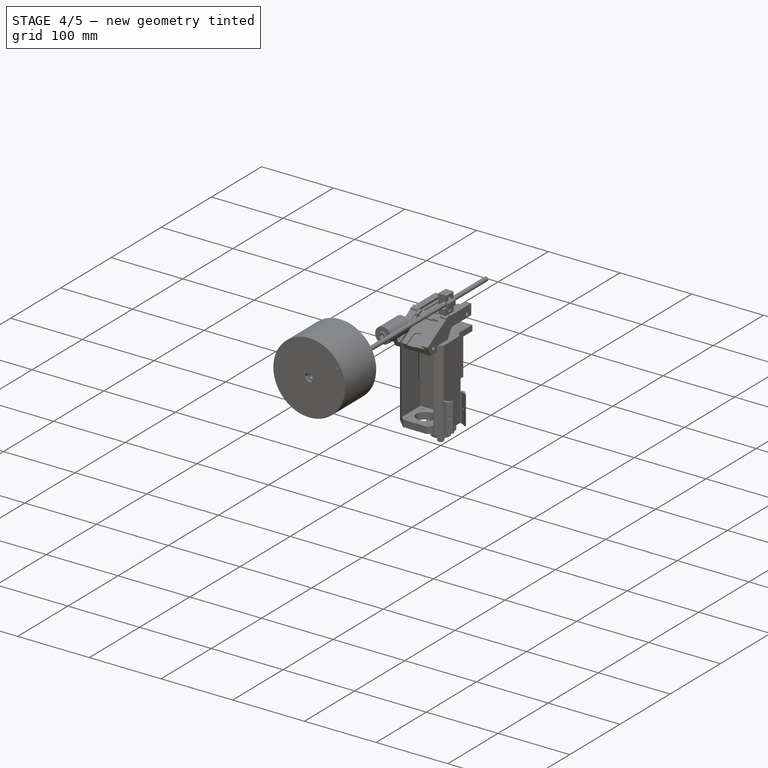
[diagram: stage 4 of 5 — iso view after this stage's code; geometry added in this stage tinted green]
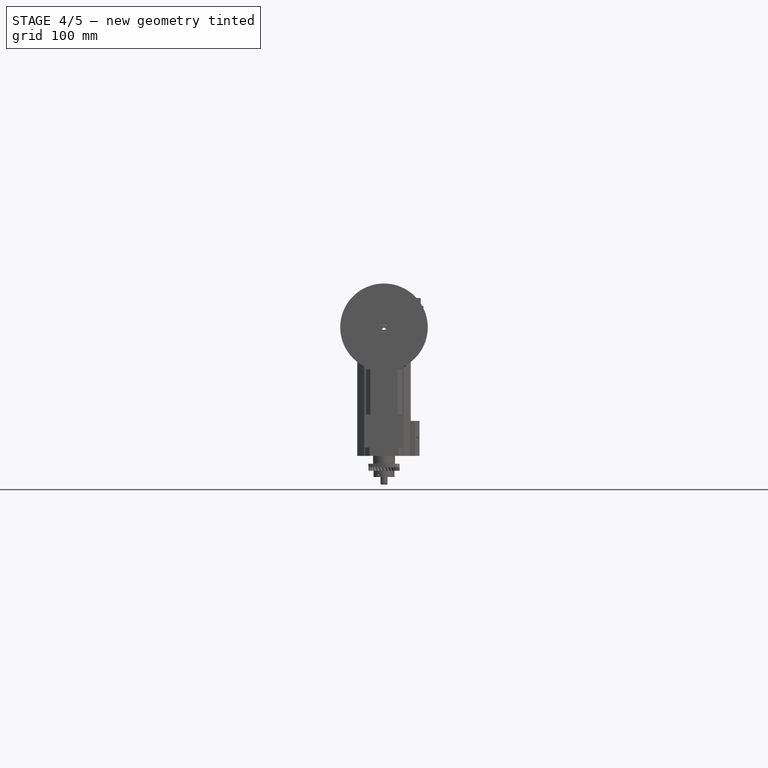
[diagram: stage 4 of 5 — front view after this stage's code; geometry added in this stage tinted green]
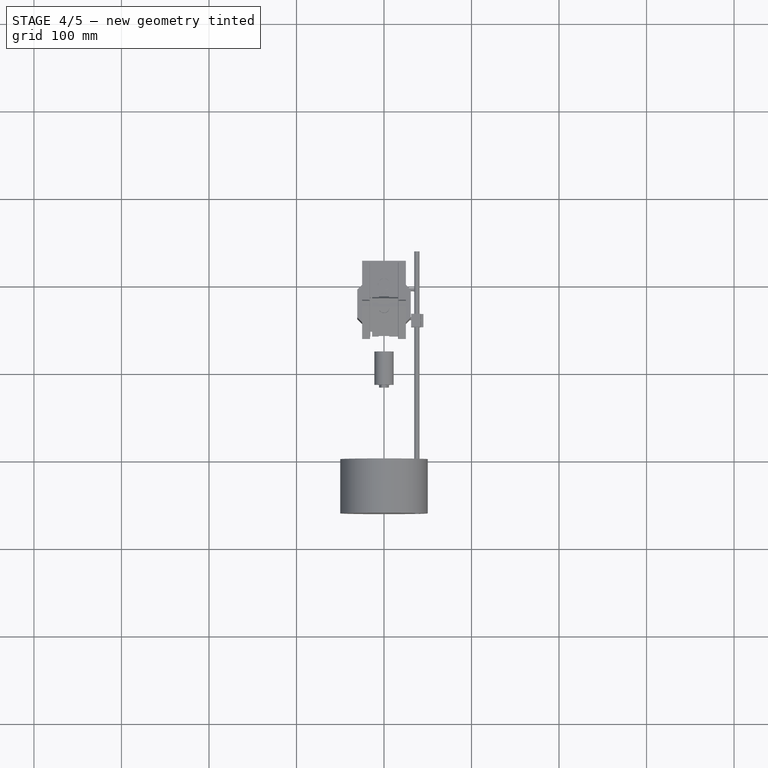
[diagram: stage 4 of 5 — top view after this stage's code; geometry added in this stage tinted green]
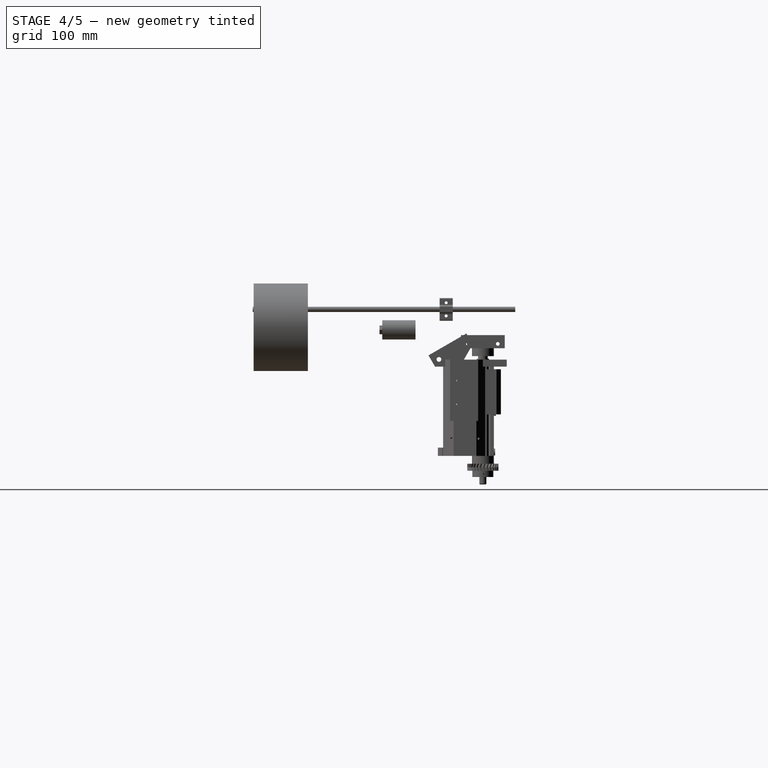
[diagram: stage 4 of 5 — right view after this stage's code; geometry added in this stage tinted green]
FEATURE [Part::FeaturePython] InvoluteGear007  # WARN: FeaturePython — macro-defined, semantics opaque (R4)
  backlash = 0
  beta = 0
  clearance = 0.25
  double_helix = false
  head = 0
  height = 5.5
  module = 1.2
  numpoints = 6
  pressure_angle = 20
  reversed_backlash = false
  shift = 0
  simple = false
  teeth = 27
  undercut = false
FEATURE [Part::FeaturePython] InvoluteGear006  # WARN: FeaturePython — macro-defined, semantics opaque (R4)
  backlash = 0
  beta = 0
  clearance = 0.25
  double_helix = false
  head = 0
  height = 5.5
  module = 1.2
  numpoints = 6
  pressure_angle = 20
  reversed_backlash = false
  shift = 0
  simple = false
  teeth = 27
  undercut = false
FEATURE [Part::FeaturePython] InvoluteGear005  # WARN: FeaturePython — macro-defined, semantics opaque (R4)
  backlash = 0
  beta = 0
  clearance = 0.25
  double_helix = false
  head = 0
  height = 5.5
  module = 1.2
  numpoints = 6
  pressure_angle = 20
  reversed_backlash = false
  shift = 0
  simple = false
  teeth = 27
  undercut = false
FEATURE [Part::Cylinder] Cylinder007  label="Válec007"
  Angle = 360
  AttacherType = Attacher::AttachEngine3D
  Height = 1.5
  Radius = 20
FEATURE [Part::Cylinder] Cylinder008  label="Válec008"
  Angle = 360
  AttacherType = Attacher::AttachEngine3D
  Height = 1.5
  Radius = 16
FEATURE [Part::Cylinder] Cylinder006  label="Válec006"
  Angle = 360
  AttacherType = Attacher::AttachEngine3D
  Height = 1.5
  Radius = 16
FEATURE [Part::Cut] Cut  label="Ring2"
  Base = -> Cylinder007
  Placement = pos=(0,0,5.5) rot=(0,0,1;0rad)
  Tool = -> Cylinder006
FEATURE [Part::Cylinder] Cylinder009  label="Válec009"
  Angle = 360
  AttacherType = Attacher::AttachEngine3D
  Height = 1.5
  Radius = 20
FEATURE [Part::Cut] Cut003  label="Ring003"
  Base = -> Cylinder009
  Placement = pos=(0,0,-1.5) rot=(0,0,1;0rad)
  Tool = -> Cylinder008
FEATURE [Part::Cylinder] Cylinder005  label="Válec005"
  Angle = 360
  AttacherType = Attacher::AttachEngine3D
  Height = 5.5
  Radius = 20
FEATURE [Part::Cut] Cut002  label="ring 001"
  Base = -> Cylinder005
  Tool = -> InvoluteGear005
FEATURE [Part::MultiFuse] Fusion  label="Ring zaklad Fin"
  Shapes = -> [Cut002,Cut,Cut003]
FEATURE [Part::Feature] Cut008_solid  label="Planet001"
  shape: bbox 12.9 x 13.1 x 5 mm, 57 faces (baked)
FEATURE [Part::Feature] Cylinder014001  label="Válec013"
  Placement = pos=(0,0,0) rot=(0,0,1;2.0944rad)
  shape: bbox 16 x 16 x 10 mm, 3 faces (baked)
FEATURE [Part::Cylinder] Cylinder014005010  label="Unasec vrch001"
  Angle = 360
  AttacherType = Attacher::AttachEngine3D
  Height = 1.5
  Placement = pos=(0,0,5.5) rot=(0,0,1;0rad)
  Radius = 15.5
FEATURE [Part::Cylinder] Cylinder010  label="unasec spodek"
  Angle = 360
  AttacherType = Attacher::AttachEngine3D
  Height = 1.5
  Placement = pos=(0,0,-1.5) rot=(0,0,1;0rad)
  Radius = 15.5
FEATURE [Part::Cylinder] Cylinder  label="Válec"
  Angle = 360
  AttacherType = Attacher::AttachEngine3D
  Height = 10
  Placement = pos=(0,0,-3) rot=(0,0,1;0rad)
  Radius = 7
FEATURE [Part::Cylinder] Cylinder014005007  label="Válec024"
  Angle = 360
  AttacherType = Attacher::AttachEngine3D
  Height = 7.5
  Placement = pos=(0,0,-7) rot=(0,0,1;0rad)
  Radius = 6.5
FEATURE [Part::Cylinder] Cylinder013  label="Válec011"
  Angle = 360
  AttacherType = Attacher::AttachEngine3D
  Height = 10
  Placement = pos=(10.5,0,0) rot=(0,0,1;0rad)
  Radius = 8
FEATURE [Part::Cylinder] Cylinder011  label="unasec stred"
  Angle = 360
  AttacherType = Attacher::AttachEngine3D
  Height = 7
  Placement = pos=(0,0,-1.5) rot=(0,0,1;0rad)
  Radius = 13.5
FEATURE [Part::MultiFuse] Fusion002
  Shapes = -> [Cylinder011,Cylinder010]
FEATURE [Part::Cylinder] Cylinder014005008  label="Válec025"
  Angle = 360
  AttacherType = Attacher::AttachEngine3D
  Height = 15
  Placement = pos=(0,0,-8) rot=(0,0,1;0rad)
  Radius = 2.65
FEATURE [Part::Cylinder] Cylinder014005009  label="Válec026"
  Angle = 360
  AttacherType = Attacher::AttachEngine3D
  Height = 7
  Placement = pos=(0,0,-7) rot=(0,0,1;0rad)
  Radius = 12
FEATURE [Part::Extrusion] Extrude  label="box"
  Base = -> Cut005_solid001_cs
  Dir = (0,0,1)
  DirMode = 2
  FaceMakerClass = Part::FaceMakerBullseye
  LengthFwd = 19
  LengthRev = 0
  Placement = pos=(0,0,-11.5) rot=(0,0,1;0rad)
  Solid = true
  Symmetric = false
FEATURE [Part::RegularPolygon] RegularPolygon  label="Pravidelný n-úhelník"
  AttacherType = Attacher::AttachEngine3D
  Circumradius = 6
  Polygon = 6
FEATURE [Part::Extrusion] Extrude006
  Base = -> RegularPolygon
  Dir = (0,0,1)
  DirMode = 2
  FaceMakerClass = Part::FaceMakerBullseye
  LengthFwd = 8
  LengthRev = 0
  Placement = pos=(0,0,13) rot=(0,0,1;0rad)
  Solid = true
  Symmetric = false
FEATURE [Part::Extrusion] Extrude007
  Base = -> Sketch001
  Dir = (1,0,0)
  DirMode = 2
  FaceMakerClass = Part::FaceMakerBullseye
  LengthFwd = 5
  LengthRev = 0
  Placement = pos=(0,0,0.25) rot=(0,0,1;0rad)
  Solid = true
  Symmetric = false
FEATURE [Part::FeaturePython] InvoluteGear012  # WARN: FeaturePython — macro-defined, semantics opaque (R4)
  backlash = 0
  beta = 0
  clearance = 0.25
  double_helix = false
  head = 0
  height = 5.5
  module = 1.2
  numpoints = 6
  pressure_angle = 20
  reversed_backlash = false
  shift = 0
  simple = false
  teeth = 27
  undercut = false
FEATURE [Part::FeaturePython] InvoluteGear013  # WARN: FeaturePython — macro-defined, semantics opaque (R4)
  backlash = 0
  beta = 0
  clearance = 0.25
  double_helix = false
  head = 0
  height = 5.5
  module = 1.2
  numpoints = 6
  pressure_angle = 20
  reversed_backlash = false
  shift = 0
  simple = false
  teeth = 27
  undercut = false
FEATURE [Part::Feature] Screw_solid008  label="M2x4-Screw (Solid)008"
  Placement = pos=(0,0,0) rot=(0,0,1;3.14159rad)
  shape: bbox 3.6 x 3.6 x 4 mm, 12 faces (baked)
FEATURE [Part::MultiFuse] Fusion011  label="srouby003"
  Placement = pos=(0,0,0.5) rot=(0,0,1;0rad)
  Shapes = -> [Screw_solid006,Screw_solid007,Screw_solid008]
FEATURE [Part::Cut] Cut012  label="unasec vrch001"
  Base = -> Cylinder014005010
  Tool = -> Fusion011
FEATURE [Part::Feature] Cylinder014005012  label="Válec028"
  shape: bbox 5 x 5 x 7 mm, 3 faces (baked)
FEATURE [Part::Feature] Cylinder014005014  label="Válec030"
  Placement = pos=(0,0,0) rot=(0,0,1;4.18879rad)
  shape: bbox 5 x 5 x 7 mm, 3 faces (baked)
FEATURE [Part::MultiFuse] Fusion012
  Shapes = -> [Cylinder014005014,Cylinder014005012,Cylinder014005013]
FEATURE [Part::Feature] Cut008_solid003  label="Planet004"
  Placement = pos=(0,0,0) rot=(0,0,1;4.18879rad)
  shape: bbox 12.9 x 13.1 x 5 mm, 57 faces (baked)
FEATURE [Part::Cylinder] Cylinder014005016  label="unasec spodek003"
  Angle = 360
  AttacherType = Attacher::AttachEngine3D
  Height = 1.5
  Placement = pos=(0,0,-1.5) rot=(0,0,1;0rad)
  Radius = 15.5
FEATURE [Part::Cylinder] Cylinder014005035  label="Válec048"
  Angle = 360
  AttacherType = Attacher::AttachEngine3D
  Height = 18
  Radius = 2.6
FEATURE [Part::Cylinder] Cylinder014005032  label="Válec045"
  Angle = 360
  AttacherType = Attacher::AttachEngine3D
  Height = 1.5
  Radius = 16
FEATURE [Part::Cylinder] Cylinder014005015  label="Válec031"
  Angle = 360
  AttacherType = Attacher::AttachEngine3D
  Height = 10
  Placement = pos=(0,0,-3) rot=(0,0,1;0rad)
  Radius = 7
FEATURE [Part::Cylinder] Cylinder014005029  label="Válec042"
  Angle = 360
  AttacherType = Attacher::AttachEngine3D
  Height = 1.5
  Radius = 16
FEATURE [Part::Cylinder] Cylinder014005031  label="Válec044"
  Angle = 360
  AttacherType = Attacher::AttachEngine3D
  Height = 1.5
  Radius = 20
FEATURE [Part::Cut] Cut017  label="Ring005"
  Base = -> Cylinder014005031
  Placement = pos=(0,0,-1.5) rot=(0,0,1;0rad)
  Tool = -> Cylinder014005032
FEATURE [Part::Cylinder] Cylinder014005034  label="Válec047"
  Angle = 360
  AttacherType = Attacher::AttachEngine3D
  Height = 4
  Placement = pos=(0,0,7) rot=(0,0,1;0rad)
  Radius = 6.5
FEATURE [Part::Cylinder] Cylinder014005036  label="Válec049"
  Angle = 360
  AttacherType = Attacher::AttachEngine3D
  Height = 4
  Placement = pos=(0,0,7) rot=(0,0,1;0rad)
  Radius = 6.5
FEATURE [Part::Cylinder] Cylinder014005041  label="Unasec vrch003"
  Angle = 360
  AttacherType = Attacher::AttachEngine3D
  Height = 1.5
  Placement = pos=(0,0,5.5) rot=(0,0,1;0rad)
  Radius = 15.5
FEATURE [Part::Cylinder] Cylinder014005011  label="Válec027"
  Angle = 360
  AttacherType = Attacher::AttachEngine3D
  Height = 7
  Radius = 2.6
FEATURE [Part::MultiFuse] Fusion013
  Placement = pos=(0,0,1) rot=(0,0,1;0rad)
  Shapes = -> [Fusion012,Cylinder014005011]
FEATURE [Part::Cut] Cut011  label="Unasec Vrch zaklad001"
  Base = -> Cut012
  Tool = -> Fusion013
FEATURE [Part::Cylinder] Cylinder014005017  label="unasec stred001"
  Angle = 360
  AttacherType = Attacher::AttachEngine3D
  Height = 7
  Placement = pos=(0,0,-1.5) rot=(0,0,1;0rad)
  Radius = 13.5
FEATURE [Part::Cylinder] Cylinder014005018  label="Válec032"
  Angle = 360
  AttacherType = Attacher::AttachEngine3D
  Height = 10
  Placement = pos=(10.5,0,0) rot=(0,0,1;0rad)
  Radius = 8
FEATURE [Part::MultiFuse] Fusion017
  Shapes = -> [Cylinder014005015,Cylinder014005018,Cylinder014005024,Cylinder014005026]
FEATURE [Part::Cylinder] Cylinder014005030  label="Válec043"
  Angle = 360
  AttacherType = Attacher::AttachEngine3D
  Height = 1.5
  Radius = 20
FEATURE [Part::Cut] Cut014  label="Ring004"
  Base = -> Cylinder014005030
  Placement = pos=(0,0,5.5) rot=(0,0,1;0rad)
  Tool = -> Cylinder014005029
FEATURE [Part::Cylinder] Cylinder014005033  label="Válec046"
  Angle = 360
  AttacherType = Attacher::AttachEngine3D
  Height = 5.5
  Radius = 20
FEATURE [Part::Cut] Cut015  label="ring 002"
  Base = -> Cylinder014005033
  Tool = -> InvoluteGear006
FEATURE [Part::Cylinder] Cylinder014005037  label="Válec050"
  Angle = 360
  AttacherType = Attacher::AttachEngine3D
  Height = 18
  Radius = 2.6
FEATURE [Part::Cylinder] Cylinder014005051  label="Válec063"
  Angle = 360
  AttacherType = Attacher::AttachEngine3D
  Height = 7
  Radius = 2.6
FEATURE [Part::Cylinder] Cylinder014005052  label="Válec064"
  Angle = 360
  AttacherType = Attacher::AttachEngine3D
  Height = 10
  Placement = pos=(0,0,-3) rot=(0,0,1;0rad)
  Radius = 7
FEATURE [Part::Cylinder] Cylinder014005042  label="Válec054"
  Angle = 360
  AttacherType = Attacher::AttachEngine3D
  Height = 7
  Radius = 2.6
FEATURE [Part::Cylinder] Cylinder014005054  label="Válec065"
  Angle = 360
  AttacherType = Attacher::AttachEngine3D
  Height = 10
  Placement = pos=(10.5,0,0) rot=(0,0,1;0rad)
  Radius = 8
FEATURE [Part::Cylinder] Cylinder014005056  label="Válec066"
  Angle = 360
  AttacherType = Attacher::AttachEngine3D
  Height = 1.5
  Radius = 16
FEATURE [Part::Cylinder] Cylinder014005053  label="unasec stred002"
  Angle = 360
  AttacherType = Attacher::AttachEngine3D
  Height = 7
  Placement = pos=(0,0,-1.5) rot=(0,0,1;0rad)
  Radius = 13.5
FEATURE [Part::Cylinder] Cylinder014005057  label="Válec067"
  Angle = 360
  AttacherType = Attacher::AttachEngine3D
  Height = 4
  Placement = pos=(0,0,7) rot=(0,0,1;0rad)
  Radius = 6.5
FEATURE [Part::Cylinder] Cylinder014005055  label="unasec spodek005"
  Angle = 360
  AttacherType = Attacher::AttachEngine3D
  Height = 1.5
  Placement = pos=(0,0,-1.5) rot=(0,0,1;0rad)
  Radius = 15.5
FEATURE [Part::Feature] Screw_solid016  label="M2x4-Screw (Solid)016"
  Placement = pos=(0,0,0) rot=(0,0,1;3.14159rad)
  shape: bbox 3.6 x 3.6 x 4 mm, 12 faces (baked)
FEATURE [Part::Feature] Screw_solid014  label="M2x4-Screw (Solid)014"
  Placement = pos=(0,0,0) rot=(0,0,-1;1.0472rad)
  shape: bbox 3.6 x 3.6 x 4 mm, 12 faces (baked)
FEATURE [Part::Feature] Cylinder014005027  label="Válec040"
  shape: bbox 5 x 5 x 7 mm, 3 faces (baked)
FEATURE [Part::Feature] Screw_solid015  label="M2x4-Screw (Solid)015"
  Placement = pos=(0,0,0) rot=(0,0,-1;1.0472rad)
  shape: bbox 3.6 x 3.6 x 4 mm, 12 faces (baked)
FEATURE [Part::Feature] Screw_solid011  label="M2x4-Screw (Solid)011"
  Placement = pos=(0,0,0) rot=(0,0,1;3.14159rad)
  shape: bbox 3.6 x 3.6 x 4 mm, 12 faces (baked)
FEATURE [Part::Feature] Cut008_solid004  label="Planet005"
  shape: bbox 12.9 x 13.1 x 5 mm, 57 faces (baked)
FEATURE [Part::Feature] Cylinder014005028  label="Válec041"
  Placement = pos=(0,0,0) rot=(0,0,1;4.18879rad)
  shape: bbox 5 x 5 x 7 mm, 3 faces (baked)
FEATURE [Part::Feature] Cut007_solid001  label="Sun2"
  Placement = pos=(0,0,10.5) rot=(0,0,1;0rad)
  shape: bbox 12.9 x 13.1 x 5 mm, 57 faces (baked)
FEATURE [Part::Feature] Cut008_solid005  label="Planet006"
  Placement = pos=(0,0,0) rot=(0,0,1;2.0944rad)
  shape: bbox 12.9 x 13.1 x 5 mm, 57 faces (baked)
FEATURE [Part::Feature] Cut007_solid002  label="Sun003"
  Placement = pos=(0,0,10.5) rot=(0,0,1;0rad)
  shape: bbox 12.9 x 13.1 x 5 mm, 57 faces (baked)
FEATURE [Part::Feature] Screw_solid013  label="M2x4-Screw (Solid)013"
  Placement = pos=(0,0,0) rot=(0,0,1;1.0472rad)
  shape: bbox 3.6 x 3.6 x 4 mm, 12 faces (baked)
FEATURE [Part::MultiFuse] Fusion018
  Shapes = -> [Cylinder014005017,Cylinder014005016]
FEATURE [Part::Cut] Cut016  label="unasec spodek002"
  Base = -> Fusion018
  Tool = -> Fusion017
FEATURE [Part::MultiFuse] Fusion028  label="Tělo I"
  Shapes = -> [Extrude,Fusion]
FEATURE [Part::MultiFuse] Fusion019  label="srouby005"
  Shapes = -> [Screw_solid013,Screw_solid014,Screw_solid011]
FEATURE [Part::Cut] Cut018  label="Uasec spodek001"
  Base = -> Cut016
  Tool = -> Fusion019
FEATURE [Part::MultiFuse] Fusion023  label="unasec vrhch 2"
  Shapes = -> [Cut011,Cut007_solid001,Cylinder014005034]
FEATURE [Part::Cut] Cut020  label="Unasec + Sun"
  Base = -> Fusion023
  Tool = -> Cylinder014005035
FEATURE [Part::MultiFuse] Fusion021
  Shapes = -> [Cylinder014005028,Cylinder014005027,Cylinder014005025]
FEATURE [Part::MultiFuse] Fusion020  label="Unasec spdek final001"
  Shapes = -> [Cut018,Fusion021]
FEATURE [Part::MultiFuse] Fusion030
  Shapes = -> [Cylinder014005053,Cylinder014005055]
FEATURE [Part::MultiFuse] Fusion022  label="Ring zaklad Fin001"
  Shapes = -> [Cut015,Cut014,Cut017]
FEATURE [Part::Feature] Cut008_solid007  label="Planet008"
  shape: bbox 12.9 x 13.1 x 5 mm, 57 faces (baked)
FEATURE [Part::Feature] Screw_solid022  label="M2x4-Screw (Solid)022"
  Placement = pos=(0,0,0) rot=(0,0,1;3.14159rad)
  shape: bbox 3.6 x 3.6 x 4 mm, 12 faces (baked)
FEATURE [Part::Feature] Cylinder014005048  label="Válec060"
  Placement = pos=(0,0,0) rot=(0,0,1;4.18879rad)
  shape: bbox 16 x 16 x 10 mm, 3 faces (baked)
FEATURE [Part::Feature] Cylinder014005049  label="Válec061"
  Placement = pos=(0,0,0) rot=(0,0,1;2.0944rad)
  shape: bbox 5 x 5 x 7 mm, 3 faces (baked)
FEATURE [Part::Feature] Cylinder014005050  label="Válec062"
  Placement = pos=(0,0,0) rot=(0,0,1;2.0944rad)
  shape: bbox 16 x 16 x 10 mm, 3 faces (baked)
FEATURE [Part::MultiFuse] Fusion031
  Shapes = -> [Cylinder014005052,Cylinder014005054,Cylinder014005048,Cylinder014005050]
FEATURE [Part::Cut] Cut030  label="unasec spodek004"
  Base = -> Fusion030
  Tool = -> Fusion031
FEATURE [Part::Feature] Cylinder014005040  label="Válec053"
  Placement = pos=(0,0,0) rot=(0,0,1;2.0944rad)
  shape: bbox 5 x 5 x 7 mm, 3 faces (baked)
FEATURE [Part::Feature] Cylinder014005039  label="Válec052"
  shape: bbox 5 x 5 x 7 mm, 3 faces (baked)
FEATURE [Part::Feature] Screw_solid019  label="M2x4-Screw (Solid)019"
  Placement = pos=(0,0,0) rot=(0,0,-1;1.0472rad)
  shape: bbox 3.6 x 3.6 x 4 mm, 12 faces (baked)
FEATURE [Part::Feature] Cut008_solid008  label="Planet009"
  Placement = pos=(0,0,0) rot=(0,0,1;4.18879rad)
  shape: bbox 12.9 x 13.1 x 5 mm, 57 faces (baked)
FEATURE [Part::Feature] Cut005_solid001_cs003
  Placement = pos=(0,0,-11.25) rot=(0,0,1;0rad)
  shape: bbox 41 x 41 x 3e-07 mm, 0 faces, 0 solids (baked)
FEATURE [Part::Extrusion] Extrude002  label="box002"
  Base = -> Cut005_solid001_cs003
  Dir = (0,0,1)
  DirMode = 2
  FaceMakerClass = Part::FaceMakerBullseye
  LengthFwd = 10.5
  LengthRev = 0
  Placement = pos=(0,0,-3) rot=(0,0,1;0rad)
  Solid = true
  Symmetric = false
FEATURE [Part::Feature] Screw_solid023  label="M2x4-Screw (Solid)023"
  Placement = pos=(0,0,0) rot=(0,0,1;1.0472rad)
  shape: bbox 3.6 x 3.6 x 4 mm, 12 faces (baked)
FEATURE [Part::Feature] Cylinder014005046  label="Válec058"
  Placement = pos=(0,0,0) rot=(0,0,1;4.18879rad)
  shape: bbox 5 x 5 x 7 mm, 3 faces (baked)
FEATURE [Part::Feature] Cut005_solid001_cs002
  Placement = pos=(0,0,-11.25) rot=(0,0,1;0rad)
  shape: bbox 41 x 41 x 3e-07 mm, 0 faces, 0 solids (baked)
FEATURE [Part::Extrusion] Extrude001  label="box001"
  Base = -> Cut005_solid001_cs002
  Dir = (0,0,1)
  DirMode = 2
  FaceMakerClass = Part::FaceMakerBullseye
  LengthFwd = 10.5
  LengthRev = 0
  Placement = pos=(0,0,-3) rot=(0,0,1;0rad)
  Solid = true
  Symmetric = false
FEATURE [Part::MultiFuse] Fusion029  label="teloII"
  Shapes = -> [Fusion022,Extrude001]
FEATURE [Part::Feature] Screw_solid017  label="M2x4-Screw (Solid)017"
  Placement = pos=(0,0,0) rot=(0,0,1;1.0472rad)
  shape: bbox 3.6 x 3.6 x 4 mm, 12 faces (baked)
FEATURE [Part::MultiFuse] Fusion027  label="srouby006"
  Placement = pos=(0,0,0.5) rot=(0,0,1;0rad)
  Shapes = -> [Screw_solid017,Screw_solid015,Screw_solid016]
FEATURE [Part::Cut] Cut021  label="unasec vrch003"
  Base = -> Cylinder014005041
  Tool = -> Fusion027
FEATURE [Part::Feature] Cylinder014005045  label="Válec057"
  Placement = pos=(0,0,0) rot=(0,0,1;4.18879rad)
  shape: bbox 5 x 5 x 7 mm, 3 faces (baked)
FEATURE [Part::Feature] Cut007_solid003  label="Sun004"
  Placement = pos=(0,0,10.5) rot=(0,0,1;0rad)
  shape: bbox 12.9 x 13.1 x 5 mm, 57 faces (baked)
FEATURE [Part::Feature] Cylinder014005047  label="Válec059"
  shape: bbox 5 x 5 x 7 mm, 3 faces (baked)
FEATURE [Part::MultiFuse] Fusion033
  Shapes = -> [Cylinder014005045,Cylinder014005047,Cylinder014005049]
FEATURE [Part::Feature] Screw_solid021  label="M2x4-Screw (Solid)021"
  Placement = pos=(0,0,0) rot=(0,0,-1;1.0472rad)
  shape: bbox 3.6 x 3.6 x 4 mm, 12 faces (baked)
FEATURE [Part::MultiFuse] Fusion039  label="srouby008"
  Shapes = -> [Screw_solid023,Screw_solid021,Screw_solid022]
FEATURE [Part::Cut] Cut031  label="Uasec spodek002"
  Base = -> Cut030
  Tool = -> Fusion039
FEATURE [Part::MultiFuse] Fusion040  label="Unasec spdek final002"
  Shapes = -> [Cut031,Fusion033]
FEATURE [Part::Feature] Cylinder014005044  label="Válec056"
  Placement = pos=(0,0,0) rot=(0,0,1;2.0944rad)
  shape: bbox 5 x 5 x 7 mm, 3 faces (baked)
FEATURE [Part::Feature] Cylinder014005038  label="Válec051"
  Placement = pos=(0,0,0) rot=(0,0,1;4.18879rad)
  shape: bbox 5 x 5 x 7 mm, 3 faces (baked)
FEATURE [Part::MultiFuse] Fusion026
  Shapes = -> [Cylinder014005038,Cylinder014005039,Cylinder014005040]
FEATURE [Part::MultiFuse] Fusion025
  Placement = pos=(0,0,1) rot=(0,0,1;0rad)
  Shapes = -> [Fusion026,Cylinder014005042]
FEATURE [Part::Cut] Cut022  label="Unasec Vrch zaklad003"
  Base = -> Cut021
  Tool = -> Fusion025
FEATURE [Part::MultiFuse] Fusion024  label="unasec vrhch 003"
  Shapes = -> [Cut022,Cut007_solid002,Cylinder014005036]
FEATURE [Part::Cut] Cut023  label="Unasec + Sun001"
  Base = -> Fusion024
  Tool = -> Cylinder014005037
FEATURE [App::Part] Part  label="Part055"
  Group = -> [Cut016,Cut018,Cylinder014005015,Cylinder014005016,Cylinder014005017,Cylinder014005018,Cylinder014005024,Cylinder014005025,Cylinder014005026,Screw_solid011,Cylinder014005027,Screw_solid013,Cylinder014005028,Screw_solid014,Fusion017,Fusion018,Fusion019,Fusion021,Fusion020,Cut008_solid004,Cut008_solid005,Cut008_solid003,Screw_solid017,Cylinder014005039,Cylinder014005040,Screw_solid015,Screw_solid016,+26 more]
  License = CC BY 3.0
  LicenseURL = http://creativecommons.org/licenses/by/3.0/
  Origin = -> Origin
  Placement = pos=(0,0,10.5) rot=(0,0,1;0rad)
FEATURE [Part::Feature] Cut008_solid006  label="Planet007"
  Placement = pos=(0,0,0) rot=(0,0,1;2.0944rad)
  shape: bbox 12.9 x 13.1 x 5 mm, 57 faces (baked)
FEATURE [Part::Feature] Screw_solid020  label="M2x4-Screw (Solid)020"
  Placement = pos=(0,0,0) rot=(0,0,1;3.14159rad)
  shape: bbox 3.6 x 3.6 x 4 mm, 12 faces (baked)
FEATURE [Part::Feature] Cylinder014005043  label="Válec055"
  shape: bbox 5 x 5 x 7 mm, 3 faces (baked)
FEATURE [Part::MultiFuse] Fusion038
  Shapes = -> [Cylinder014005046,Cylinder014005043,Cylinder014005044]
FEATURE [Part::MultiFuse] Fusion035
  Placement = pos=(0,0,1) rot=(0,0,1;0rad)
  Shapes = -> [Fusion038,Cylinder014005051]
FEATURE [Part::Feature] Screw_solid018  label="M2x4-Screw (Solid)018"
  Placement = pos=(0,0,0) rot=(0,0,1;1.0472rad)
  shape: bbox 3.6 x 3.6 x 4 mm, 12 faces (baked)
FEATURE [Part::MultiFuse] Fusion036  label="srouby007"
  Placement = pos=(0,0,0.5) rot=(0,0,1;0rad)
  Shapes = -> [Screw_solid018,Screw_solid019,Screw_solid020]
FEATURE [Part::Cylinder] Cylinder014005060  label="Válec070"
  Angle = 360
  AttacherType = Attacher::AttachEngine3D
  Height = 5.5
  Radius = 20
FEATURE [Part::Cut] Cut024  label="ring 003"
  Base = -> Cylinder014005060
  Tool = -> InvoluteGear007
FEATURE [Part::Cylinder] Cylinder014005063  label="Válec072"
  Angle = 360
  AttacherType = Attacher::AttachEngine3D
  Height = 1.5
  Radius = 20
FEATURE [Part::Cut] Cut029  label="Ring007"
  Base = -> Cylinder014005063
  Placement = pos=(0,0,5.5) rot=(0,0,1;0rad)
  Tool = -> Cylinder014005056
FEATURE [Part::Cylinder] Cylinder014005058  label="Válec068"
  Angle = 360
  AttacherType = Attacher::AttachEngine3D
  Height = 1.5
  Radius = 16
FEATURE [Part::Cylinder] Cylinder014005059  label="Válec069"
  Angle = 360
  AttacherType = Attacher::AttachEngine3D
  Height = 18
  Radius = 2.6
FEATURE [Part::Cylinder] Cylinder014005062  label="Válec071"
  Angle = 360
  AttacherType = Attacher::AttachEngine3D
  Height = 1.5
  Radius = 20
FEATURE [Part::Cut] Cut025  label="Ring006"
  Base = -> Cylinder014005062
  Placement = pos=(0,0,-1.5) rot=(0,0,1;0rad)
  Tool = -> Cylinder014005058
FEATURE [Part::MultiFuse] Fusion034  label="Ring zaklad Fin002"
  Shapes = -> [Cut024,Cut029,Cut025]
FEATURE [Part::MultiFuse] Fusion032  label="teloII001"
  Shapes = -> [Fusion034,Extrude002]
FEATURE [Part::Cylinder] Cylinder014005061  label="Unasec vrch004"
  Angle = 360
  AttacherType = Attacher::AttachEngine3D
  Height = 1.5
  Placement = pos=(0,0,5.5) rot=(0,0,1;0rad)
  Radius = 15.5
FEATURE [Part::Cut] Cut028  label="unasec vrch004"
  Base = -> Cylinder014005061
  Tool = -> Fusion036
FEATURE [Part::Cut] Cut027  label="Unasec Vrch zaklad004"
  Base = -> Cut028
  Tool = -> Fusion035
FEATURE [Part::MultiFuse] Fusion037  label="unasec vrhch 004"
  Shapes = -> [Cut027,Cut007_solid003,Cylinder014005057]
FEATURE [Part::Cut] Cut026  label="Unasec + Sun002"
  Base = -> Fusion037
  Tool = -> Cylinder014005059
FEATURE [App::Part] Part002  label="Part054"
  Group = -> [Cut030,Cut031,Cylinder014005052,Cylinder014005055,Cylinder014005053,Cylinder014005054,Cylinder014005048,Cylinder014005049,Cylinder014005050,Screw_solid022,Cylinder014005047,Screw_solid023,Cylinder014005045,Screw_solid021,Fusion031,Fusion030,Fusion039,Fusion033,Fusion040,Cut008_solid007,Cut008_solid006,Cut008_solid008,Screw_solid018,Cylinder014005043,Cylinder014005044,Screw_solid019,Screw_solid020,+26 more]
  License = CC BY 3.0
  LicenseURL = http://creativecommons.org/licenses/by/3.0/
  Origin = -> Origin002
  Placement = pos=(0,0,21) rot=(0,0,1;0rad)
FEATURE [Part::Feature] Cut007_solid005  label="Sun006"
  Placement = pos=(0,0,10.5) rot=(0,0,1;0rad)
  shape: bbox 12.9 x 13.1 x 5 mm, 57 faces (baked)
FEATURE [Part::Feature] Cylinder014005109  label="Válec111"
  Placement = pos=(0,0,0) rot=(0,0,1;2.0944rad)
  shape: bbox 16 x 16 x 10 mm, 3 faces (baked)
FEATURE [Part::Feature] Cylinder014005108  label="Válec110"
  Placement = pos=(0,0,0) rot=(0,0,1;2.0944rad)
  shape: bbox 5 x 5 x 7 mm, 3 faces (baked)
FEATURE [Part::Feature] Cut008_solid013  label="Planet014"
  Placement = pos=(0,0,0) rot=(0,0,1;4.18879rad)
  shape: bbox 12.9 x 13.1 x 5 mm, 57 faces (baked)
FEATURE [Part::Feature] Cut008_solid014  label="Planet015"
  shape: bbox 12.9 x 13.1 x 5 mm, 57 faces (baked)
FEATURE [Part::Feature] Screw_solid038  label="M2x4-Screw (Solid)038"
  Placement = pos=(0,0,0) rot=(0,0,1;1.0472rad)
  shape: bbox 3.6 x 3.6 x 4 mm, 12 faces (baked)
FEATURE [Part::Feature] Cut005_solid001_cs005
  Placement = pos=(0,0,-11.25) rot=(0,0,1;0rad)
  shape: bbox 41 x 41 x 3e-07 mm, 0 faces, 0 solids (baked)
FEATURE [Part::Extrusion] Extrude004  label="box004"
  Base = -> Cut005_solid001_cs005
  Dir = (0,0,1)
  DirMode = 2
  FaceMakerClass = Part::FaceMakerBullseye
  LengthFwd = 10.5
  LengthRev = 0
  Placement = pos=(0,0,-3) rot=(0,0,1;0rad)
  Solid = true
  Symmetric = false
FEATURE [Part::Feature] Cylinder014005118  label="Válec119"
  shape: bbox 5 x 5 x 7 mm, 3 faces (baked)
FEATURE [Part::Feature] Cut007_solid006  label="Sun007"
  Placement = pos=(0,0,10.5) rot=(0,0,1;0rad)
  shape: bbox 12.9 x 13.1 x 5 mm, 57 faces (baked)
FEATURE [Part::Feature] Cylinder014005103  label="Válec105"
  Placement = pos=(0,0,0) rot=(0,0,1;2.0944rad)
  shape: bbox 5 x 5 x 7 mm, 3 faces (baked)
FEATURE [Part::Feature] Screw_solid035  label="M2x4-Screw (Solid)035"
  Placement = pos=(0,0,0) rot=(0,0,1;3.14159rad)
  shape: bbox 3.6 x 3.6 x 4 mm, 12 faces (baked)
FEATURE [Part::Feature] Cylinder014005102  label="Válec104"
  Placement = pos=(0,0,0) rot=(0,0,1;4.18879rad)
  shape: bbox 5 x 5 x 7 mm, 3 faces (baked)
FEATURE [Part::Feature] Cylinder014005106  label="Válec108"
  Placement = pos=(0,0,0) rot=(0,0,1;4.18879rad)
  shape: bbox 5 x 5 x 7 mm, 3 faces (baked)
FEATURE [Part::Feature] Screw_solid033  label="M2x4-Screw (Solid)033"
  Placement = pos=(0,0,0) rot=(0,0,1;1.0472rad)
  shape: bbox 3.6 x 3.6 x 4 mm, 12 faces (baked)
FEATURE [Part::Feature] Cut008_solid012  label="Planet013"
  Placement = pos=(0,0,0) rot=(0,0,1;2.0944rad)
  shape: bbox 12.9 x 13.1 x 5 mm, 57 faces (baked)
FEATURE [Part::Feature] Screw_solid036  label="M2x4-Screw (Solid)036"
  Placement = pos=(0,0,0) rot=(0,0,-1;1.0472rad)
  shape: bbox 3.6 x 3.6 x 4 mm, 12 faces (baked)
FEATURE [Part::Feature] Cylinder014005107  label="Válec109"
  shape: bbox 5 x 5 x 7 mm, 3 faces (baked)
FEATURE [Part::MultiFuse] Fusion063
  Shapes = -> [Cylinder014005106,Cylinder014005107,Cylinder014005103]
FEATURE [Part::Feature] Cylinder014005105  label="Válec107"
  Placement = pos=(0,0,0) rot=(0,0,1;4.18879rad)
  shape: bbox 16 x 16 x 10 mm, 3 faces (baked)
FEATURE [Part::Feature] Cylinder014005104  label="Válec106"
  shape: bbox 5 x 5 x 7 mm, 3 faces (baked)
FEATURE [Part::MultiFuse] Fusion062
  Shapes = -> [Cylinder014005102,Cylinder014005104,Cylinder014005108]
FEATURE [Part::Feature] Screw_solid037  label="M2x4-Screw (Solid)037"
  Placement = pos=(0,0,0) rot=(0,0,-1;1.0472rad)
  shape: bbox 3.6 x 3.6 x 4 mm, 12 faces (baked)
FEATURE [Part::MultiFuse] Fusion066  label="srouby013"
  Placement = pos=(0,0,0.5) rot=(0,0,1;0rad)
  Shapes = -> [Screw_solid033,Screw_solid037,Screw_solid035]
FEATURE [Part::Feature] Screw_solid034  label="M2x4-Screw (Solid)034"
  Placement = pos=(0,0,0) rot=(0,0,1;3.14159rad)
  shape: bbox 3.6 x 3.6 x 4 mm, 12 faces (baked)
FEATURE [Part::MultiFuse] Fusion065  label="srouby012"
  Shapes = -> [Screw_solid038,Screw_solid036,Screw_solid034]
FEATURE [Part::Cylinder] Cylinder014005101  label="Válec103"
  Angle = 360
  AttacherType = Attacher::AttachEngine3D
  Height = 10
  Placement = pos=(10.5,0,0) rot=(0,0,1;0rad)
  Radius = 8
FEATURE [Part::Cylinder] Cylinder014005110  label="Válec112"
  Angle = 360
  AttacherType = Attacher::AttachEngine3D
  Height = 1.5
  Radius = 16
FEATURE [Part::Cylinder] Cylinder014005098  label="Válec102"
  Angle = 360
  AttacherType = Attacher::AttachEngine3D
  Height = 10
  Placement = pos=(0,0,-3) rot=(0,0,1;0rad)
  Radius = 7
FEATURE [Part::MultiFuse] Fusion059
  Shapes = -> [Cylinder014005098,Cylinder014005101,Cylinder014005105,Cylinder014005109]
FEATURE [Part::Cylinder] Cylinder014005112  label="Válec114"
  Angle = 360
  AttacherType = Attacher::AttachEngine3D
  Height = 1.5
  Radius = 20
FEATURE [Part::Cylinder] Cylinder014005117  label="Válec118"
  Angle = 360
  AttacherType = Attacher::AttachEngine3D
  Height = 18
  Radius = 2.6
FEATURE [Part::Cylinder] Cylinder014005114  label="Válec116"
  Angle = 360
  AttacherType = Attacher::AttachEngine3D
  Height = 1.5
  Radius = 20
FEATURE [Part::Cut] Cut046  label="Ring011"
  Base = -> Cylinder014005114
  Placement = pos=(0,0,-1.5) rot=(0,0,1;0rad)
  Tool = -> Cylinder014005110
FEATURE [Part::Cylinder] Cylinder014005121  label="Válec122"
  Angle = 360
  AttacherType = Attacher::AttachEngine3D
  Height = 1.5
  Radius = 16
FEATURE [Part::Cylinder] Cylinder014005111  label="Válec113"
  Angle = 360
  AttacherType = Attacher::AttachEngine3D
  Height = 5.5
  Radius = 20
FEATURE [Part::Cut] Cut045  label="ring 005"
  Base = -> Cylinder014005111
  Tool = -> InvoluteGear012
FEATURE [Part::Cylinder] Cylinder014005119  label="Válec120"
  Angle = 360
  AttacherType = Attacher::AttachEngine3D
  Height = 1.5
  Radius = 20
FEATURE [Part::Cut] Cut054  label="Ring013"
  Base = -> Cylinder014005119
  Placement = pos=(0,0,5.5) rot=(0,0,1;0rad)
  Tool = -> Cylinder014005121
FEATURE [Part::Cylinder] Cylinder014005099  label="unasec stred005"
  Angle = 360
  AttacherType = Attacher::AttachEngine3D
  Height = 7
  Placement = pos=(0,0,-1.5) rot=(0,0,1;0rad)
  Radius = 13.5
FEATURE [Part::Cylinder] Cylinder014005097  label="Válec101"
  Angle = 360
  AttacherType = Attacher::AttachEngine3D
  Height = 7
  Radius = 2.6
FEATURE [Part::MultiFuse] Fusion068
  Placement = pos=(0,0,1) rot=(0,0,1;0rad)
  Shapes = -> [Fusion063,Cylinder014005097]
FEATURE [Part::Cylinder] Cylinder014005100  label="unasec spodek011"
  Angle = 360
  AttacherType = Attacher::AttachEngine3D
  Height = 1.5
  Placement = pos=(0,0,-1.5) rot=(0,0,1;0rad)
  Radius = 15.5
FEATURE [Part::MultiFuse] Fusion058
  Shapes = -> [Cylinder014005099,Cylinder014005100]
FEATURE [Part::Cut] Cut044  label="unasec spodek010"
  Base = -> Fusion058
  Tool = -> Fusion059
FEATURE [Part::Cut] Cut050  label="Uasec spodek005"
  Base = -> Cut044
  Tool = -> Fusion065
FEATURE [Part::MultiFuse] Fusion064  label="Unasec spdek final004"
  Shapes = -> [Cut050,Fusion062]
FEATURE [Part::Cylinder] Cylinder014005113  label="Válec115"
  Angle = 360
  AttacherType = Attacher::AttachEngine3D
  Height = 1.5
  Radius = 16
FEATURE [Part::Cut] Cut043  label="Ring010"
  Base = -> Cylinder014005112
  Placement = pos=(0,0,5.5) rot=(0,0,1;0rad)
  Tool = -> Cylinder014005113
FEATURE [Part::MultiFuse] Fusion061  label="Ring zaklad Fin004"
  Shapes = -> [Cut045,Cut043,Cut046]
FEATURE [Part::MultiFuse] Fusion060  label="teloII003"
  Shapes = -> [Fusion061,Extrude004]
FEATURE [Part::Cylinder] Cylinder014005115  label="Unasec vrch006"
  Angle = 360
  AttacherType = Attacher::AttachEngine3D
  Height = 1.5
  Placement = pos=(0,0,5.5) rot=(0,0,1;0rad)
  Radius = 15.5
FEATURE [Part::Cut] Cut049  label="unasec vrch006"
  Base = -> Cylinder014005115
  Tool = -> Fusion066
FEATURE [Part::Cut] Cut048  label="Unasec Vrch zaklad006"
  Base = -> Cut049
  Tool = -> Fusion068
FEATURE [Part::Cylinder] Cylinder014005116  label="Válec117"
  Angle = 360
  AttacherType = Attacher::AttachEngine3D
  Height = 4
  Placement = pos=(0,0,7) rot=(0,0,1;0rad)
  Radius = 6.5
FEATURE [Part::MultiFuse] Fusion067  label="unasec vrhch 006"
  Shapes = -> [Cut048,Cut007_solid005,Cylinder014005116]
FEATURE [Part::Cut] Cut047  label="Unasec + Sun004"
  Base = -> Fusion067
  Tool = -> Cylinder014005117
FEATURE [App::Part] Part004
  Group = -> [Cut044,Cut050,Cylinder014005098,Cylinder014005100,Cylinder014005099,Cylinder014005101,Cylinder014005105,Cylinder014005108,Cylinder014005109,Screw_solid034,Cylinder014005104,Screw_solid038,Cylinder014005102,Screw_solid036,Fusion059,Fusion058,Fusion065,Fusion062,Fusion064,Cut008_solid014,Cut008_solid012,Cut008_solid013,Screw_solid033,Cylinder014005107,Cylinder014005103,Screw_solid037,Screw_solid035,+26 more]
  License = CC BY 3.0
  LicenseURL = http://creativecommons.org/licenses/by/3.0/
  Origin = -> Origin004
  Placement = pos=(0,0,31.5) rot=(0,0,1;0rad)
FEATURE [Part::Cylinder] Cylinder014005120  label="Válec121"
  Angle = 360
  AttacherType = Attacher::AttachEngine3D
  Height = 5.5
  Radius = 20
FEATURE [Part::Cut] Cut051  label="ring 006"
  Base = -> Cylinder014005120
  Tool = -> InvoluteGear013
FEATURE [Part::Cylinder] Cylinder014005123  label="Válec124"
  Angle = 360
  AttacherType = Attacher::AttachEngine3D
  Height = 1.5
  Radius = 16
FEATURE [Part::Cylinder] Cylinder014005127  label="Válec127"
  Angle = 360
  AttacherType = Attacher::AttachEngine3D
  Height = 18
  Radius = 2.6
FEATURE [Part::Cylinder] Cylinder014005124  label="Válec125"
  Angle = 360
  AttacherType = Attacher::AttachEngine3D
  Height = 1.5
  Radius = 20
FEATURE [Part::Cut] Cut053  label="Ring012"
  Base = -> Cylinder014005124
  Placement = pos=(0,0,-1.5) rot=(0,0,1;0rad)
  Tool = -> Cylinder014005123
FEATURE [Part::MultiFuse] Fusion076  label="Ring zaklad Fin005"
  Shapes = -> [Cut051,Cut054,Cut053]
FEATURE [Part::Cylinder] Cylinder014005125  label="Unasec vrch007"
  Angle = 360
  AttacherType = Attacher::AttachEngine3D
  Height = 1.5
  Placement = pos=(0,0,5.5) rot=(0,0,1;0rad)
  Radius = 15.5
FEATURE [Part::Cylinder] Cylinder014005133  label="unasec stred006"
  Angle = 360
  AttacherType = Attacher::AttachEngine3D
  Height = 7
  Placement = pos=(0,0,-1.5) rot=(0,0,1;0rad)
  Radius = 13.5
FEATURE [Part::Cylinder] Cylinder014005122  label="Válec123"
  Angle = 360
  AttacherType = Attacher::AttachEngine3D
  Height = 10
  Placement = pos=(10.5,0,0) rot=(0,0,1;0rad)
  Radius = 8
FEATURE [Part::Cylinder] Cylinder014005126  label="Válec126"
  Angle = 360
  AttacherType = Attacher::AttachEngine3D
  Height = 4
  Placement = pos=(0,0,7) rot=(0,0,1;0rad)
  Radius = 6.5
FEATURE [Part::Cylinder] Cylinder014005134  label="unasec spodek013"
  Angle = 360
  AttacherType = Attacher::AttachEngine3D
  Height = 1.5
  Placement = pos=(0,0,-1.5) rot=(0,0,1;0rad)
  Radius = 15.5
FEATURE [Part::MultiFuse] Fusion077
  Shapes = -> [Cylinder014005133,Cylinder014005134]
FEATURE [Part::Feature] Cylinder014005131  label="Válec131"
  Placement = pos=(0,0,0) rot=(0,0,1;4.18879rad)
  shape: bbox 16 x 16 x 10 mm, 3 faces (baked)
FEATURE [Part::Feature] Cylinder014005138  label="Válec136"
  Placement = pos=(0,0,0) rot=(0,0,1;2.0944rad)
  shape: bbox 16 x 16 x 10 mm, 3 faces (baked)
FEATURE [Part::Feature] Screw_solid044  label="M2x4-Screw (Solid)044"
  Placement = pos=(0,0,0) rot=(0,0,1;1.0472rad)
  shape: bbox 3.6 x 3.6 x 4 mm, 12 faces (baked)
FEATURE [Part::Feature] Screw_solid043  label="M2x4-Screw (Solid)043"
  Placement = pos=(0,0,0) rot=(0,0,-1;1.0472rad)
  shape: bbox 3.6 x 3.6 x 4 mm, 12 faces (baked)
FEATURE [Part::Feature] Screw_solid042  label="M2x4-Screw (Solid)042"
  Placement = pos=(0,0,0) rot=(0,0,1;3.14159rad)
  shape: bbox 3.6 x 3.6 x 4 mm, 12 faces (baked)
FEATURE [Part::Feature] Screw_solid047  label="M2x4-Screw (Solid)047"
  Placement = pos=(0,0,0) rot=(0,0,-1;1.0472rad)
  shape: bbox 3.6 x 3.6 x 4 mm, 12 faces (baked)
FEATURE [Part::Feature] Cylinder014005128  label="Válec128"
  Placement = pos=(0,0,0) rot=(0,0,1;2.0944rad)
  shape: bbox 5 x 5 x 7 mm, 3 faces (baked)
FEATURE [Part::Feature] Cylinder014005129  label="Válec129"
  shape: bbox 5 x 5 x 7 mm, 3 faces (baked)
FEATURE [Part::Feature] Cut008_solid017  label="Planet018"
  shape: bbox 12.9 x 13.1 x 5 mm, 57 faces (baked)
FEATURE [Part::Feature] Cut061001  label="SUN I Final"
  shape: bbox 24 x 24 x 12.25 mm, 99 faces (baked)
FEATURE [App::Part] Part001
  Group = -> [Cut008_solid,Cut008_solid001,Cut008_solid002,Cylinder010,Cylinder,Cylinder013,Fusion001,Fusion002,Cylinder014005006,Cylinder014005005,Cylinder014002,Cylinder014001,Cylinder014005004,Cylinder011,Cut004,Cut006,Screw_solid005,Screw_solid003,Screw_solid004,Fusion006,Fusion004,Fusion008,Cylinder014005034,Cylinder014005035,Cut007_solid001,Cut012,Cut011,Screw_solid007,Screw_solid008,Cylinder014005014,+29 more]
  License = CC BY 3.0
  LicenseURL = http://creativecommons.org/licenses/by/3.0/
  Origin = -> Origin001
FEATURE [Part::Feature] Screw_solid045  label="M2x4-Screw (Solid)045"
  Placement = pos=(0,0,0) rot=(0,0,1;3.14159rad)
  shape: bbox 3.6 x 3.6 x 4 mm, 12 faces (baked)
FEATURE [Part::Feature] Cylinder014005130  label="Válec130"
  Placement = pos=(0,0,0) rot=(0,0,1;4.18879rad)
  shape: bbox 5 x 5 x 7 mm, 3 faces (baked)
FEATURE [Part::Feature] Screw_solid046  label="M2x4-Screw (Solid)046"
  Placement = pos=(0,0,0) rot=(0,0,1;1.0472rad)
  shape: bbox 3.6 x 3.6 x 4 mm, 12 faces (baked)
FEATURE [Part::MultiFuse] Fusion085  label="srouby016"
  Placement = pos=(0,0,0.5) rot=(0,0,1;0rad)
  Shapes = -> [Screw_solid046,Screw_solid047,Screw_solid045]
FEATURE [Part::Feature] Screw_solid040  label="M2x4-Screw (Solid)040"
  Placement = pos=(0,0,0) rot=(0,0,1;3.14159rad)
  shape: bbox 3.6 x 3.6 x 4 mm, 12 faces (baked)
FEATURE [Part::Feature] Cylinder014005132  label="Válec132"
  Placement = pos=(0,0,0) rot=(0,0,1;4.18879rad)
  shape: bbox 5 x 5 x 7 mm, 3 faces (baked)
FEATURE [Part::MultiFuse] Fusion075
  Shapes = -> [Cylinder014005132,Cylinder014005118,Cylinder014005128]
FEATURE [Part::Feature] Cut008_solid015  label="Planet016"
  Placement = pos=(0,0,0) rot=(0,0,1;2.0944rad)
  shape: bbox 12.9 x 13.1 x 5 mm, 57 faces (baked)
FEATURE [Part::Feature] Screw_solid041  label="M2x4-Screw (Solid)041"
  Placement = pos=(0,0,0) rot=(0,0,-1;1.0472rad)
  shape: bbox 3.6 x 3.6 x 4 mm, 12 faces (baked)
FEATURE [Part::MultiFuse] Fusion073  label="srouby015"
  Shapes = -> [Screw_solid044,Screw_solid041,Screw_solid042]
FEATURE [Part::Feature] Cut008_solid016  label="Planet017"
  Placement = pos=(0,0,0) rot=(0,0,1;4.18879rad)
  shape: bbox 12.9 x 13.1 x 5 mm, 57 faces (baked)
FEATURE [Part::Feature] Cylinder014005137  label="Válec135"
  Placement = pos=(0,0,0) rot=(0,0,1;2.0944rad)
  shape: bbox 5 x 5 x 7 mm, 3 faces (baked)
FEATURE [Part::MultiFuse] Fusion072
  Shapes = -> [Cylinder014005130,Cylinder014005129,Cylinder014005137]
FEATURE [Part::Feature] Cylinder014005149  label="Válec146"
  Placement = pos=(0,0,0) rot=(0,0,1;2.0944rad)
  shape: bbox 5 x 5 x 7 mm, 3 faces (baked)
FEATURE [Part::Feature] Cylinder014005150  label="Válec147"
  shape: bbox 5 x 5 x 7 mm, 3 faces (baked)
FEATURE [Part::Feature] Screw_solid039  label="M2x4-Screw (Solid)039"
  Placement = pos=(0,0,0) rot=(0,0,1;1.0472rad)
  shape: bbox 3.6 x 3.6 x 4 mm, 12 faces (baked)
FEATURE [Part::MultiFuse] Fusion071  label="srouby014"
  Placement = pos=(0,0,0.5) rot=(0,0,1;0rad)
  Shapes = -> [Screw_solid039,Screw_solid043,Screw_solid040]
FEATURE [Part::Cut] Cut057  label="unasec vrch007"
  Base = -> Cylinder014005125
  Tool = -> Fusion071
FEATURE [Part::Feature] Cut005_solid001_cs006
  Placement = pos=(0,0,-11.25) rot=(0,0,1;0rad)
  shape: bbox 41 x 41 x 3e-07 mm, 0 faces, 0 solids (baked)
FEATURE [Part::Extrusion] Extrude005  label="box005"
  Base = -> Cut005_solid001_cs006
  Dir = (0,0,1)
  DirMode = 2
  FaceMakerClass = Part::FaceMakerBullseye
  LengthFwd = 10.5
  LengthRev = 0
  Placement = pos=(0,0,-3) rot=(0,0,1;0rad)
  Solid = true
  Symmetric = false
FEATURE [Part::MultiFuse] Fusion078  label="teloII004"
  Shapes = -> [Fusion076,Extrude005]
FEATURE [Part::Cylinder] Cylinder014005135  label="Válec133"
  Angle = 360
  AttacherType = Attacher::AttachEngine3D
  Height = 7
  Radius = 2.6
FEATURE [Part::MultiFuse] Fusion079
  Placement = pos=(0,0,1) rot=(0,0,1;0rad)
  Shapes = -> [Fusion075,Cylinder014005135]
FEATURE [Part::Cylinder] Cylinder014005136  label="Válec134"
  Angle = 360
  AttacherType = Attacher::AttachEngine3D
  Height = 10
  Placement = pos=(0,0,-3) rot=(0,0,1;0rad)
  Radius = 7
FEATURE [Part::MultiFuse] Fusion069
  Shapes = -> [Cylinder014005136,Cylinder014005122,Cylinder014005131,Cylinder014005138]
FEATURE [Part::Cut] Cut052  label="unasec spodek012"
  Base = -> Fusion077
  Tool = -> Fusion069
FEATURE [Part::Cut] Cut056  label="Uasec spodek006"
  Base = -> Cut052
  Tool = -> Fusion073
FEATURE [Part::MultiFuse] Fusion074  label="Unasec spdek final005"
  Shapes = -> [Cut056,Fusion072]
FEATURE [Part::Cut] Cut058  label="Unasec Vrch zaklad007"
  Base = -> Cut057
  Tool = -> Fusion079
FEATURE [Part::MultiFuse] Fusion070  label="unasec vrhch 007"
  Shapes = -> [Cut058,Cut007_solid006,Cylinder014005126]
FEATURE [Part::Cut] Cut055  label="Unasec + Sun005 old"
  Base = -> Fusion070
  Tool = -> Cylinder014005127
FEATURE [Part::Cylinder] Cylinder014005148  label="Válec145"
  Angle = 360
  AttacherType = Attacher::AttachEngine3D
  Height = 22
  Radius = 2.6
FEATURE [Part::MultiFuse] Fusion090
  Shapes = -> [Cylinder014005148,Extrude007]
FEATURE [Part::Cylinder] Cylinder014005147  label="Válec144"
  Angle = 360
  AttacherType = Attacher::AttachEngine3D
  Height = 6
  Placement = pos=(0,0,7) rot=(0,0,1;0rad)
  Radius = 6.5
FEATURE [Part::Cylinder] Cylinder014005145  label="Válec143"
  Angle = 360
  AttacherType = Attacher::AttachEngine3D
  Height = 7
  Radius = 2.6
FEATURE [Part::Cylinder] Cylinder014005146  label="Unasec vrch008"
  Angle = 360
  AttacherType = Attacher::AttachEngine3D
  Height = 1.5
  Placement = pos=(0,0,5.5) rot=(0,0,1;0rad)
  Radius = 15.5
FEATURE [Part::Cut] Cut061004  label="unasec vrch008"
  Base = -> Cylinder014005146
  Tool = -> Fusion085
FEATURE [Part::Feature] Cylinder014005151  label="Válec148"
  Placement = pos=(0,0,0) rot=(0,0,1;4.18879rad)
  shape: bbox 5 x 5 x 7 mm, 3 faces (baked)
FEATURE [Part::MultiFuse] Fusion087
  Shapes = -> [Cylinder014005151,Cylinder014005150,Cylinder014005149]
FEATURE [Part::MultiFuse] Fusion088
  Placement = pos=(0,0,1) rot=(0,0,1;0rad)
  Shapes = -> [Fusion087,Cylinder014005145]
FEATURE [Part::Cut] Cut061003  label="Unasec Vrch zaklad008"
  Base = -> Cut061004
  Tool = -> Fusion088
FEATURE [Part::MultiFuse] Fusion089
  Shapes = -> [Cut061003,Cylinder014005147,Extrude006]
FEATURE [Part::Cut] Cut061005  label="unasec top"
  Base = -> Fusion089
  Tool = -> Fusion090
FEATURE [App::Part] Part005
  Group = -> [Cut052,Cut056,Cylinder014005136,Cylinder014005134,Cylinder014005133,Cylinder014005122,Cylinder014005131,Cylinder014005137,Cylinder014005138,Screw_solid042,Cylinder014005129,Screw_solid044,Cylinder014005130,Screw_solid041,Fusion069,Fusion077,Fusion073,Fusion072,Fusion074,Cut008_solid017,Cut008_solid015,Cut008_solid016,Screw_solid039,Cylinder014005118,Cylinder014005128,Screw_solid043,Screw_solid040,+48 more]
  License = CC BY 3.0
  LicenseURL = http://creativecommons.org/licenses/by/3.0/
  Origin = -> Origin005
  Placement = pos=(0,0,42) rot=(0,0,1;0rad)
FEATURE [App::Part] Part007  label="GearBOX 1024:1a"
  Group = -> [Part001,Part,Part002,Part004,Part005]
  License = CC BY 3.0
  LicenseURL = http://creativecommons.org/licenses/by/3.0/
  Origin = -> Origin007
FEATURE [Part::Box] Box009  label="Krychle008"
  AttacherType = Attacher::AttachEngine3D
  Height = 40
  Length = 41
  Placement = pos=(-20.5,-20.5,0) rot=(0,0,1;0rad)
  Width = 41
FEATURE [Part::Cylinder] Cylinder003  label="Válec003"
  Angle = 360
  AttacherType = Attacher::AttachEngine3D
  Height = 50
  Placement = pos=(-15.5,15.5,0) rot=(0,0,1;0rad)
  Radius = 1.6
FEATURE [Part::Cylinder] Cylinder002  label="Válec002"
  Angle = 360
  AttacherType = Attacher::AttachEngine3D
  Height = 50
  Placement = pos=(15.5,15.5,0) rot=(0,0,1;0rad)
  Radius = 1.6
FEATURE [Part::Cylinder] Cylinder014005153  label="Válec150"
  Angle = 360
  AttacherType = Attacher::AttachEngine3D
  Height = 50
  Placement = pos=(-15.5,-15.5,0) rot=(0,0,1;0rad)
  Radius = 1.6
FEATURE [Part::Cylinder] Cylinder004  label="Válec004"
  Angle = 360
  AttacherType = Attacher::AttachEngine3D
  Height = 50
  Placement = pos=(15.5,-15.5,0) rot=(0,0,1;0rad)
  Radius = 1.6
FEATURE [Part::MultiFuse] Fusion091  label="diry"
  Shapes = -> [Cylinder003,Cylinder002,Cylinder014005153,Cylinder004]
FEATURE [Part::Chamfer] Chamfer
  Base = -> Box009
  Edges = 4 edges r=5: [Edge1,Edge3,Edge5,Edge7]
FEATURE [Part::Cut] Cut061006
  Base = -> Chamfer
  Tool = -> Fusion091
FEATURE [Sketcher::SketchObject] Sketch013
  MapMode = 45
  Placement = pos=(44.88,21.011,5.40003) rot=(0.707106,0.001666,0.707106;3.13826rad)
  sketch-geometry (7):
    g0: LineSegment StartX=5.21891 StartY=0.0364138 StartZ=0 EndX=2.62121 EndY=4.46293 EndZ=0
    g1: LineSegment StartX=2.62121 StartY=4.46293 StartZ=0 EndX=-2.51111 EndY=4.42651 EndZ=0
    g2: LineSegment StartX=-2.51111 StartY=4.42651 StartZ=0 EndX=-5.04574 EndY=-0.0364138 EndZ=0
    g3: LineSegment StartX=-5.04574 StartY=-0.0364138 StartZ=0 EndX=-2.44804 EndY=-4.46293 EndZ=0
    g4: LineSegment StartX=-2.44804 StartY=-4.46293 StartZ=0 EndX=2.68428 EndY=-4.42651 EndZ=0
    g5: LineSegment StartX=2.68428 StartY=-4.42651 StartZ=0 EndX=5.21891 EndY=0.0364138 EndZ=0
    g6: Circle [constr] CenterX=0.0865834 CenterY=0 CenterZ=0 NormalX=0 NormalY=0 NormalZ=1 AngleXU=0 Radius=5.13245
  constraints (14):
    c: Coincident(g0,g1)
    c: Coincident(g1,g2)
    c: Coincident(g2,g3)
    c: Coincident(g3,g4)
    c: Coincident(g4,g5)
    c: Coincident(g5,g0)
    c: Equal(g0, g1-g5) x5
    c: PointOnObject(g0,g6)
    c: PointOnObject(g1,g6)
    c: PointOnObject(g2,g6)
    c: PointOnObject(g3,g6)
    c: PointOnObject(g4,g6)
    c: PointOnObject(g5,g6)
    c: PointOnObject(g6,g-1)
FEATURE [Part::Extrusion] Extrude030
  Base = -> Sketch013
  Dir = (1,0,0)
  DirMode = 2
  FaceMakerClass = Part::FaceMakerBullseye
  LengthFwd = 5
  LengthRev = 0
  Placement = pos=(0,0,0.25) rot=(0,0,1;0rad)
  Solid = true
  Symmetric = false
FEATURE [Part::RegularPolygon] RegularPolygon005  label="Pravidelný n-úhelník005"
  AttacherType = Attacher::AttachEngine3D
  Circumradius = 6
  Polygon = 6
FEATURE [Part::Extrusion] Extrude031
  Base = -> RegularPolygon005
  Dir = (0,0,1)
  DirMode = 2
  FaceMakerClass = Part::FaceMakerBullseye
  LengthFwd = 8
  LengthRev = 0
  Placement = pos=(0,0,13) rot=(0,0,1;0rad)
  Solid = true
  Symmetric = false
FEATURE [Part::Feature] Screw_solid090  label="M2x4-Screw (Solid)090"
  Placement = pos=(0,0,0) rot=(0,0,-1;1.0472rad)
  shape: bbox 3.6 x 3.6 x 4 mm, 12 faces (baked)
FEATURE [Part::Feature] Cylinder014005357  label="Válec323"
  shape: bbox 5 x 5 x 7 mm, 3 faces (baked)
FEATURE [Part::Feature] Cylinder014005358  label="Válec324"
  Placement = pos=(0,0,0) rot=(0,0,1;4.18879rad)
  shape: bbox 5 x 5 x 7 mm, 3 faces (baked)
FEATURE [Part::Feature] Cylinder014005359  label="Válec325"
  Placement = pos=(0,0,0) rot=(0,0,1;2.0944rad)
  shape: bbox 5 x 5 x 7 mm, 3 faces (baked)
FEATURE [Part::MultiFuse] Fusion223
  Shapes = -> [Cylinder014005358,Cylinder014005357,Cylinder014005359]
FEATURE [Part::Feature] Screw_solid091  label="M2x4-Screw (Solid)091"
  Placement = pos=(0,0,0) rot=(0,0,1;1.0472rad)
  shape: bbox 3.6 x 3.6 x 4 mm, 12 faces (baked)
FEATURE [Part::Feature] Screw_solid092  label="M2x4-Screw (Solid)092"
  Placement = pos=(0,0,0) rot=(0,0,1;3.14159rad)
  shape: bbox 3.6 x 3.6 x 4 mm, 12 faces (baked)
FEATURE [Part::MultiFuse] Fusion226  label="srouby031"
  Placement = pos=(0,0,0.5) rot=(0,0,1;0rad)
  Shapes = -> [Screw_solid091,Screw_solid090,Screw_solid092]
FEATURE [Part::Cylinder] Cylinder014005360  label="Válec326"
  Angle = 360
  AttacherType = Attacher::AttachEngine3D
  Height = 6
  Placement = pos=(0,0,7) rot=(0,0,1;0rad)
  Radius = 6.5
FEATURE [Part::Cylinder] Cylinder014005361  label="Válec327"
  Angle = 360
  AttacherType = Attacher::AttachEngine3D
  Height = 7
  Radius = 2.6
FEATURE [Part::MultiFuse] Fusion222
  Placement = pos=(0,0,1) rot=(0,0,1;0rad)
  Shapes = -> [Fusion223,Cylinder014005361]
FEATURE [Part::Cylinder] Cylinder014005362  label="Válec328"
  Angle = 360
  AttacherType = Attacher::AttachEngine3D
  Height = 22
  Radius = 2.6
FEATURE [Part::MultiFuse] Fusion224
  Shapes = -> [Cylinder014005362,Extrude030]
FEATURE [Part::Cylinder] Cylinder014005363  label="Válec329"
  Angle = 360
  AttacherType = Attacher::AttachEngine3D
  Height = 55
  Placement = pos=(0,0,-82) rot=(0,0,1;0rad)
  Radius = 2.7
FEATURE [Part::Cylinder] Cylinder014005364  label="Unasec vrch018"
  Angle = 360
  AttacherType = Attacher::AttachEngine3D
  Height = 1.5
  Placement = pos=(0,0,5.5) rot=(0,0,1;0rad)
  Radius = 15.5
FEATURE [Part::Cut] Cut061100  label="unasec vrch018"
  Base = -> Cylinder014005364
  Tool = -> Fusion226
FEATURE [Part::Cut] Cut061099  label="Unasec Vrch zaklad018"
  Base = -> Cut061100
  Tool = -> Fusion222
FEATURE [Part::MultiFuse] Fusion225
  Shapes = -> [Cut061099,Cylinder014005360,Extrude031]
FEATURE [Part::Cut] Cut061098  label="unasec top005"
  Base = -> Fusion225
  Placement = pos=(0,0,-42) rot=(1,0,0;3.14159rad)
  Tool = -> Fusion224
FEATURE [Part::MultiFuse] Fusion228
  Shapes = -> [Cylinder014005368,Cut061098,Cylinder014005363]
FEATURE [Part::Cut] Cut061101  label="Pinion"
  Base = -> Fusion229
  Tool = -> Fusion228
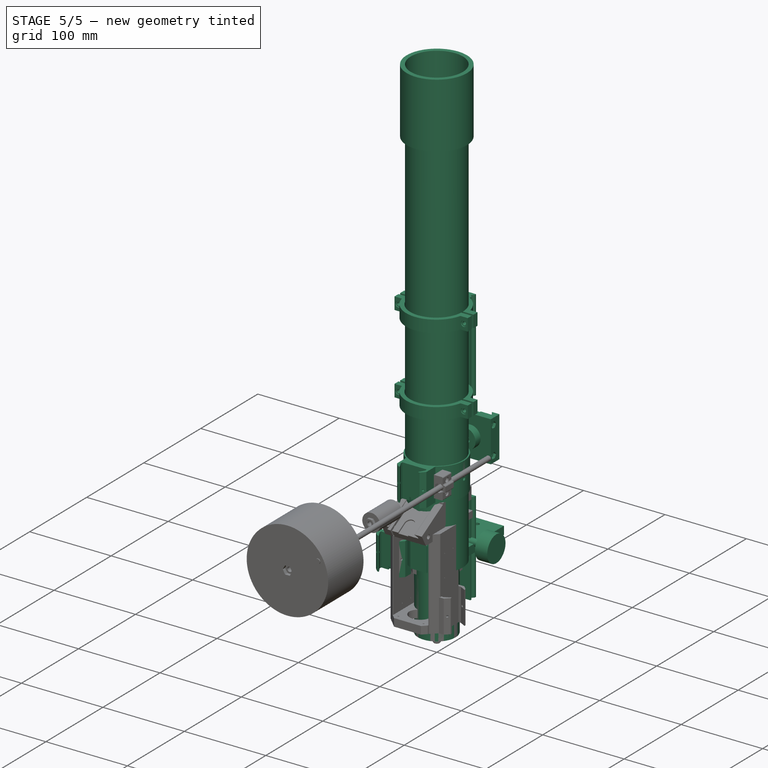
[diagram: stage 5 of 5 — iso view after this stage's code; geometry added in this stage tinted green]
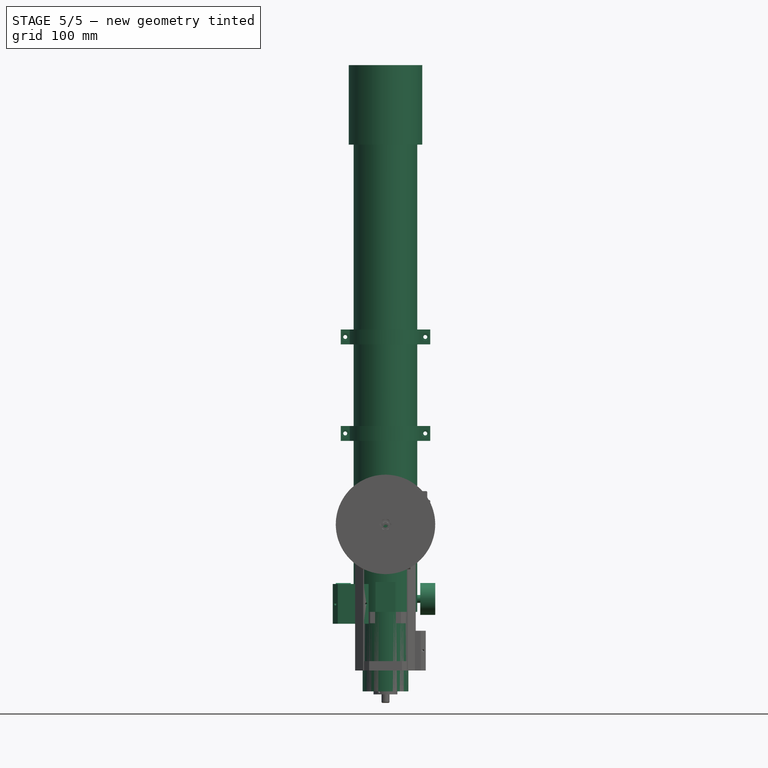
[diagram: stage 5 of 5 — front view after this stage's code; geometry added in this stage tinted green]
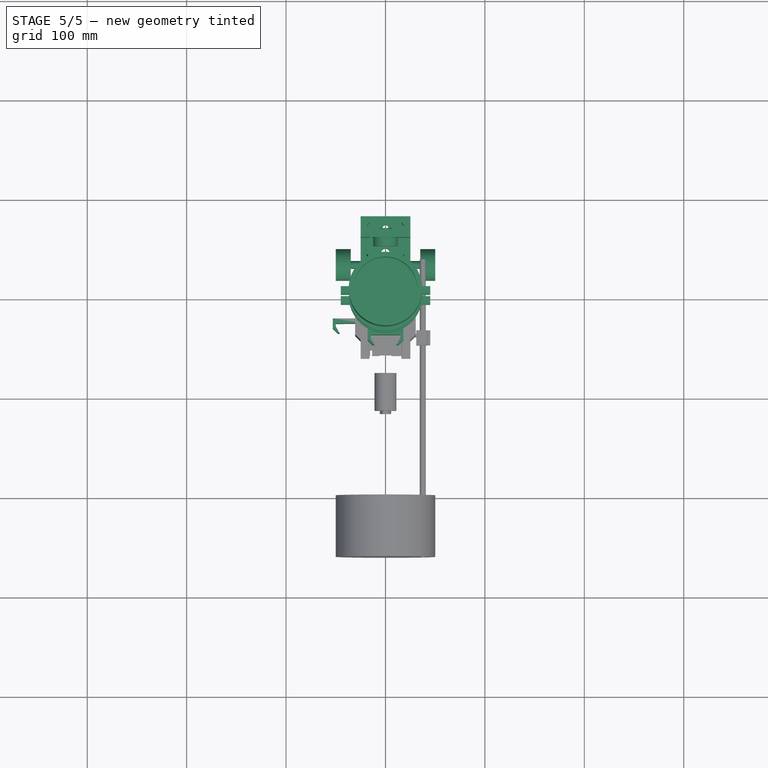
[diagram: stage 5 of 5 — top view after this stage's code; geometry added in this stage tinted green]
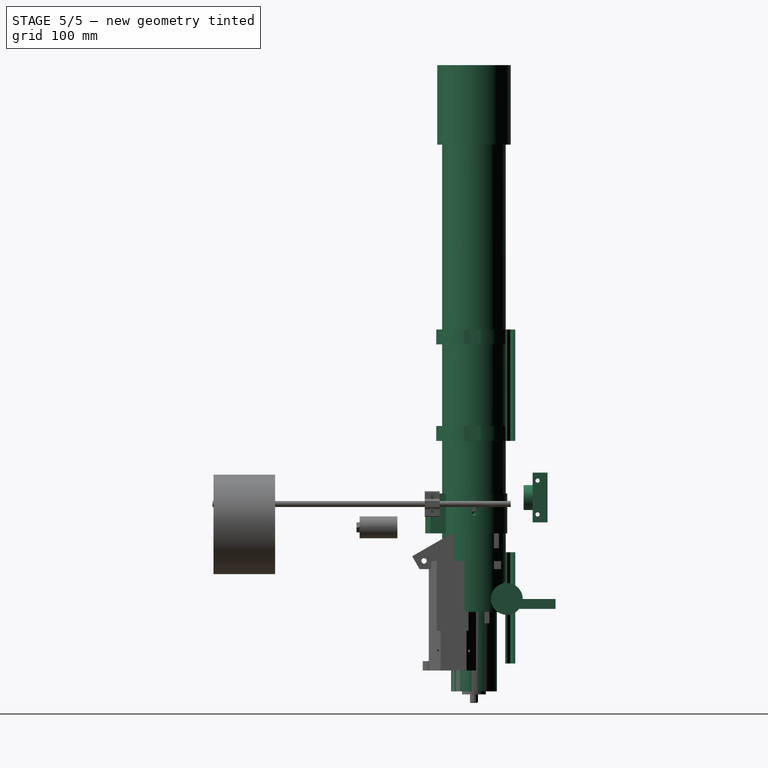
[diagram: stage 5 of 5 — right view after this stage's code; geometry added in this stage tinted green]
FEATURE [Sketcher::SketchObject] Sketch001
  MapMode = 45
  Placement = pos=(44.88,21.011,5.40003) rot=(0.707106,0.001666,0.707106;3.13826rad)
  sketch-geometry (7):
    g0: LineSegment StartX=5 StartY=0 StartZ=0 EndX=2.5 EndY=4.33013 EndZ=0
    g1: LineSegment StartX=2.5 StartY=4.33013 StartZ=0 EndX=-2.5 EndY=4.33013 EndZ=0
    g2: LineSegment StartX=-2.5 StartY=4.33013 StartZ=0 EndX=-5 EndY=0 EndZ=0
    g3: LineSegment StartX=-5 StartY=0 StartZ=0 EndX=-2.5 EndY=-4.33013 EndZ=0
    g4: LineSegment StartX=-2.5 StartY=-4.33013 StartZ=0 EndX=2.5 EndY=-4.33013 EndZ=0
    g5: LineSegment StartX=2.5 StartY=-4.33013 StartZ=0 EndX=5 EndY=0 EndZ=0
    g6: Circle [constr] CenterX=0 CenterY=0 CenterZ=0 NormalX=0 NormalY=0 NormalZ=1 AngleXU=0 Radius=5
  constraints (14):
    c: Coincident(g0,g1)
    c: Coincident(g1,g2)
    c: Coincident(g2,g3)
    c: Coincident(g3,g4)
    c: Coincident(g4,g5)
    c: Coincident(g5,g0)
    c: Equal(g0, g1-g5) x5
    c: PointOnObject(g0,g6)
    c: PointOnObject(g1,g6)
    c: PointOnObject(g2,g6)
    c: PointOnObject(g3,g6)
    c: PointOnObject(g4,g6)
    c: PointOnObject(g5,g6)
    c: PointOnObject(g6,g-1)
FEATURE [Part::Feature] Cut005_solid001_cs
  Placement = pos=(0,0,-11.25) rot=(0,0,1;0rad)
  shape: bbox 41 x 41 x 3e-07 mm, 0 faces, 0 solids (baked)
FEATURE [Part::Feature] Screw_solid003  label="M2x4-Screw (Solid)003"
  Placement = pos=(0,0,0) rot=(0,0,1;1.0472rad)
  shape: bbox 3.6 x 3.6 x 4 mm, 12 faces (baked)
FEATURE [Part::Feature] Cylinder014002  label="Válec014"
  Placement = pos=(0,0,0) rot=(0,0,1;4.18879rad)
  shape: bbox 16 x 16 x 10 mm, 3 faces (baked)
FEATURE [Part::Feature] Screw_solid004  label="M2x4-Screw (Solid)004"
  Placement = pos=(0,0,0) rot=(0,0,-1;1.0472rad)
  shape: bbox 3.6 x 3.6 x 4 mm, 12 faces (baked)
FEATURE [Part::Feature] Screw_solid005  label="M2x4-Screw (Solid)005"
  Placement = pos=(0,0,0) rot=(0,0,1;3.14159rad)
  shape: bbox 3.6 x 3.6 x 4 mm, 12 faces (baked)
FEATURE [Part::MultiFuse] Fusion004  label="srouby002"
  Shapes = -> [Screw_solid003,Screw_solid004,Screw_solid005]
FEATURE [Part::MultiFuse] Fusion001
  Shapes = -> [Cylinder,Cylinder013,Cylinder014002,Cylinder014001]
FEATURE [Part::Cut] Cut004  label="unasec spodek001"
  Base = -> Fusion002
  Tool = -> Fusion001
FEATURE [Part::Cut] Cut006  label="Uasec spodek"
  Base = -> Cut004
  Tool = -> Fusion004
FEATURE [Part::Feature] Cylinder014005025  label="Válec038"
  Placement = pos=(0,0,0) rot=(0,0,1;2.0944rad)
  shape: bbox 5 x 5 x 7 mm, 3 faces (baked)
FEATURE [Part::Feature] Cylinder014005026  label="Válec039"
  Placement = pos=(0,0,0) rot=(0,0,1;2.0944rad)
  shape: bbox 16 x 16 x 10 mm, 3 faces (baked)
FEATURE [Part::Feature] Cylinder014005024  label="Válec037"
  Placement = pos=(0,0,0) rot=(0,0,1;4.18879rad)
  shape: bbox 16 x 16 x 10 mm, 3 faces (baked)
FEATURE [Part::Feature] Screw_solid006  label="M2x4-Screw (Solid)006"
  Placement = pos=(0,0,0) rot=(0,0,1;1.0472rad)
  shape: bbox 3.6 x 3.6 x 4 mm, 12 faces (baked)
FEATURE [Part::Feature] Screw_solid007  label="M2x4-Screw (Solid)007"
  Placement = pos=(0,0,0) rot=(0,0,-1;1.0472rad)
  shape: bbox 3.6 x 3.6 x 4 mm, 12 faces (baked)
FEATURE [Part::Feature] Cylinder014005006  label="Válec023"
  Placement = pos=(0,0,0) rot=(0,0,1;4.18879rad)
  shape: bbox 5 x 5 x 7 mm, 3 faces (baked)
FEATURE [Part::Feature] Cut008_solid001  label="Planet002"
  Placement = pos=(0,0,0) rot=(0,0,1;2.0944rad)
  shape: bbox 12.9 x 13.1 x 5 mm, 57 faces (baked)
FEATURE [Part::Feature] Cut008_solid002  label="Planet003"
  Placement = pos=(0,0,0) rot=(0,0,1;4.18879rad)
  shape: bbox 12.9 x 13.1 x 5 mm, 57 faces (baked)
FEATURE [Part::Feature] Cut007_solid  label="Sun1"
  shape: bbox 12.9 x 13.1 x 5 mm, 57 faces (baked)
FEATURE [Part::MultiFuse] Fusion010
  Shapes = -> [Cut007_solid,Cylinder014005007,Cylinder014005009]
FEATURE [Part::Feature] Cylinder014005005  label="Válec022"
  Placement = pos=(0,0,0) rot=(0,0,1;2.0944rad)
  shape: bbox 5 x 5 x 7 mm, 3 faces (baked)
FEATURE [Part::Feature] Cylinder014005013  label="Válec029"
  Placement = pos=(0,0,0) rot=(0,0,1;2.0944rad)
  shape: bbox 5 x 5 x 7 mm, 3 faces (baked)
FEATURE [Part::Feature] Cylinder014005004  label="Válec021"
  shape: bbox 5 x 5 x 7 mm, 3 faces (baked)
FEATURE [Part::MultiFuse] Fusion006
  Shapes = -> [Cylinder014005006,Cylinder014005004,Cylinder014005005]
FEATURE [Part::MultiFuse] Fusion008  label="Unasec spdek final"
  Shapes = -> [Cut006,Fusion006]
FEATURE [Part::Cylinder] Cylinder014005159  label="Válec155"
  Angle = 360
  AttacherType = Attacher::AttachEngine3D
  Height = 50
  Placement = pos=(15.5,-15.5,0) rot=(0,0,1;0rad)
  Radius = 1.6
FEATURE [Part::Cylinder] Cylinder014005160  label="Válec156"
  Angle = 360
  AttacherType = Attacher::AttachEngine3D
  Height = 50
  Placement = pos=(-15.5,-15.5,0) rot=(0,0,1;0rad)
  Radius = 1.6
FEATURE [Part::Box] Box011  label="Krychle010"
  AttacherType = Attacher::AttachEngine3D
  Height = 0.45
  Length = 41
  Placement = pos=(-20.5,-20.5,0) rot=(0,0,1;0rad)
  Width = 41
FEATURE [Part::Chamfer] Chamfer002
  Base = -> Box011
  Edges = 4 edges r=5: [Edge1,Edge3,Edge5,Edge7]
FEATURE [Part::Cylinder] Cylinder014005161  label="Válec157"
  Angle = 360
  AttacherType = Attacher::AttachEngine3D
  Height = 50
  Placement = pos=(-15.5,15.5,0) rot=(0,0,1;0rad)
  Radius = 1.6
FEATURE [Part::Cylinder] Cylinder014005162  label="dira stred002"
  Angle = 360
  AttacherType = Attacher::AttachEngine3D
  Height = 50
  Radius = 18
FEATURE [Part::Cylinder] Cylinder014005163  label="Válec158"
  Angle = 360
  AttacherType = Attacher::AttachEngine3D
  Height = 50
  Placement = pos=(15.5,15.5,0) rot=(0,0,1;0rad)
  Radius = 1.6
FEATURE [Part::MultiFuse] Fusion093  label="diry002"
  Shapes = -> [Cylinder014005161,Cylinder014005163,Cylinder014005162,Cylinder014005160,Cylinder014005159]
FEATURE [Part::Cut] Cut061008
  Base = -> Chamfer002
  Tool = -> Fusion093
FEATURE [Part::Box] Box014  label="Krychle"
  AttacherType = Attacher::AttachEngine3D
  Height = 112
  Length = 38
  Placement = pos=(-19,32,-52) rot=(0,0,1;0rad)
  Width = 10
FEATURE [Part::Box] Box015  label="Krychle011"
  AttacherType = Attacher::AttachEngine3D
  Height = 112
  Length = 38
  Placement = pos=(-19,34,-52) rot=(0,0,1;0rad)
  Width = 6
FEATURE [Part::Cut] Cut061009
  Base = -> Box014
  Tool = -> Box015
FEATURE [Sketcher::SketchObject] Sketch
  MapMode = 5
  Placement = pos=(0,0,60) rot=(0,0,1;0rad)
  sketch-geometry (6):
    g0: LineSegment StartX=-18.9734 StartY=34.0308 StartZ=0 EndX=-16.0253 EndY=36.9748 EndZ=0
    g1: LineSegment StartX=18.996 StartY=34.0308 StartZ=0 EndX=16.044 EndY=36.9748 EndZ=0
    g2: LineSegment StartX=18.996 StartY=34.0308 StartZ=0 EndX=-18.9734 EndY=34.0308 EndZ=0
    g3: LineSegment StartX=-18.9734 StartY=40.0311 StartZ=0 EndX=-16.0253 EndY=36.9748 EndZ=0
    g4: LineSegment StartX=16.044 StartY=36.9748 StartZ=0 EndX=18.9109 EndY=40.0311 EndZ=0
    g5: LineSegment StartX=-18.9734 StartY=40.0311 StartZ=0 EndX=18.9109 EndY=40.0311 EndZ=0
  constraints (7):
    c: Coincident(g2,g1)
    c: Coincident(g2,g0)
    c: Horizontal(g2)
    c: Coincident(g3,g0)
    c: Coincident(g5,g3)
    c: Coincident(g5,g4)
    c: Horizontal(g5)
FEATURE [Part::Extrusion] Extrude009
  Base = -> Sketch
  Dir = (0,0,1)
  DirMode = 2
  FaceMakerClass = Part::FaceMakerBullseye
  LengthFwd = -112
  LengthRev = 0
  Solid = true
  Symmetric = false
FEATURE [Part::MultiFuse] Fusion095  label="Arca plate base"
  Placement = pos=(0,-0.5,0) rot=(0,0,1;0rad)
  Shapes = -> [Extrude009,Cut061009]
FEATURE [Part::RegularPolygon] RegularPolygon004  label="Pravidelný n-úhelník004"
  AttacherType = Attacher::AttachEngine3D
  Circumradius = 6
  Polygon = 6
FEATURE [Part::Extrusion] Extrude027
  Base = -> RegularPolygon004
  Dir = (0,0,1)
  DirMode = 2
  FaceMakerClass = Part::FaceMakerBullseye
  LengthFwd = 8
  LengthRev = 0
  Placement = pos=(0,0,13) rot=(0,0,1;0rad)
  Solid = true
  Symmetric = false
FEATURE [Part::FeaturePython] Nut007  label="M4-Nut002"  # Fasteners workbench fastener (typed FeaturePython)
  Placement = pos=(22,17,69) rot=(0,1,0;1.5708rad)
  diameter = 6
  invert = false
  matchOuter = false
  offset = 0
  thread = false
  type = 1
FEATURE [Part::FeaturePython] Nut008  label="M4-Nut003"  # Fasteners workbench fastener (typed FeaturePython)
  Placement = pos=(22,-17,69) rot=(0,1,0;1.5708rad)
  diameter = 6
  invert = false
  matchOuter = false
  offset = 0
  thread = false
  type = 1
FEATURE [Sketcher::SketchObject] Sketch009
  MapMode = 5
  Placement = pos=(0,0,60) rot=(0,0,1;0rad)
  sketch-geometry (6):
    g0: LineSegment StartX=-18.9734 StartY=34.0308 StartZ=0 EndX=-16.0253 EndY=36.9748 EndZ=0
    g1: LineSegment StartX=18.996 StartY=34.0308 StartZ=0 EndX=16.044 EndY=36.9748 EndZ=0
    g2: LineSegment StartX=18.996 StartY=34.0308 StartZ=0 EndX=-18.9734 EndY=34.0308 EndZ=0
    g3: LineSegment StartX=-18.9734 StartY=40.0311 StartZ=0 EndX=-16.0253 EndY=36.9748 EndZ=0
    g4: LineSegment StartX=16.044 StartY=36.9748 StartZ=0 EndX=18.9109 EndY=40.0311 EndZ=0
    g5: LineSegment StartX=-18.9734 StartY=40.0311 StartZ=0 EndX=18.9109 EndY=40.0311 EndZ=0
  constraints (7):
    c: Coincident(g2,g1)
    c: Coincident(g2,g0)
    c: Horizontal(g2)
    c: Coincident(g3,g0)
    c: Coincident(g5,g3)
    c: Coincident(g5,g4)
    c: Horizontal(g5)
FEATURE [Part::Extrusion] Extrude025
  Base = -> Sketch009
  Dir = (0,0,1)
  DirMode = 2
  FaceMakerClass = Part::FaceMakerBullseye
  LengthFwd = -112
  LengthRev = 0
  Solid = true
  Symmetric = false
FEATURE [Sketcher::SketchObject] Sketch010
  MapMode = 45
  Placement = pos=(44.88,21.011,5.40003) rot=(0.707106,0.001666,0.707106;3.13826rad)
  sketch-geometry (7):
    g0: LineSegment StartX=5.21891 StartY=0.0364138 StartZ=0 EndX=2.62121 EndY=4.46293 EndZ=0
    g1: LineSegment StartX=2.62121 StartY=4.46293 StartZ=0 EndX=-2.51111 EndY=4.42651 EndZ=0
    g2: LineSegment StartX=-2.51111 StartY=4.42651 StartZ=0 EndX=-5.04574 EndY=-0.0364138 EndZ=0
    g3: LineSegment StartX=-5.04574 StartY=-0.0364138 StartZ=0 EndX=-2.44804 EndY=-4.46293 EndZ=0
    g4: LineSegment StartX=-2.44804 StartY=-4.46293 StartZ=0 EndX=2.68428 EndY=-4.42651 EndZ=0
    g5: LineSegment StartX=2.68428 StartY=-4.42651 StartZ=0 EndX=5.21891 EndY=0.0364138 EndZ=0
    g6: Circle [constr] CenterX=0.0865834 CenterY=0 CenterZ=0 NormalX=0 NormalY=0 NormalZ=1 AngleXU=0 Radius=5.13245
  constraints (14):
    c: Coincident(g0,g1)
    c: Coincident(g1,g2)
    c: Coincident(g2,g3)
    c: Coincident(g3,g4)
    c: Coincident(g4,g5)
    c: Coincident(g5,g0)
    c: Equal(g0, g1-g5) x5
    c: PointOnObject(g0,g6)
    c: PointOnObject(g1,g6)
    c: PointOnObject(g2,g6)
    c: PointOnObject(g3,g6)
    c: PointOnObject(g4,g6)
    c: PointOnObject(g5,g6)
    c: PointOnObject(g6,g-1)
FEATURE [Part::Extrusion] Extrude026
  Base = -> Sketch010
  Dir = (1,0,0)
  DirMode = 2
  FaceMakerClass = Part::FaceMakerBullseye
  LengthFwd = 5
  LengthRev = 0
  Placement = pos=(0,0,0.25) rot=(0,0,1;0rad)
  Solid = true
  Symmetric = false
FEATURE [Part::Feature] Screw_solid087  label="M2x4-Screw (Solid)087"
  Placement = pos=(0,0,0) rot=(0,0,1;3.14159rad)
  shape: bbox 3.6 x 3.6 x 4 mm, 12 faces (baked)
FEATURE [Part::Feature] Cylinder014005326  label="Válec302"
  Placement = pos=(0,0,0) rot=(0,0,1;2.0944rad)
  shape: bbox 5 x 5 x 7 mm, 3 faces (baked)
FEATURE [Part::Feature] Cylinder014005327  label="Válec303"
  Placement = pos=(0,0,0) rot=(0,0,1;4.18879rad)
  shape: bbox 5 x 5 x 7 mm, 3 faces (baked)
FEATURE [Part::Feature] Screw_solid088  label="M2x4-Screw (Solid)088"
  Placement = pos=(0,0,0) rot=(0,0,1;1.0472rad)
  shape: bbox 3.6 x 3.6 x 4 mm, 12 faces (baked)
FEATURE [Part::Feature] Cylinder014005328  label="Válec304"
  shape: bbox 5 x 5 x 7 mm, 3 faces (baked)
FEATURE [Part::MultiFuse] Fusion196
  Shapes = -> [Cylinder014005327,Cylinder014005328,Cylinder014005326]
FEATURE [Part::Feature] Screw_solid089  label="M2x4-Screw (Solid)089"
  Placement = pos=(0,0,0) rot=(0,0,-1;1.0472rad)
  shape: bbox 3.6 x 3.6 x 4 mm, 12 faces (baked)
FEATURE [Part::MultiFuse] Fusion199  label="srouby030"
  Placement = pos=(0,0,0.5) rot=(0,0,1;0rad)
  Shapes = -> [Screw_solid088,Screw_solid089,Screw_solid087]
FEATURE [Part::Box] Box035  label="Krychle028"
  AttacherType = Attacher::AttachEngine3D
  Height = 112
  Length = 38
  Placement = pos=(-19,32,-52) rot=(0,0,1;0rad)
  Width = 10
FEATURE [Part::Box] Box036  label="Krychle029"
  AttacherType = Attacher::AttachEngine3D
  Height = 112
  Length = 38
  Placement = pos=(-19,34,-52) rot=(0,0,1;0rad)
  Width = 6
FEATURE [Part::Cylinder] Cylinder014005329  label="Válec305"
  Angle = 360
  AttacherType = Attacher::AttachEngine3D
  Height = 22
  Radius = 2.6
FEATURE [Part::MultiFuse] Fusion195
  Shapes = -> [Cylinder014005329,Extrude026]
FEATURE [Part::Cylinder] Cylinder014005330  label="Válec306"
  Angle = 360
  AttacherType = Attacher::AttachEngine3D
  Height = 7
  Radius = 2.6
FEATURE [Part::MultiFuse] Fusion198
  Placement = pos=(0,0,1) rot=(0,0,1;0rad)
  Shapes = -> [Fusion196,Cylinder014005330]
FEATURE [Part::Cylinder] Cylinder014005331  label="Válec307"
  Angle = 360
  AttacherType = Attacher::AttachEngine3D
  Height = 8
  Placement = pos=(0,0,66) rot=(0,0,1;0rad)
  Radius = 4.5
FEATURE [Part::Box] Box037  label="Krychle030"
  AttacherType = Attacher::AttachEngine3D
  Height = 15
  Length = 50
  Placement = pos=(-25,-25,64) rot=(0,0,1;0rad)
  Width = 50
FEATURE [Part::Cylinder] Cylinder014005332  label="Válec308"
  Angle = 360
  AttacherType = Attacher::AttachEngine3D
  Height = 6
  Placement = pos=(0,0,7) rot=(0,0,1;0rad)
  Radius = 6.5
FEATURE [Part::Box] Box038  label="Krychle031"
  AttacherType = Attacher::AttachEngine3D
  Height = 15
  Length = 2
  Placement = pos=(-15.5,-26,61) rot=(0,0,1;0rad)
  Width = 52
FEATURE [Part::Cylinder] Cylinder014005333  label="Unasec vrch017"
  Angle = 360
  AttacherType = Attacher::AttachEngine3D
  Height = 1.5
  Placement = pos=(0,0,5.5) rot=(0,0,1;0rad)
  Radius = 15.5
FEATURE [Part::Cylinder] Cylinder014005334  label="Válec309"
  Angle = 360
  AttacherType = Attacher::AttachEngine3D
  Height = 55
  Placement = pos=(0,0,35) rot=(0,0,1;0rad)
  Radius = 2.7
FEATURE [Part::Cylinder] Cylinder014005335  label="Válec310"
  Angle = 360
  AttacherType = Attacher::AttachEngine3D
  Height = 9
  Placement = pos=(0,0,55) rot=(0,0,1;0rad)
  Radius = 12.5
FEATURE [Part::Cut] Cut061079  label="unasec vrch017"
  Base = -> Cylinder014005333
  Tool = -> Fusion199
FEATURE [Part::Cut] Cut061080
  Base = -> Box035
  Tool = -> Box036
FEATURE [Part::MultiFuse] Fusion194  label="Arca plate base004"
  Placement = pos=(0,-6.5,115.5) rot=(-1,0,0;1.5708rad)
  Shapes = -> [Extrude025,Cut061080]
FEATURE [Part::Cut] Cut061077  label="Arca sw 002"
  Base = -> Box037
  Tool = -> Fusion194
FEATURE [Part::Cut] Cut061083
  Base = -> Cut061077
  Tool = -> Box038
FEATURE [Part::MultiFuse] Fusion192
  Shapes = -> [Cylinder014005335,Cut061083]
FEATURE [Part::Cut] Cut061084  label="Unasec Vrch zaklad017"
  Base = -> Cut061079
  Tool = -> Fusion198
FEATURE [Part::MultiFuse] Fusion197
  Shapes = -> [Cut061084,Cylinder014005332,Extrude027]
FEATURE [Part::Cut] Cut061081  label="unasec top004"
  Base = -> Fusion197
  Placement = pos=(0,0,42) rot=(0,0,1;0rad)
  Tool = -> Fusion195
FEATURE [Part::MultiFuse] Fusion191
  Shapes = -> [Cylinder014005334,Cut061081,Cylinder014005331]
FEATURE [Part::Cut] Cut061082
  Base = -> Fusion192
  Tool = -> Fusion191
FEATURE [Part::Cylinder] Cylinder014005336  label="Válec311"
  Angle = 360
  AttacherType = Attacher::AttachEngine3D
  Height = 60
  Placement = pos=(-30,17,69) rot=(0,1,0;1.5708rad)
  Radius = 2.1
FEATURE [Part::Cylinder] Cylinder014005337  label="Válec312"
  Angle = 360
  AttacherType = Attacher::AttachEngine3D
  Height = 60
  Placement = pos=(-30,-17,69) rot=(0,1,0;1.5708rad)
  Radius = 2.1
FEATURE [Part::MultiFuse] Fusion193
  Shapes = -> [Cylinder014005336,Cylinder014005337,Nut007,Nut008]
FEATURE [Part::Cut] Cut061078
  Base = -> Cut061082
  Tool = -> Fusion193
FEATURE [Part::Cylinder] Cylinder014005338  label="Válec313"
  Angle = 360
  AttacherType = Attacher::AttachEngine3D
  Height = 2.5
  Placement = pos=(0,-12,71) rot=(0,0,1;0rad)
  Radius = 6
FEATURE [Part::Box] Box039  label="Krychle032"
  AttacherType = Attacher::AttachEngine3D
  Height = 2.5
  Length = 12
  Placement = pos=(-6,-25,71) rot=(0,0,1;0rad)
  Width = 13
FEATURE [Part::MultiFuse] Fusion201
  Placement = pos=(0,0,1) rot=(0,0,1;3.14159rad)
  Shapes = -> [Box039,Cylinder014005338]
FEATURE [Part::Cylinder] Cylinder014005339  label="Válec314"
  Angle = 360
  AttacherType = Attacher::AttachEngine3D
  Height = 2.5
  Placement = pos=(0,-12,71) rot=(0,0,1;0rad)
  Radius = 6
FEATURE [Part::Box] Box040  label="Krychle033"
  AttacherType = Attacher::AttachEngine3D
  Height = 2.5
  Length = 12
  Placement = pos=(-6,-25,71) rot=(0,0,1;0rad)
  Width = 13
FEATURE [Part::MultiFuse] Fusion200
  Placement = pos=(0,0,1) rot=(0,0,1;0rad)
  Shapes = -> [Box040,Cylinder014005339]
FEATURE [Part::MultiFuse] Fusion202
  Shapes = -> [Fusion200,Fusion201]
FEATURE [Part::Cut] Cut061085  label="Swis Arca002"
  Base = -> Cut061078
  Placement = pos=(0,-5,115) rot=(-1,0,0;1.5708rad)
  Tool = -> Fusion202
FEATURE [Part::Box] Box002  label="Krychle002"
  AttacherType = Attacher::AttachEngine3D
  Height = 3
  Length = 13
  Placement = pos=(-6.5,0,-3) rot=(0,0,1;0rad)
  Width = 4
FEATURE [Sketcher::SketchObject] Sketch011
  MapMode = 5
  Placement = pos=(0,40,0) rot=(0,0.707107,0.707107;3.14159rad)
  sketch-geometry (6):
    g0: LineSegment StartX=0 StartY=0 StartZ=0 EndX=0 EndY=3 EndZ=0
    g1: LineSegment StartX=0 StartY=3 StartZ=0 EndX=-4 EndY=10 EndZ=0
    g2: LineSegment StartX=-4 StartY=10 StartZ=0 EndX=-26 EndY=10 EndZ=0
    g3: LineSegment StartX=-26 StartY=10 StartZ=0 EndX=-30 EndY=3 EndZ=0
    g4: LineSegment StartX=-30 StartY=3 StartZ=0 EndX=-30 EndY=0 EndZ=0
    g5: LineSegment StartX=-30 StartY=0 StartZ=0 EndX=0 EndY=0 EndZ=0
  constraints (11):
    c: Coincident(g-1,g0)
    c: PointOnObject(g0,g-2)
    c: Coincident(g0,g1)
    c: Coincident(g1,g2)
    c: Horizontal(g2)
    c: Coincident(g2,g3)
    c: Coincident(g3,g4)
    c: PointOnObject(g4,g-1)
    c: Vertical(g4)
    c: Coincident(g4,g5)
    c: Coincident(g5,g0)
FEATURE [Part::Extrusion] Extrude028
  Base = -> Sketch011
  Dir = (0,1,0)
  DirMode = 2
  FaceMakerClass = Part::FaceMakerBullseye
  LengthFwd = -40
  LengthRev = 0
  Placement = pos=(-15,0,0) rot=(0,0,1;0rad)
  Solid = true
  Symmetric = false
FEATURE [Part::MultiFuse] Fusion206  label="Dovetal profile001"
  Shapes = -> [Extrude028,Box002]
FEATURE [Part::Cylinder] Cylinder014005340  label="Válec315"
  Angle = 360
  AttacherType = Attacher::AttachEngine3D
  Height = 10
  Placement = pos=(12,20,4) rot=(0,1,0;0.785398rad)
  Radius = 1.4
FEATURE [Part::Cylinder] Cylinder001  label="Válec001"
  Angle = 360
  AttacherType = Attacher::AttachEngine3D
  Height = 10
  Placement = pos=(-12,20,4) rot=(0,-1,0;0.785398rad)
  Radius = 1.4
FEATURE [Part::MultiFuse] Fusion205
  Shapes = -> [Cylinder014005340,Cylinder001]
FEATURE [Part::Box] Box001  label="Krychle001"
  AttacherType = Attacher::AttachEngine3D
  Height = 15
  Length = 36
  Placement = pos=(-18,0,-5) rot=(0,0,1;0rad)
  Width = 40
FEATURE [Part::Cut] Cut061088
  Base = -> Box001
  Tool = -> Fusion206
FEATURE [Part::Chamfer] Chamfer007
  Base = -> Cut061088
  Edges = 2 edges r=5: [Edge2,Edge29]
FEATURE [Part::Cut] Cut001  label="Dov holder"
  Base = -> Chamfer007
  Placement = pos=(-35,-26,-12) rot=(1,0,0;1.5708rad)
  Tool = -> Fusion205
FEATURE [App::Part] Part039  label="Asix 1 RA"
  Group = -> [Sketch015,Cylinder014005384,Box056,Cylinder014005383,Box053,Box054,Box055,Fusion330,Cut061170,Chamfer009,Chamfer010,Fusion239,Fusion240,Fusion241,Fusion238,Fusion244,Fusion242,Fusion243,Fusion245,Box052,Cylinder014005382,Cylinder014005380,Cylinder014005379,Cylinder014005381,Cut061106,Cut061108,Cut061107,Extrude033,Cylinder014005389,Cylinder014005386,Cylinder014005385,Cylinder014005387,Box057,+9 more]
  License = CC BY 3.0
  LicenseURL = http://creativecommons.org/licenses/by/3.0/
  Origin = -> Origin039
FEATURE [Sketcher::SketchObject] Sketch021
  MapMode = 5
  Placement = pos=(0,40,0) rot=(0,0.707107,0.707107;3.14159rad)
  sketch-geometry (6):
    g0: LineSegment StartX=0 StartY=0 StartZ=0 EndX=0 EndY=3 EndZ=0
    g1: LineSegment StartX=0 StartY=3 StartZ=0 EndX=-4 EndY=10 EndZ=0
    g2: LineSegment StartX=-4 StartY=10 StartZ=0 EndX=-26 EndY=10 EndZ=0
    g3: LineSegment StartX=-26 StartY=10 StartZ=0 EndX=-30 EndY=3 EndZ=0
    g4: LineSegment StartX=-30 StartY=3 StartZ=0 EndX=-30 EndY=0 EndZ=0
    g5: LineSegment StartX=-30 StartY=0 StartZ=0 EndX=0 EndY=0 EndZ=0
  constraints (11):
    c: Coincident(g-1,g0)
    c: PointOnObject(g0,g-2)
    c: Coincident(g0,g1)
    c: Coincident(g1,g2)
    c: Horizontal(g2)
    c: Coincident(g2,g3)
    c: Coincident(g3,g4)
    c: PointOnObject(g4,g-1)
    c: Vertical(g4)
    c: Coincident(g4,g5)
    c: Coincident(g5,g0)
FEATURE [Sketcher::SketchObject] Sketch022
  MapMode = 5
  Placement = pos=(0,0,60) rot=(0,0,1;0rad)
  sketch-geometry (6):
    g0: LineSegment StartX=-18.9734 StartY=34.0308 StartZ=0 EndX=-16.0253 EndY=36.9748 EndZ=0
    g1: LineSegment StartX=18.996 StartY=34.0308 StartZ=0 EndX=16.044 EndY=36.9748 EndZ=0
    g2: LineSegment StartX=18.996 StartY=34.0308 StartZ=0 EndX=-18.9734 EndY=34.0308 EndZ=0
    g3: LineSegment StartX=-18.9734 StartY=40.0311 StartZ=0 EndX=-16.0253 EndY=36.9748 EndZ=0
    g4: LineSegment StartX=16.044 StartY=36.9748 StartZ=0 EndX=18.9109 EndY=40.0311 EndZ=0
    g5: LineSegment StartX=-18.9734 StartY=40.0311 StartZ=0 EndX=18.9109 EndY=40.0311 EndZ=0
  constraints (7):
    c: Coincident(g2,g1)
    c: Coincident(g2,g0)
    c: Horizontal(g2)
    c: Coincident(g3,g0)
    c: Coincident(g5,g3)
    c: Coincident(g5,g4)
    c: Horizontal(g5)
FEATURE [Part::FeaturePython] Screw012  label="M4x20-Screw004"  # Fasteners workbench fastener (typed FeaturePython)
  Placement = pos=(-40.5,-9,53) rot=(1,0,0;1.5708rad)
  diameter = 4
  invert = false
  length = 5
  matchOuter = false
  offset = 0
  thread = false
  type = 5
FEATURE [Part::FeaturePython] Nut021  label="M4-Nut010"  # Fasteners workbench fastener (typed FeaturePython)
  Placement = pos=(-40.2,7,53) rot=(1,0,0;1.5708rad)
  diameter = 6
  invert = false
  matchOuter = false
  offset = 0
  thread = false
  type = 1
FEATURE [Part::Box] Box068  label="Krychle056"
  AttacherType = Attacher::AttachEngine3D
  Height = 15
  Length = 90
  Placement = pos=(-45,-10,45) rot=(0,0,1;0rad)
  Width = 17
FEATURE [Part::Box] Box069  label="mezara002"
  AttacherType = Attacher::AttachEngine3D
  Height = 15
  Length = 90
  Placement = pos=(-45,-3,45) rot=(0,0,1;0rad)
  Width = 3
FEATURE [Part::Cylinder] Cylinder014005546  label="tubus003"
  Angle = 360
  AttacherType = Attacher::AttachEngine3D
  Height = 112
  Placement = pos=(0,-1,-52) rot=(0,0,1;0rad)
  Radius = 32
FEATURE [Part::Cylinder] Cylinder014005547  label="tubus004"
  Angle = 360
  AttacherType = Attacher::AttachEngine3D
  Height = 15
  Placement = pos=(0,-1,-52) rot=(0,0,1;0rad)
  Radius = 37
FEATURE [Part::Cylinder] Cylinder014005548  label="tubus005"
  Angle = 360
  AttacherType = Attacher::AttachEngine3D
  Height = 15
  Placement = pos=(0,-1,45) rot=(0,0,1;0rad)
  Radius = 37
FEATURE [Part::FeaturePython] Screw013  label="M4x20-Screw005"  # Fasteners workbench fastener (typed FeaturePython)
  Placement = pos=(-40.5,-9,53) rot=(1,0,0;1.5708rad)
  diameter = 4
  invert = false
  length = 5
  matchOuter = false
  offset = 0
  thread = false
  type = 5
FEATURE [Part::Box] Box070  label="Krychle057"
  AttacherType = Attacher::AttachEngine3D
  Height = 112
  Length = 38
  Placement = pos=(-19,32,-52) rot=(0,0,1;0rad)
  Width = 10
FEATURE [Part::Box] Box071  label="Krychle058"
  AttacherType = Attacher::AttachEngine3D
  Height = 112
  Length = 38
  Placement = pos=(-19,34,-52) rot=(0,0,1;0rad)
  Width = 6
FEATURE [Part::Cut] Cut061179
  Base = -> Box070
  Tool = -> Box071
FEATURE [Part::Box] Box072  label="mezara003"
  AttacherType = Attacher::AttachEngine3D
  Height = 15
  Length = 90
  Placement = pos=(-45,-3,-52) rot=(0,0,1;0rad)
  Width = 3
FEATURE [Part::Box] Box073  label="Krychle059"
  AttacherType = Attacher::AttachEngine3D
  Height = 15
  Length = 90
  Placement = pos=(-45,-10,-52) rot=(0,0,1;0rad)
  Width = 17
FEATURE [Part::MultiFuse] Fusion097
  Shapes = -> [Box069,Box072,Cylinder014005546]
FEATURE [Part::Extrusion] Extrude047
  Base = -> Sketch022
  Dir = (0,0,1)
  DirMode = 2
  FaceMakerClass = Part::FaceMakerBullseye
  LengthFwd = -112
  LengthRev = 0
  Solid = true
  Symmetric = false
FEATURE [Part::MultiFuse] Fusion335  label="Arca plate base008"
  Placement = pos=(0,-0.5,0) rot=(0,0,1;0rad)
  Shapes = -> [Extrude047,Cut061179]
FEATURE [Part::MultiFuse] Fusion337
  Shapes = -> [Fusion335,Cylinder014005547,Cylinder014005548,Box068,Box073]
FEATURE [Part::Cut] Cut061178
  Base = -> Fusion337
  Tool = -> Fusion097
FEATURE [Part::Extrusion] Extrude003
  Base = -> Sketch021
  Dir = (0,1,0)
  DirMode = 2
  FaceMakerClass = Part::FaceMakerBullseye
  LengthFwd = -40
  LengthRev = 0
  Placement = pos=(-15,0,0) rot=(0,0,1;0rad)
  Solid = true
  Symmetric = false
FEATURE [Part::FeaturePython] Nut022  label="M4-Nut011"  # Fasteners workbench fastener (typed FeaturePython)
  Placement = pos=(-40.2,7,53) rot=(1,0,0;1.5708rad)
  diameter = 6
  invert = false
  matchOuter = false
  offset = 0
  thread = false
  type = 1
FEATURE [Part::MultiFuse] Fusion336  label="Srouby005"
  Placement = pos=(0,0,-0.5) rot=(0,0,1;0rad)
  Shapes = -> [Screw013,Nut022]
FEATURE [Part::FeaturePython] Nut001  label="M4-Nut012"  # Fasteners workbench fastener (typed FeaturePython)
  Placement = pos=(-40.2,7,53) rot=(1,0,0;1.5708rad)
  diameter = 6
  invert = false
  matchOuter = false
  offset = 0
  thread = false
  type = 1
FEATURE [Part::MultiFuse] Fusion099  label="Srouby006"
  Placement = pos=(80.5,0,-0.5) rot=(0,0,1;0rad)
  Shapes = -> [Screw012,Nut001]
FEATURE [Part::FeaturePython] Screw014  label="M4x20-Screw006"  # Fasteners workbench fastener (typed FeaturePython)
  Placement = pos=(-40.5,-9,53) rot=(1,0,0;1.5708rad)
  diameter = 4
  invert = false
  length = 5
  matchOuter = false
  offset = 0
  thread = false
  type = 5
FEATURE [Part::MultiFuse] Fusion100  label="Srouby007"
  Placement = pos=(0,0,-97.5) rot=(0,0,1;0rad)
  Shapes = -> [Screw014,Nut021]
FEATURE [Part::FeaturePython] Screw015  label="M4x20-Screw007"  # Fasteners workbench fastener (typed FeaturePython)
  Placement = pos=(-40.5,-9,53) rot=(1,0,0;1.5708rad)
  diameter = 4
  invert = false
  length = 5
  matchOuter = false
  offset = 0
  thread = false
  type = 5
FEATURE [Part::FeaturePython] Nut023  label="M4-Nut013"  # Fasteners workbench fastener (typed FeaturePython)
  Placement = pos=(-40.2,7,53) rot=(1,0,0;1.5708rad)
  diameter = 6
  invert = false
  matchOuter = false
  offset = 0
  thread = false
  type = 1
FEATURE [Part::MultiFuse] Fusion331  label="Srouby004"
  Placement = pos=(80.5,0,-97.5) rot=(0,0,1;0rad)
  Shapes = -> [Screw015,Nut023]
FEATURE [Part::MultiFuse] Fusion332
  Shapes = -> [Fusion336,Fusion099,Fusion100,Fusion331]
FEATURE [Part::Cut] Cut061172  label="Swiss Arca holder"
  Base = -> Cut061178
  Placement = pos=(0,0,224) rot=(0,0,1;0rad)
  Tool = -> Fusion332
FEATURE [Part::FeaturePython] Screw016  label="M2.5x8-Screw001"  # Fasteners workbench fastener (typed FeaturePython)
  Placement = pos=(-34,0,20) rot=(0,-1,0;1.5708rad)
  diameter = 3
  invert = false
  length = 3
  matchOuter = false
  offset = 0
  thread = false
  type = 12
FEATURE [Part::FeaturePython] Screw017  label="M2.5x8-Screw002"  # Fasteners workbench fastener (typed FeaturePython)
  Placement = pos=(34,0,20) rot=(0,1,0;1.5708rad)
  diameter = 3
  invert = false
  length = 3
  matchOuter = false
  offset = 0
  thread = false
  type = 12
FEATURE [Part::MultiFuse] Fusion009
  Shapes = -> [Screw017,Screw016]
FEATURE [Part::Cylinder] Cylinder014005549  label="Válec479"
  Angle = 360
  AttacherType = Attacher::AttachEngine3D
  Height = 10
  Placement = pos=(-12,20,4) rot=(0,-1,0;0.785398rad)
  Radius = 1.4
FEATURE [Part::Cylinder] Cylinder014005550  label="Válec480"
  Angle = 360
  AttacherType = Attacher::AttachEngine3D
  Height = 10
  Placement = pos=(12,20,4) rot=(0,1,0;0.785398rad)
  Radius = 1.4
FEATURE [Part::MultiFuse] Fusion334
  Shapes = -> [Cylinder014005550,Cylinder014005549]
FEATURE [Part::Box] Box008  label="Krychle060"
  AttacherType = Attacher::AttachEngine3D
  Height = 15
  Length = 36
  Placement = pos=(-18,0,-5) rot=(0,0,1;0rad)
  Width = 40
FEATURE [Part::Cylinder] Cylinder014005551  label="Válec481"
  Angle = 360
  AttacherType = Attacher::AttachEngine3D
  Height = 500
  Radius = 28.5
FEATURE [Part::Cylinder] Cylinder014005552  label="Válec482"
  Angle = 360
  AttacherType = Attacher::AttachEngine3D
  Height = 500
  Radius = 32
FEATURE [Part::Cut] Cut061176  label="tubus !"
  Base = -> Cylinder014005552
  Tool = -> Cylinder014005551
FEATURE [Part::Box] Box074  label="Krychle061"
  AttacherType = Attacher::AttachEngine3D
  Height = 3
  Length = 13
  Placement = pos=(-6.5,0,-3) rot=(0,0,1;0rad)
  Width = 4
FEATURE [Part::MultiFuse] Fusion007  label="Dovecot profile002"
  Shapes = -> [Extrude003,Box074]
FEATURE [Part::Cut] Cut061175
  Base = -> Box008
  Tool = -> Fusion007
FEATURE [Part::Box] Box075  label="Krychle062"
  AttacherType = Attacher::AttachEngine3D
  Height = 30
  Length = 24
  Placement = pos=(-12,25,0) rot=(0,0,1;0rad)
  Width = 12
FEATURE [Part::Box] Box076  label="Krychle063"
  AttacherType = Attacher::AttachEngine3D
  Height = 30
  Length = 20
  Placement = pos=(-10,-32,0) rot=(0,0,1;0rad)
  Width = 5
FEATURE [Part::MultiFuse] Fusion121
  Shapes = -> [Box076,Box075]
FEATURE [Part::Cut] Cut061173  label="Tubus"
  Base = -> Cut061176
  Tool = -> Fusion121
FEATURE [Part::Cylinder] Cylinder014005553  label="Válec483"
  Angle = 360
  AttacherType = Attacher::AttachEngine3D
  Height = 40
  Placement = pos=(0,0,0) rot=(0,0,1;0.872665rad)
  Radius = 32
FEATURE [Part::Box] Box077  label="Krychle064"
  AttacherType = Attacher::AttachEngine3D
  Height = 40
  Length = 36
  Placement = pos=(-18,-36,0) rot=(0,0,1;0rad)
  Width = 10
FEATURE [Part::Cylinder] Cylinder014005554  label="Válec010"
  Angle = 360
  AttacherType = Attacher::AttachEngine3D
  Height = 40
  Placement = pos=(0,0,0) rot=(0,0,1;3.83972rad)
  Radius = 33.5
FEATURE [Part::Chamfer] Chamfer012
  Base = -> Cut061175
  Edges = 2 edges r=5: [Edge2,Edge29]
FEATURE [Part::Cut] Cut005  label="Dov holder003"
  Base = -> Chamfer012
  Placement = pos=(0,-39,0) rot=(1,0,0;1.5708rad)
  Tool = -> Fusion334
FEATURE [Part::MultiFuse] Fusion333
  Shapes = -> [Cylinder014005554,Cut005,Box077]
FEATURE [Part::Cut] Cut061174
  Base = -> Fusion333
  Tool = -> Cylinder014005553
FEATURE [Part::Cut] Cut007  label="Telscop dovetail holder"
  Base = -> Cut061174
  Placement = pos=(0,0,79) rot=(0,0,1;0rad)
  Tool = -> Fusion009
FEATURE [Part::Cylinder] Cylinder014005555  label="Válec484"
  Angle = 360
  AttacherType = Attacher::AttachEngine3D
  Height = 100
  Placement = pos=(-50,33,13) rot=(0,1,0;1.5708rad)
  Radius = 4
FEATURE [Part::Cylinder] Cylinder014005556  label="Válec485"
  Angle = 360
  AttacherType = Attacher::AttachEngine3D
  Height = 15
  Placement = pos=(-50,33,13) rot=(0,1,0;1.5708rad)
  Radius = 16
FEATURE [Part::Cylinder] Cylinder014005557  label="LensH001"
  Angle = 360
  AttacherType = Attacher::AttachEngine3D
  Height = 80
  Placement = pos=(0,0,500) rot=(0,0,1;0rad)
  Radius = 32
FEATURE [Part::Cylinder] Cylinder014005558  label="Lens"
  Angle = 360
  AttacherType = Attacher::AttachEngine3D
  Height = 10
  Placement = pos=(0,0,500) rot=(0,0,1;0rad)
  Radius = 32
FEATURE [Part::Box] Box078  label="Krychle065"
  AttacherType = Attacher::AttachEngine3D
  Height = 30
  Length = 20
  Placement = pos=(-10,-32,0) rot=(0,0,1;0rad)
  Width = 5
FEATURE [Part::Box] Box079  label="Krychle066"
  AttacherType = Attacher::AttachEngine3D
  Height = 30
  Length = 24
  Placement = pos=(-12,25,0) rot=(0,0,1;0rad)
  Width = 12
FEATURE [Part::Cylinder] Cylinder014005559  label="Válec486"
  Angle = 360
  AttacherType = Attacher::AttachEngine3D
  Height = 30
  Radius = 28
FEATURE [Part::MultiFuse] Fusion122
  Shapes = -> [Box079,Box078,Cylinder014005559]
FEATURE [Part::Cylinder] Cylinder014005560  label="Válec487"
  Angle = 360
  AttacherType = Attacher::AttachEngine3D
  Height = 120
  Placement = pos=(0,0,-80) rot=(0,0,1;0rad)
  Radius = 23
FEATURE [Part::Cylinder] Cylinder014005561  label="Válec488"
  Angle = 360
  AttacherType = Attacher::AttachEngine3D
  Height = 30
  Radius = 23
FEATURE [Part::Cut] Cut061177
  Base = -> Fusion122
  Tool = -> Cylinder014005561
FEATURE [Part::Cylinder] Cylinder014005562  label="LensH"
  Angle = 360
  AttacherType = Attacher::AttachEngine3D
  Height = 80
  Placement = pos=(0,0,500) rot=(0,0,1;0rad)
  Radius = 37
FEATURE [Part::Cut] Cut061024
  Base = -> Cylinder014005562
  Placement = pos=(0,0,-30) rot=(0,0,1;0rad)
  Tool = -> Cylinder014005557
FEATURE [Part::Cylinder] Cylinder014005563  label="Válec489"
  Angle = 360
  AttacherType = Attacher::AttachEngine3D
  Height = 15
  Placement = pos=(35,33,13) rot=(0,1,0;1.5708rad)
  Radius = 16
FEATURE [Part::Cylinder] Cylinder014005564  label="Válec490"
  Angle = 360
  AttacherType = Attacher::AttachEngine3D
  Height = 120
  Placement = pos=(0,0,-80) rot=(0,0,1;0rad)
  Radius = 20.5
FEATURE [Part::Cut] Cut061023
  Base = -> Cylinder014005560
  Tool = -> Cylinder014005564
FEATURE [Part::MultiFuse] Fusion123  label="Focuser"
  Shapes = -> [Cut061023,Cut061177,Cylinder014005555,Cylinder014005556,Cylinder014005563]
FEATURE [Part::Cylinder] Cylinder014005565  label="Lens001"
  Angle = 360
  AttacherType = Attacher::AttachEngine3D
  Height = 2
  Placement = pos=(0,0,510) rot=(0,0,1;0rad)
  Radius = 32
FEATURE [Part::Cylinder] Cylinder014005566  label="Lens002"
  Angle = 360
  AttacherType = Attacher::AttachEngine3D
  Height = 2
  Placement = pos=(0,0,510) rot=(0,0,1;0rad)
  Radius = 30
FEATURE [Part::Cut] Cut061025
  Base = -> Cylinder014005565
  Tool = -> Cylinder014005566
FEATURE [Part::MultiFuse] Fusion124
  Shapes = -> [Cut061025,Cut061024]
FEATURE [Part::Box] Box080  label="Krychle067"
  AttacherType = Attacher::AttachEngine3D
  Height = 20
  Length = 50
  Placement = pos=(-25,0,-17) rot=(0,0,1;0rad)
  Width = 82
FEATURE [Part::Cylinder] Cylinder014005343  label="Válec493"
  Angle = 360
  AttacherType = Attacher::AttachEngine3D
  Height = 33
  Placement = pos=(0,34.5,-9) rot=(1,0,0;0.523599rad)
  Radius = 14
FEATURE [Part::Box] Box081  label="Krychle068"
  AttacherType = Attacher::AttachEngine3D
  Height = 112
  Length = 38
  Placement = pos=(-19,32,-52) rot=(0,0,1;0rad)
  Width = 10
FEATURE [Part::Cylinder] Cylinder014005570  label="Válec494"
  Angle = 360
  AttacherType = Attacher::AttachEngine3D
  Height = 22
  Radius = 2.6
FEATURE [Part::Box] Box082  label="Krychle069"
  AttacherType = Attacher::AttachEngine3D
  Height = 15
  Length = 50
  Placement = pos=(-25,-25,64) rot=(0,0,1;0rad)
  Width = 50
FEATURE [Part::Cylinder] Cylinder014005571  label="Válec495"
  Angle = 360
  AttacherType = Attacher::AttachEngine3D
  Height = 6
  Placement = pos=(0,0,7) rot=(0,0,1;0rad)
  Radius = 6.5
FEATURE [Part::Cylinder] Cylinder014005572  label="Válec496"
  Angle = 360
  AttacherType = Attacher::AttachEngine3D
  Height = 8
  Placement = pos=(0,0,66) rot=(0,0,1;0rad)
  Radius = 4.5
FEATURE [Part::Box] Box083  label="Krychle070"
  AttacherType = Attacher::AttachEngine3D
  Height = 112
  Length = 38
  Placement = pos=(-19,34,-52) rot=(0,0,1;0rad)
  Width = 6
FEATURE [Part::Cylinder] Cylinder014005573  label="Válec497"
  Angle = 360
  AttacherType = Attacher::AttachEngine3D
  Height = 7
  Radius = 2.6
FEATURE [Part::Box] Box084  label="Krychle071"
  AttacherType = Attacher::AttachEngine3D
  Height = 10
  Length = 50
  Placement = pos=(-25,0,3) rot=(0,0,1;0rad)
  Width = 82
FEATURE [Part::Cylinder] Cylinder014005574  label="Válec498"
  Angle = 360
  AttacherType = Attacher::AttachEngine3D
  Height = 100
  Placement = pos=(0,34.5,-9) rot=(1,0,0;0.523599rad)
  Radius = 2.6
FEATURE [Part::Cylinder] Cylinder014005341  label="Válec316"
  Angle = 360
  AttacherType = Attacher::AttachEngine3D
  Height = 18
  Placement = pos=(0,70,0) rot=(0,0,1;0rad)
  Radius = 3
FEATURE [Part::Cylinder] Cylinder014005575  label="Válec499"
  Angle = 360
  AttacherType = Attacher::AttachEngine3D
  Height = 18
  Placement = pos=(0,45,3) rot=(0,0,1;0rad)
  Radius = 4.35
FEATURE [Part::Cylinder] Cylinder014005342  label="Válec500"
  Angle = 360
  AttacherType = Attacher::AttachEngine3D
  Height = 18
  Placement = pos=(0,45,6) rot=(0,0,1;0rad)
  Radius = 4.9
FEATURE [Sketcher::SketchObject] Sketch026
  MapMode = 5
  Placement = pos=(0,29.25,0) rot=(1,0,0;3.66519rad)
  sketch-geometry (7):
    g0: LineSegment StartX=-2.35665 StartY=4 StartZ=0 EndX=-4.64243 EndY=-0.0409205 EndZ=0
    g1: LineSegment StartX=-4.64243 StartY=-0.0409205 StartZ=0 EndX=-2.28578 EndY=-4.04092 EndZ=0
    g2: LineSegment StartX=-2.28578 StartY=-4.04092 StartZ=0 EndX=2.35665 EndY=-4 EndZ=0
    g3: LineSegment StartX=2.35665 StartY=-4 StartZ=0 EndX=4.64243 EndY=0.0409205 EndZ=0
    g4: LineSegment StartX=4.64243 StartY=0.0409205 StartZ=0 EndX=2.28578 EndY=4.04092 EndZ=0
    g5: LineSegment StartX=2.28578 StartY=4.04092 StartZ=0 EndX=-2.35665 EndY=4 EndZ=0
    g6: Circle [constr] CenterX=0 CenterY=0 CenterZ=0 NormalX=0 NormalY=0 NormalZ=1 AngleXU=0 Radius=4.64261
  constraints (14):
    c: Coincident(g0,g1)
    c: Coincident(g1,g2)
    c: Coincident(g2,g3)
    c: Coincident(g3,g4)
    c: Coincident(g4,g5)
    c: Coincident(g5,g0)
    c: Equal(g0, g1-g5) x5
    c: PointOnObject(g0,g6)
    c: PointOnObject(g1,g6)
    c: PointOnObject(g2,g6)
    c: PointOnObject(g3,g6)
    c: PointOnObject(g4,g6)
    c: PointOnObject(g5,g6)
    c: Coincident(g6,g-1)
FEATURE [Part::Feature] Screw_solid132  label="M2x4-Screw (Solid)132"
  Placement = pos=(0,0,0) rot=(0,0,-1;1.0472rad)
  shape: bbox 3.6 x 3.6 x 4 mm, 12 faces (baked)
FEATURE [Part::Feature] Cylinder014005576  label="Válec501"
  shape: bbox 5 x 5 x 7 mm, 3 faces (baked)
FEATURE [Part::Feature] Screw_solid133  label="M2x4-Screw (Solid)133"
  Placement = pos=(0,0,0) rot=(0,0,1;3.14159rad)
  shape: bbox 3.6 x 3.6 x 4 mm, 12 faces (baked)
FEATURE [Part::Feature] Cylinder014005577  label="Válec502"
  Placement = pos=(0,0,0) rot=(0,0,1;2.0944rad)
  shape: bbox 5 x 5 x 7 mm, 3 faces (baked)
FEATURE [Part::Feature] Cylinder014005578  label="Válec503"
  Placement = pos=(0,0,0) rot=(0,0,1;4.18879rad)
  shape: bbox 5 x 5 x 7 mm, 3 faces (baked)
FEATURE [Part::Feature] Screw_solid134  label="M2x4-Screw (Solid)134"
  Placement = pos=(0,0,0) rot=(0,0,1;1.0472rad)
  shape: bbox 3.6 x 3.6 x 4 mm, 12 faces (baked)
FEATURE [Part::Box] Box085  label="Krychle072"
  AttacherType = Attacher::AttachEngine3D
  Height = 15
  Length = 2
  Placement = pos=(-15.5,-26,61) rot=(0,0,1;0rad)
  Width = 52
FEATURE [Part::Cylinder] Cylinder014005579  label="Válec504"
  Angle = 360
  AttacherType = Attacher::AttachEngine3D
  Height = 55
  Placement = pos=(0,0,35) rot=(0,0,1;0rad)
  Radius = 2.7
FEATURE [Part::Cylinder] Cylinder014005580  label="Válec505"
  Angle = 360
  AttacherType = Attacher::AttachEngine3D
  Height = 2.5
  Placement = pos=(0,-12,71) rot=(0,0,1;0rad)
  Radius = 6
FEATURE [Part::Box] Box086  label="Krychle073"
  AttacherType = Attacher::AttachEngine3D
  Height = 2.5
  Length = 12
  Placement = pos=(-6,-25,71) rot=(0,0,1;0rad)
  Width = 13
FEATURE [Part::Cylinder] Cylinder014005581  label="Válec506"
  Angle = 360
  AttacherType = Attacher::AttachEngine3D
  Height = 9
  Placement = pos=(0,0,55) rot=(0,0,1;0rad)
  Radius = 12.5
FEATURE [Part::Cylinder] Cylinder014005582  label="Válec507"
  Angle = 360
  AttacherType = Attacher::AttachEngine3D
  Height = 60
  Placement = pos=(-30,-17,69) rot=(0,1,0;1.5708rad)
  Radius = 2.1
FEATURE [Part::Box] Box087  label="Krychle074"
  AttacherType = Attacher::AttachEngine3D
  Height = 2.5
  Length = 12
  Placement = pos=(-6,-25,71) rot=(0,0,1;0rad)
  Width = 13
FEATURE [Part::Cylinder] Cylinder014005583  label="Unasec vrch027"
  Angle = 360
  AttacherType = Attacher::AttachEngine3D
  Height = 1.5
  Placement = pos=(0,0,5.5) rot=(0,0,1;0rad)
  Radius = 15.5
FEATURE [Part::Cylinder] Cylinder014005584  label="Válec508"
  Angle = 360
  AttacherType = Attacher::AttachEngine3D
  Height = 60
  Placement = pos=(-30,17,69) rot=(0,1,0;1.5708rad)
  Radius = 2.1
FEATURE [Part::Cylinder] Cylinder014005585  label="Válec509"
  Angle = 360
  AttacherType = Attacher::AttachEngine3D
  Height = 2.5
  Placement = pos=(0,-12,71) rot=(0,0,1;0rad)
  Radius = 6
FEATURE [Part::Extrusion] Extrude052
  Base = -> Sketch026
  Dir = (0,0.5,-0.866025)
  DirMode = 2
  FaceMakerClass = Part::FaceMakerBullseye
  LengthFwd = -10
  LengthRev = 0
  Solid = true
  Symmetric = false
FEATURE [Part::MultiFuse] Fusion339
  Shapes = -> [Extrude052,Cylinder014005574]
FEATURE [Part::RegularPolygon] RegularPolygon009  label="Pravidelný n-úhelník009"
  AttacherType = Attacher::AttachEngine3D
  Circumradius = 6
  Polygon = 6
FEATURE [Part::Extrusion] Extrude055
  Base = -> RegularPolygon009
  Dir = (0,0,1)
  DirMode = 2
  FaceMakerClass = Part::FaceMakerBullseye
  LengthFwd = 8
  LengthRev = 0
  Placement = pos=(0,0,13) rot=(0,0,1;0rad)
  Solid = true
  Symmetric = false
FEATURE [Part::FeaturePython] Nut026  label="M4-Nut014"  # Fasteners workbench fastener (typed FeaturePython)
  Placement = pos=(22,-17,69) rot=(0,1,0;1.5708rad)
  diameter = 6
  invert = false
  matchOuter = false
  offset = 0
  thread = false
  type = 1
FEATURE [Part::MultiFuse] Fusion340
  Placement = pos=(0,0,1) rot=(0,0,1;0rad)
  Shapes = -> [Box086,Cylinder014005580]
FEATURE [Part::MultiFuse] Fusion341
  Shapes = -> [Cylinder014005578,Cylinder014005576,Cylinder014005577]
FEATURE [Part::MultiFuse] Fusion343
  Placement = pos=(0,0,1) rot=(0,0,1;0rad)
  Shapes = -> [Fusion341,Cylinder014005573]
FEATURE [Part::MultiFuse] Fusion347
  Placement = pos=(0,0,1) rot=(0,0,1;3.14159rad)
  Shapes = -> [Box087,Cylinder014005585]
FEATURE [Part::MultiFuse] Fusion349
  Shapes = -> [Fusion340,Fusion347]
FEATURE [Part::MultiFuse] Fusion350  label="srouby045"
  Placement = pos=(0,0,0.5) rot=(0,0,1;0rad)
  Shapes = -> [Screw_solid134,Screw_solid132,Screw_solid133]
FEATURE [Part::Cut] Cut061182
  Base = -> Box081
  Tool = -> Box083
FEATURE [Part::Cut] Cut061185  label="unasec vrch027"
  Base = -> Cylinder014005583
  Tool = -> Fusion350
FEATURE [Part::Cut] Cut061187  label="Unasec Vrch zaklad027"
  Base = -> Cut061185
  Tool = -> Fusion343
FEATURE [Part::MultiFuse] Fusion348
  Shapes = -> [Cut061187,Cylinder014005571,Extrude055]
FEATURE [Sketcher::SketchObject] Sketch028
  MapMode = 45
  Placement = pos=(44.88,21.011,5.40003) rot=(0.707106,0.001666,0.707106;3.13826rad)
  sketch-geometry (7):
    g0: LineSegment StartX=5.21891 StartY=0.0364138 StartZ=0 EndX=2.62121 EndY=4.46293 EndZ=0
    g1: LineSegment StartX=2.62121 StartY=4.46293 StartZ=0 EndX=-2.51111 EndY=4.42651 EndZ=0
    g2: LineSegment StartX=-2.51111 StartY=4.42651 StartZ=0 EndX=-5.04574 EndY=-0.0364138 EndZ=0
    g3: LineSegment StartX=-5.04574 StartY=-0.0364138 StartZ=0 EndX=-2.44804 EndY=-4.46293 EndZ=0
    g4: LineSegment StartX=-2.44804 StartY=-4.46293 StartZ=0 EndX=2.68428 EndY=-4.42651 EndZ=0
    g5: LineSegment StartX=2.68428 StartY=-4.42651 StartZ=0 EndX=5.21891 EndY=0.0364138 EndZ=0
    g6: Circle [constr] CenterX=0.0865834 CenterY=0 CenterZ=0 NormalX=0 NormalY=0 NormalZ=1 AngleXU=0 Radius=5.13245
  constraints (14):
    c: Coincident(g0,g1)
    c: Coincident(g1,g2)
    c: Coincident(g2,g3)
    c: Coincident(g3,g4)
    c: Coincident(g4,g5)
    c: Coincident(g5,g0)
    c: Equal(g0, g1-g5) x5
    c: PointOnObject(g0,g6)
    c: PointOnObject(g1,g6)
    c: PointOnObject(g2,g6)
    c: PointOnObject(g3,g6)
    c: PointOnObject(g4,g6)
    c: PointOnObject(g5,g6)
    c: PointOnObject(g6,g-1)
FEATURE [Part::Extrusion] Extrude054
  Base = -> Sketch028
  Dir = (1,0,0)
  DirMode = 2
  FaceMakerClass = Part::FaceMakerBullseye
  LengthFwd = 5
  LengthRev = 0
  Placement = pos=(0,0,0.25) rot=(0,0,1;0rad)
  Solid = true
  Symmetric = false
FEATURE [Part::MultiFuse] Fusion351
  Shapes = -> [Cylinder014005570,Extrude054]
FEATURE [Part::Cut] Cut061189  label="unasec top009"
  Base = -> Fusion348
  Placement = pos=(0,0,42) rot=(0,0,1;0rad)
  Tool = -> Fusion351
FEATURE [Part::MultiFuse] Fusion346
  Shapes = -> [Cylinder014005579,Cut061189,Cylinder014005572]
FEATURE [Sketcher::SketchObject] Sketch029
  MapMode = 5
  Placement = pos=(0,0,60) rot=(0,0,1;0rad)
  sketch-geometry (6):
    g0: LineSegment StartX=-18.9734 StartY=34.0308 StartZ=0 EndX=-16.0253 EndY=36.9748 EndZ=0
    g1: LineSegment StartX=18.996 StartY=34.0308 StartZ=0 EndX=16.044 EndY=36.9748 EndZ=0
    g2: LineSegment StartX=18.996 StartY=34.0308 StartZ=0 EndX=-18.9734 EndY=34.0308 EndZ=0
    g3: LineSegment StartX=-18.9734 StartY=40.0311 StartZ=0 EndX=-16.0253 EndY=36.9748 EndZ=0
    g4: LineSegment StartX=16.044 StartY=36.9748 StartZ=0 EndX=18.9109 EndY=40.0311 EndZ=0
    g5: LineSegment StartX=-18.9734 StartY=40.0311 StartZ=0 EndX=18.9109 EndY=40.0311 EndZ=0
  constraints (7):
    c: Coincident(g2,g1)
    c: Coincident(g2,g0)
    c: Horizontal(g2)
    c: Coincident(g3,g0)
    c: Coincident(g5,g3)
    c: Coincident(g5,g4)
    c: Horizontal(g5)
FEATURE [Part::Extrusion] Extrude053
  Base = -> Sketch029
  Dir = (0,0,1)
  DirMode = 2
  FaceMakerClass = Part::FaceMakerBullseye
  LengthFwd = -112
  LengthRev = 0
  Solid = true
  Symmetric = false
FEATURE [Part::MultiFuse] Fusion344  label="Arca plate base009"
  Placement = pos=(0,-6.5,115.5) rot=(-1,0,0;1.5708rad)
  Shapes = -> [Extrude053,Cut061182]
FEATURE [Part::Cut] Cut061186  label="Arca sw 004"
  Base = -> Box082
  Tool = -> Fusion344
FEATURE [Part::Cut] Cut061191
  Base = -> Cut061186
  Tool = -> Box085
FEATURE [Part::MultiFuse] Fusion342
  Shapes = -> [Cylinder014005581,Cut061191]
FEATURE [Part::Cut] Cut061188
  Base = -> Fusion342
  Tool = -> Fusion346
FEATURE [Part::MultiFuse] Fusion204
  Shapes = -> [Box080,Fusion339,Cylinder014005341,Cylinder014005342,Cylinder014005575]
FEATURE [Part::FeaturePython] Nut027  label="M4-Nut015"  # Fasteners workbench fastener (typed FeaturePython)
  Placement = pos=(22,17,69) rot=(0,1,0;1.5708rad)
  diameter = 6
  invert = false
  matchOuter = false
  offset = 0
  thread = false
  type = 1
FEATURE [Part::MultiFuse] Fusion345
  Shapes = -> [Cylinder014005584,Cylinder014005582,Nut027,Nut026]
FEATURE [Part::Cut] Cut061183
  Base = -> Cut061188
  Tool = -> Fusion345
FEATURE [Part::Cut] Cut061190  label="Swis Arca004"
  Base = -> Cut061183
  Placement = pos=(0,45,-27) rot=(1,0,0;0.523599rad)
  Tool = -> Fusion349
FEATURE [Sketcher::SketchObject] Sketch027
  MapMode = 5
  Placement = pos=(0,17.5,20.6314) rot=(1,0,0;3.66519rad)
  Support = -> [Cut061190]
  sketch-geometry (7):
    g0: LineSegment StartX=-2.94789 StartY=5.06305 StartZ=0 EndX=-5.85868 EndY=-0.0214232 EndZ=0
    g1: LineSegment StartX=-5.85868 StartY=-0.0214232 StartZ=0 EndX=-2.91079 EndY=-5.08448 EndZ=0
    g2: LineSegment StartX=-2.91079 StartY=-5.08448 StartZ=0 EndX=2.94789 EndY=-5.06305 EndZ=0
    g3: LineSegment StartX=2.94789 StartY=-5.06305 StartZ=0 EndX=5.85868 EndY=0.0214232 EndZ=0
    g4: LineSegment StartX=5.85868 StartY=0.0214232 StartZ=0 EndX=2.91079 EndY=5.08448 EndZ=0
    g5: LineSegment StartX=2.91079 StartY=5.08448 StartZ=0 EndX=-2.94789 EndY=5.06305 EndZ=0
    g6: Circle [constr] CenterX=0 CenterY=0 CenterZ=0 NormalX=0 NormalY=0 NormalZ=1 AngleXU=0 Radius=5.85872
  constraints (13):
    c: Coincident(g0,g1)
    c: Coincident(g1,g2)
    c: Coincident(g2,g3)
    c: Coincident(g3,g4)
    c: Coincident(g4,g5)
    c: Coincident(g5,g0)
    c: Equal(g0, g1-g5) x5
    c: PointOnObject(g0,g6)
    c: PointOnObject(g1,g6)
    c: PointOnObject(g2,g6)
    c: PointOnObject(g3,g6)
    c: PointOnObject(g4,g6)
    c: PointOnObject(g5,g6)
FEATURE [Part::Extrusion] Extrude051
  Base = -> Sketch027
  Dir = (0,0.5,-0.866025)
  DirMode = 2
  FaceMakerClass = Part::FaceMakerBullseye
  LengthFwd = 20
  LengthRev = 0
  Placement = pos=(0,-4,7) rot=(0,0,1;0rad)
  Solid = true
  Symmetric = false
FEATURE [Part::MultiFuse] Fusion352
  Shapes = -> [Cylinder014005343,Extrude051,Box084]
FEATURE [Part::Cut] Cut061184  label="For wood-tripod-plate"
  Base = -> Fusion352
  Tool = -> Fusion204
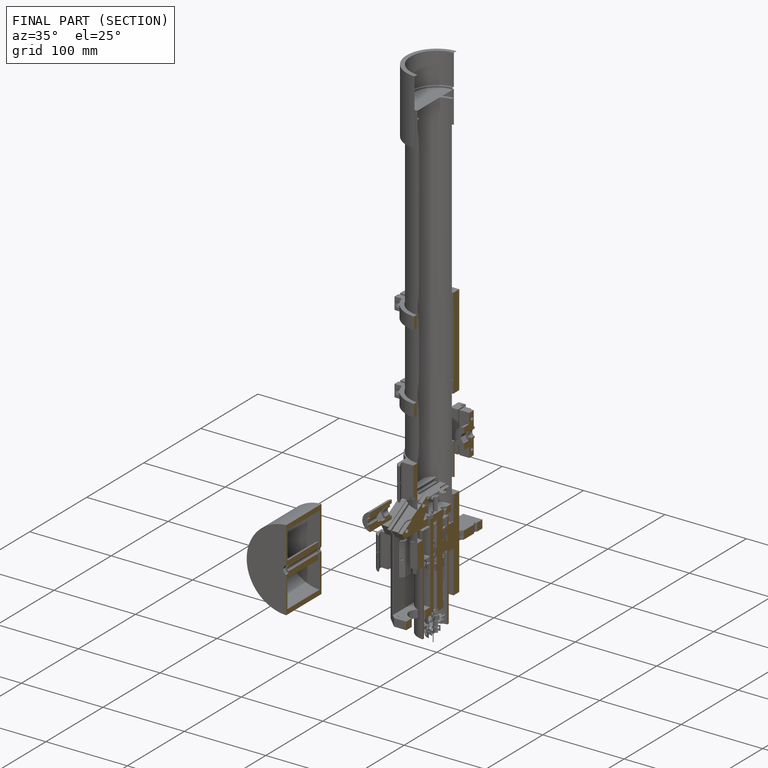
[diagram: finished part — half-section view (interior)]
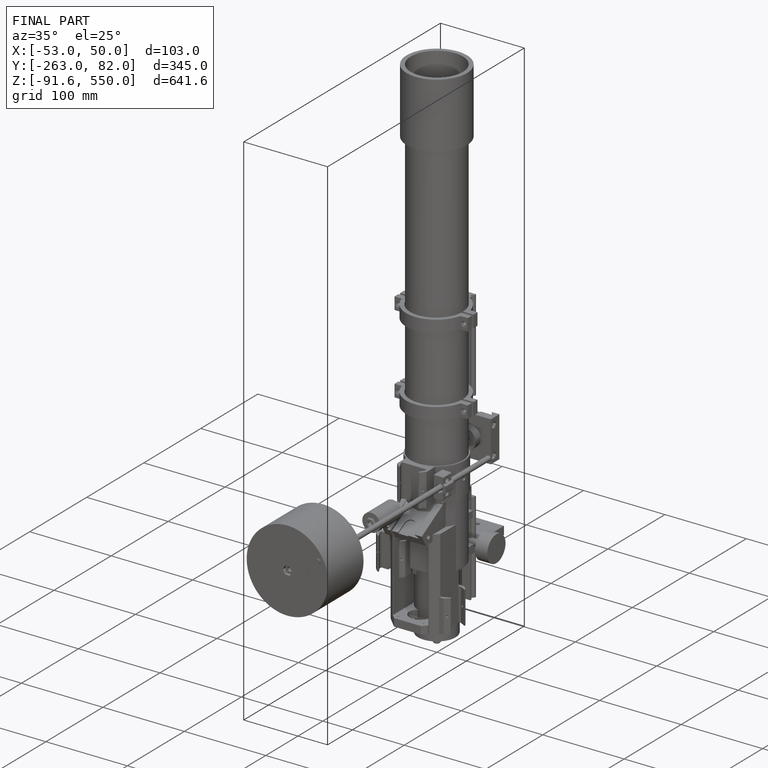
[diagram: finished part — iso view with bounding-box wireframe]
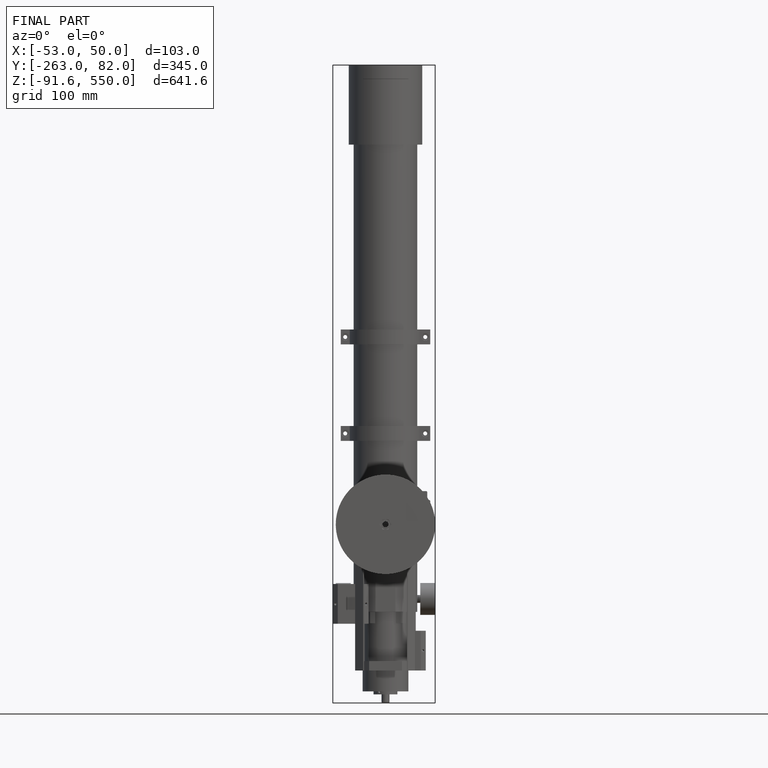
[diagram: finished part — front view with bounding-box wireframe]
